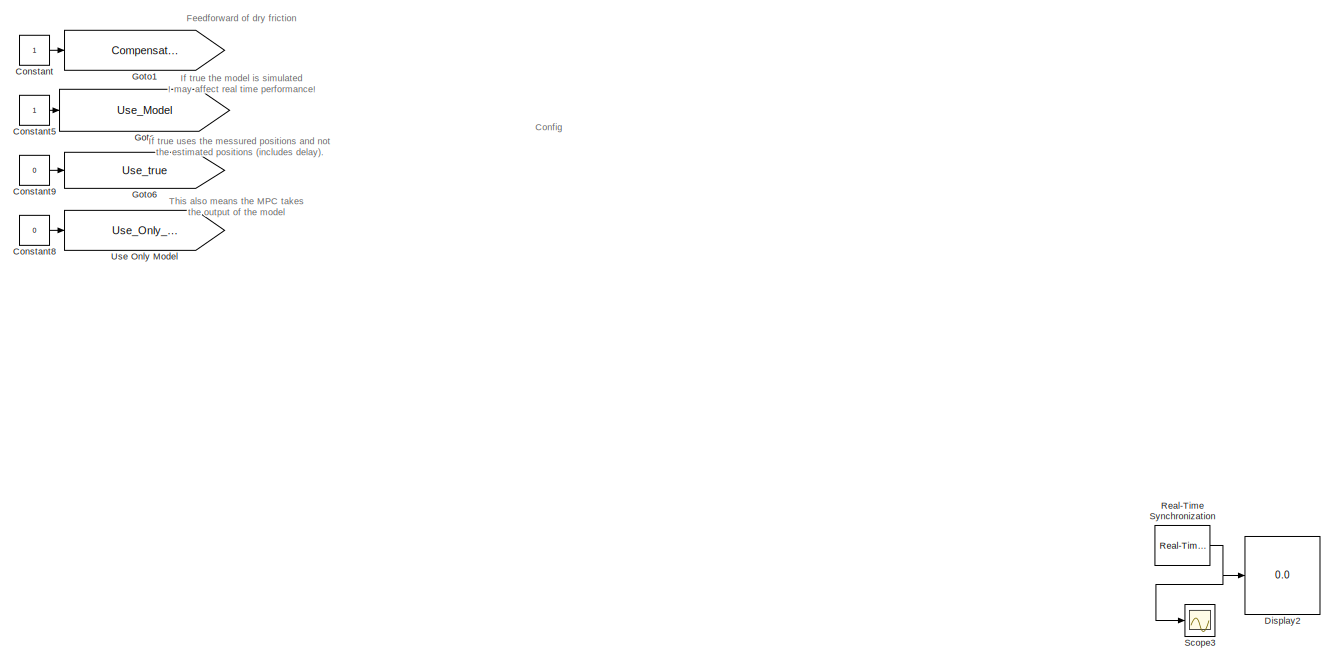
[diagram: root canvas - part 1/5, top center region]
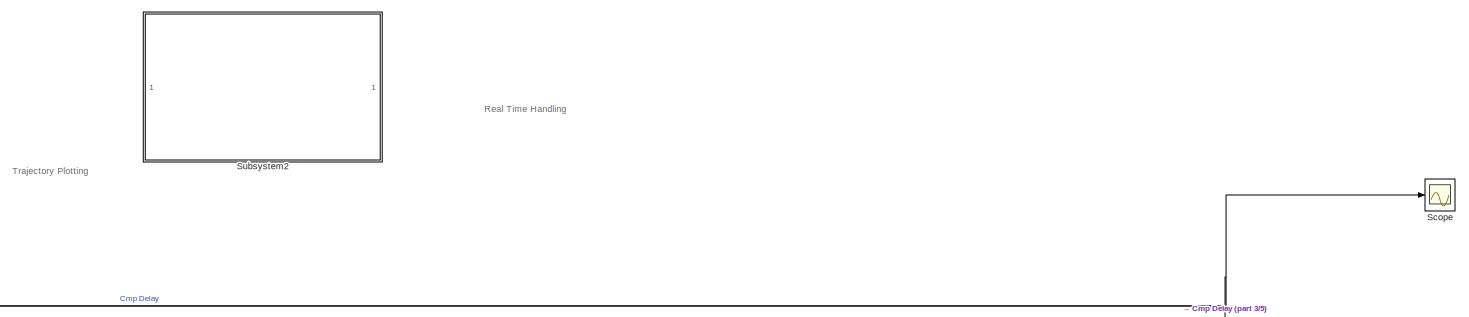
[diagram: root canvas - part 2/5, middle right region]
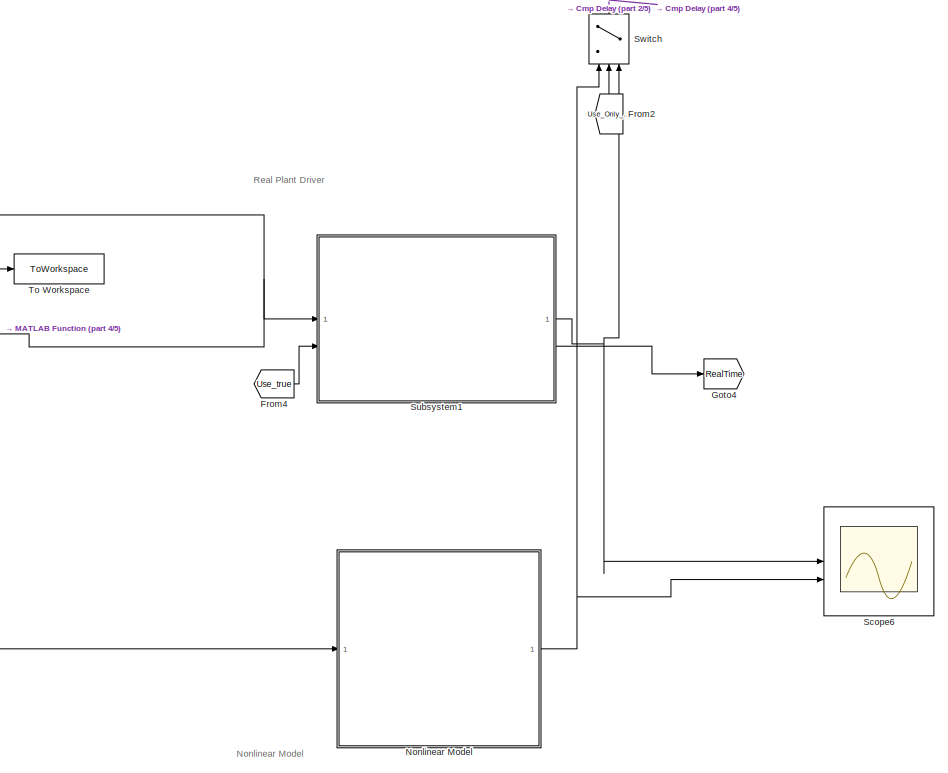
[diagram: root canvas - part 3/5, bottom right region]
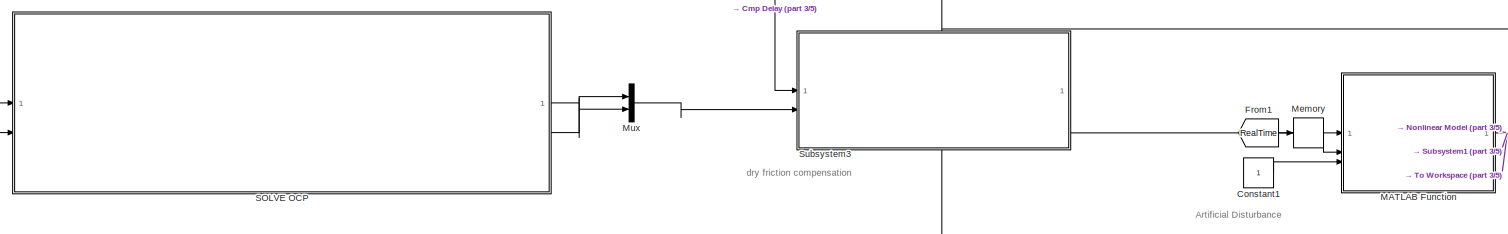
[diagram: root canvas - part 4/5, middle left region]
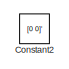
[diagram: root canvas - part 5/5, bottom center region]
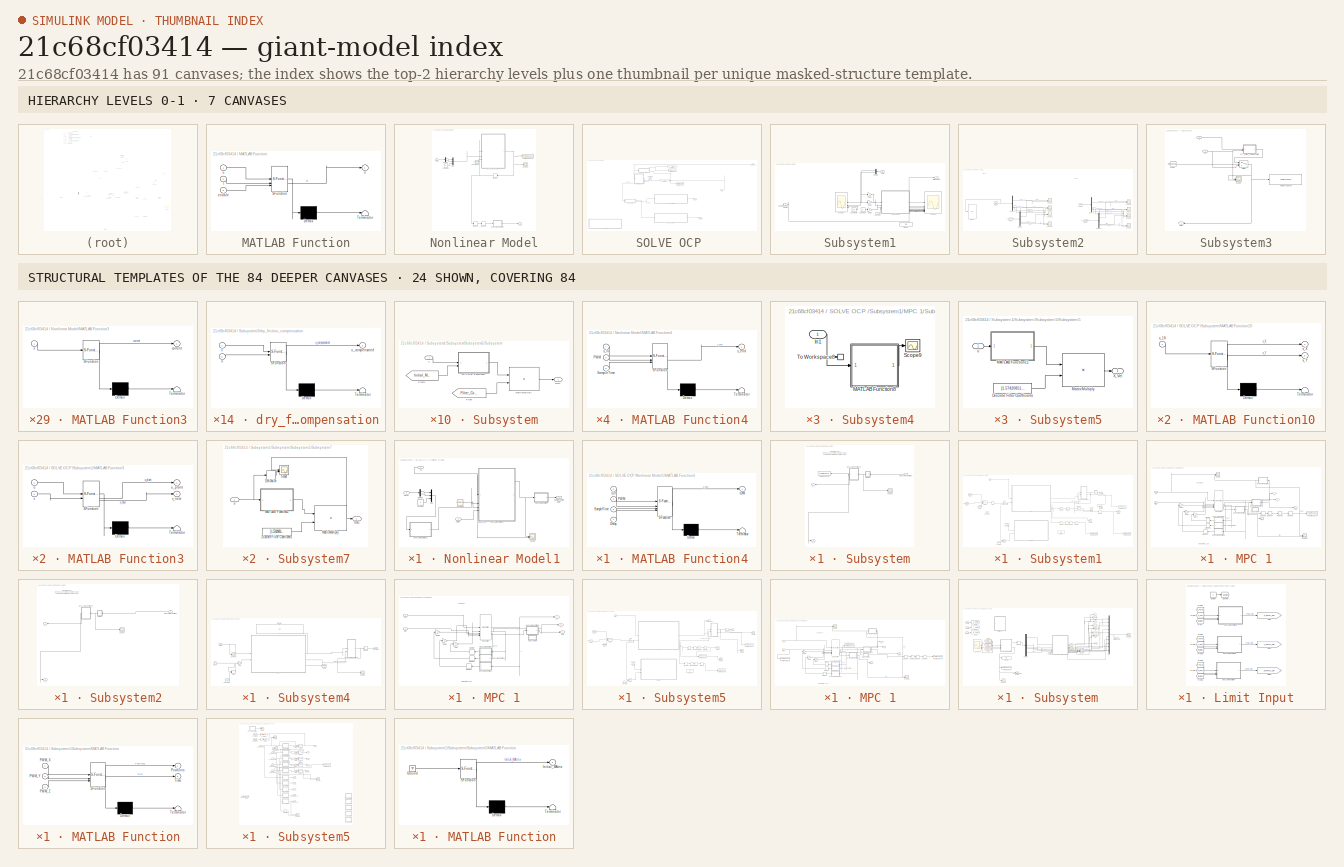
[diagram: thumbnail index - top-2 hierarchy levels (7 canvases) + 24 structural-template representatives of the remaining 84 canvases]
MODEL slx_21c68cf03414
KIND model
CONFIG AbsTol = auto
CONFIG EnableMultiTasking = on
CONFIG FixedStep = SampleTime
CONFIG MaxStep = 0.01
CONFIG MinStep = auto
CONFIG RelTol = 1e-3
CONFIG SampleTimeConstraint = Unconstrained
CONFIG SolverName = ode1
CONFIG StartTime = 0.0
CONFIG StopTime = 100
BLOCK [Constant] Constant
BLOCK [Constant] Constant1
BLOCK [Constant] Constant2
  Value = [0 0]'
BLOCK [Constant] Constant5
BLOCK [Constant] Constant8
  Value = 0
BLOCK [Constant] Constant9
  Value = 0
BLOCK [Display] Display2
  Decimation = 1
BLOCK [From] From1
  GotoTag = RealTime
  TagVisibility = global
BLOCK [From] From2
  GotoTag = Use_Only_Mode
  NameLocation = right
  TagVisibility = global
BLOCK [From] From4
  GotoTag = Use_true
BLOCK [Goto] Goto
  GotoTag = Use_Model
BLOCK [Goto] Goto1
  GotoTag = Compensate_dry_friction
  TagVisibility = global
BLOCK [Goto] Goto4
  GotoTag = RealTime
  TagVisibility = global
BLOCK [Goto] Goto6
  GotoTag = Use_true
BLOCK [SubSystem] MATLAB Function
  ErrorFcn = Stateflow.Translate.translate
  PermitHierarchicalResolution = ExplicitOnly
  SFBlockType = MATLAB Function
  TreatAsAtomicUnit = on
BLOCK [Demux] MATLAB Function/ Demux 
  Outputs = 1
BLOCK [S-Function] MATLAB Function/ SFunction 
  EnableBusSupport = on
  FunctionName = sf_sfun
  PortCounts = [3 2]
  SFcnIsStateOwnerBlock = off
  SFunctionDeploymentMode = off
  Tag = Stateflow S-Function 64
BLOCK [Terminator] MATLAB Function/ Terminator 
BLOCK [Inport] MATLAB Function/enable
  Port = 3
BLOCK [Inport] MATLAB Function/t
  Port = 2
BLOCK [Outport] MATLAB Function/u
BLOCK [Inport] MATLAB Function/u 
BLOCK [Memory] Memory
BLOCK [Mux] Mux
  DisplayOption = bar
  Inputs = 2
BLOCK [SubSystem] Nonlinear Model
  Commented = on
BLOCK [Constant] Nonlinear Model/Constant
  Value = 0
BLOCK [Constant] Nonlinear Model/Constant1
  Value = SampleTime
BLOCK [Demux] Nonlinear Model/Demux
  Outputs = 2
BLOCK [SubSystem] Nonlinear Model/MATLAB Function3
  ErrorFcn = Stateflow.Translate.translate
  PermitHierarchicalResolution = ExplicitOnly
  SFBlockType = MATLAB Function
  TreatAsAtomicUnit = on
BLOCK [Demux] Nonlinear Model/MATLAB Function3/ Demux 
  Outputs = 1
BLOCK [S-Function] Nonlinear Model/MATLAB Function3/ SFunction 
  EnableBusSupport = on
  FunctionName = sf_sfun
  PortCounts = [1 2]
  SFcnIsStateOwnerBlock = off
  SFunctionDeploymentMode = off
  Tag = Stateflow S-Function 28
BLOCK [Terminator] Nonlinear Model/MATLAB Function3/ Terminator 
BLOCK [Outport] Nonlinear Model/MATLAB Function3/current
BLOCK [Inport] Nonlinear Model/MATLAB Function3/x
BLOCK [SubSystem] Nonlinear Model/MATLAB Function4
  ErrorFcn = Stateflow.Translate.translate
  PermitHierarchicalResolution = ExplicitOnly
  SFBlockType = MATLAB Function
  TreatAsAtomicUnit = on
BLOCK [Demux] Nonlinear Model/MATLAB Function4/ Demux 
  Outputs = 1
BLOCK [S-Function] Nonlinear Model/MATLAB Function4/ SFunction 
  EnableBusSupport = on
  FunctionName = sf_sfun
  PortCounts = [3 2]
  SFcnIsStateOwnerBlock = off
  SFunctionDeploymentMode = off
  Tag = Stateflow S-Function 21
BLOCK [Terminator] Nonlinear Model/MATLAB Function4/ Terminator 
BLOCK [Inport] Nonlinear Model/MATLAB Function4/PWM
  Port = 2
BLOCK [Inport] Nonlinear Model/MATLAB Function4/SampleTime
  Port = 3
BLOCK [Outport] Nonlinear Model/MATLAB Function4/x_end
BLOCK [Inport] Nonlinear Model/MATLAB Function4/x_in
BLOCK [Memory] Nonlinear Model/Memory
  InheritSampleTime = on
  InitialCondition = [GetPosition;zeros(5,1)]'
  NameLocation = top
BLOCK [Memory] Nonlinear Model/Memory1
  InheritSampleTime = on
  InitialCondition = [GetPosition;zeros(5,1)]'
BLOCK [Memory] Nonlinear Model/Memory2
  InheritSampleTime = on
  InitialCondition = [GetPosition;zeros(5,1)]'
BLOCK [Mux] Nonlinear Model/Mux
  DisplayOption = bar
  Inputs = 3
BLOCK [Inport] Nonlinear Model/PWM
BLOCK [Scope] Nonlinear Model/Scope2
  Floating = off
  NumInputPorts = 1
  ScopeSpecificationString = Simulink.scopes.TimeScopeBlockCfg('CurrentConfiguration', extmgr.ConfigurationSet(extmgr.Configuration('Core','General UI',true),extmgr.Configuration('Core','Source UI',true),extmgr.Configuration('Sources','WiredSimulink',true,'DataLoggingVariableName','ScopeData2'),extmgr.Configuration('Visuals','Time Domain',true,'SerializedDisplays',{struct('MinYLimReal','-1.6011','MaxYLimReal','1.58476','YLabe...<+1874ch>
BLOCK [ToWorkspace] Nonlinear Model/To Workspace2
  FixptAsFi = on
  MaxDataPoints = inf
  SampleTime = -1
  SaveFormat = Timeseries
  VariableName = Rk4_results
BLOCK [Outport] Nonlinear Model/x0 z-1
BLOCK [Reference] Real-Time Synchronization  REF=sldrtlib/Real-Time
Synchronization
  SourceBlock = sldrtlib/Real-Time\nSynchronization
  SourceType = Simulink Desktop Real-Time Synchronization
BLOCK [SubSystem] SOLVE OCP 
BLOCK [Inport] SOLVE OCP /Cmp Delay
BLOCK [Constant] SOLVE OCP /Constant3
  NameLocation = top
  Value = Delay
BLOCK [Goto] SOLVE OCP /Goto2
  GotoTag = x_X_Measured
  TagVisibility = global
BLOCK [Goto] SOLVE OCP /Goto3
  GotoTag = x_Y_Measured
  NameLocation = top
  TagVisibility = global
BLOCK [SubSystem] SOLVE OCP /Nonlinear Model1
  PortSchema = {"entries":[{"content":{"sides":[{"content":{"connectorIds":["In1"]},"type":"ConnectorPlacement.EquallySpacedRectSide","uuid":"38cfd3d7-56a6-4f45-9bca-759458190eeb"},{"content":{"connectorIds":["In2","In3","Out1"],"side":"RIGHT"},"type":"ConnectorPlacement.EquallySpacedRectSide","uuid":"8f579a40-73f0-4433-ae4d-9a35b6fc4d2d"},{"content":{"side":"TOP"},"type":"ConnectorPlacement.EquallySpacedRectSid...<+234ch>
BLOCK [Outport] SOLVE OCP /Nonlinear Model1/Compensated Delay
BLOCK [Constant] SOLVE OCP /Nonlinear Model1/Constant
  Value = 0
BLOCK [Constant] SOLVE OCP /Nonlinear Model1/Constant1
  Value = SampleTime
BLOCK [Inport] SOLVE OCP /Nonlinear Model1/Delay
  Port = 3
BLOCK [Demux] SOLVE OCP /Nonlinear Model1/Demux
  Outputs = 2
BLOCK [SubSystem] SOLVE OCP /Nonlinear Model1/MATLAB Function
  ErrorFcn = Stateflow.Translate.translate
  PermitHierarchicalResolution = ExplicitOnly
  SFBlockType = MATLAB Function
  TreatAsAtomicUnit = on
BLOCK [Demux] SOLVE OCP /Nonlinear Model1/MATLAB Function/ Demux 
  Outputs = 1
BLOCK [S-Function] SOLVE OCP /Nonlinear Model1/MATLAB Function/ SFunction 
  EnableBusSupport = on
  FunctionName = sf_sfun
  PortCounts = [1 2]
  SFcnIsStateOwnerBlock = off
  SFunctionDeploymentMode = off
  Tag = Stateflow S-Function 29
BLOCK [Terminator] SOLVE OCP /Nonlinear Model1/MATLAB Function/ Terminator 
BLOCK [Inport] SOLVE OCP /Nonlinear Model1/MATLAB Function/x
BLOCK [Outport] SOLVE OCP /Nonlinear Model1/MATLAB Function/x_bound
BLOCK [SubSystem] SOLVE OCP /Nonlinear Model1/MATLAB Function11
  ErrorFcn = Stateflow.Translate.translate
  PermitHierarchicalResolution = ExplicitOnly
  SFBlockType = MATLAB Function
  TreatAsAtomicUnit = on
BLOCK [Demux] SOLVE OCP /Nonlinear Model1/MATLAB Function11/ Demux 
  Outputs = 1
BLOCK [S-Function] SOLVE OCP /Nonlinear Model1/MATLAB Function11/ SFunction 
  EnableBusSupport = on
  FunctionName = sf_sfun
  PortCounts = [1 2]
  SFcnIsStateOwnerBlock = off
  SFunctionDeploymentMode = off
  Tag = Stateflow S-Function 36
BLOCK [Terminator] SOLVE OCP /Nonlinear Model1/MATLAB Function11/ Terminator 
BLOCK [Inport] SOLVE OCP /Nonlinear Model1/MATLAB Function11/u
BLOCK [Outport] SOLVE OCP /Nonlinear Model1/MATLAB Function11/y
BLOCK [SubSystem] SOLVE OCP /Nonlinear Model1/MATLAB Function4
  ErrorFcn = Stateflow.Translate.translate
  PermitHierarchicalResolution = ExplicitOnly
  SFBlockType = MATLAB Function
  TreatAsAtomicUnit = on
BLOCK [Demux] SOLVE OCP /Nonlinear Model1/MATLAB Function4/ Demux 
  Outputs = 1
BLOCK [S-Function] SOLVE OCP /Nonlinear Model1/MATLAB Function4/ SFunction 
  EnableBusSupport = on
  FunctionName = sf_sfun
  PortCounts = [4 2]
  SFcnIsStateOwnerBlock = off
  SFunctionDeploymentMode = off
  Tag = Stateflow S-Function 35
BLOCK [Terminator] SOLVE OCP /Nonlinear Model1/MATLAB Function4/ Terminator 
BLOCK [Inport] SOLVE OCP /Nonlinear Model1/MATLAB Function4/Delay
  Port = 4
BLOCK [Inport] SOLVE OCP /Nonlinear Model1/MATLAB Function4/PWM
  Port = 2
BLOCK [Inport] SOLVE OCP /Nonlinear Model1/MATLAB Function4/SampleTime
  Port = 3
BLOCK [Outport] SOLVE OCP /Nonlinear Model1/MATLAB Function4/x_end
BLOCK [Inport] SOLVE OCP /Nonlinear Model1/MATLAB Function4/x_in
BLOCK [Mux] SOLVE OCP /Nonlinear Model1/Mux
  DisplayOption = bar
  Inputs = 3
BLOCK [Inport] SOLVE OCP /Nonlinear Model1/PWM
  Port = 2
BLOCK [Scope] SOLVE OCP /Nonlinear Model1/Scope
  Floating = off
  NumInputPorts = 2
  ScopeSpecificationString = Simulink.scopes.TimeScopeBlockCfg('CurrentConfiguration', extmgr.ConfigurationSet(extmgr.Configuration('Core','General UI',true),extmgr.Configuration('Core','Source UI',true),extmgr.Configuration('Sources','WiredSimulink',true,'DataLoggingVariableName','ScopeData1'),extmgr.Configuration('Visuals','Time Domain',true,'SerializedDisplays',{struct('MinYLimReal','-1','MaxYLimReal','1','YLabelReal','','...<+1873ch>
BLOCK [Inport] SOLVE OCP /Nonlinear Model1/x0
  NameLocation = top
BLOCK [Inport] SOLVE OCP /PWM
  Port = 2
BLOCK [SubSystem] SOLVE OCP /Subsystem
BLOCK [SubSystem] SOLVE OCP /Subsystem/Delete L
  ErrorFcn = Stateflow.Translate.translate
  NameLocation = top
  PermitHierarchicalResolution = ExplicitOnly
  SFBlockType = MATLAB Function
  TreatAsAtomicUnit = on
BLOCK [Demux] SOLVE OCP /Subsystem/Delete L/ Demux 
  Outputs = 1
BLOCK [S-Function] SOLVE OCP /Subsystem/Delete L/ SFunction 
  EnableBusSupport = on
  FunctionName = sf_sfun
  PortCounts = [1 2]
  SFcnIsStateOwnerBlock = off
  SFunctionDeploymentMode = off
  Tag = Stateflow S-Function 15
BLOCK [Terminator] SOLVE OCP /Subsystem/Delete L/ Terminator 
BLOCK [Inport] SOLVE OCP /Subsystem/Delete L/x10
BLOCK [Outport] SOLVE OCP /Subsystem/Delete L/x_8
BLOCK [SubSystem] SOLVE OCP /Subsystem/MATLAB Function10
  ErrorFcn = Stateflow.Translate.translate
  NameLocation = top
  PermitHierarchicalResolution = ExplicitOnly
  SFBlockType = MATLAB Function
  TreatAsAtomicUnit = on
BLOCK [Demux] SOLVE OCP /Subsystem/MATLAB Function10/ Demux 
  Outputs = 1
BLOCK [S-Function] SOLVE OCP /Subsystem/MATLAB Function10/ SFunction 
  EnableBusSupport = on
  FunctionName = sf_sfun
  PortCounts = [1 3]
  SFcnIsStateOwnerBlock = off
  SFunctionDeploymentMode = off
  Tag = Stateflow S-Function 33
BLOCK [Terminator] SOLVE OCP /Subsystem/MATLAB Function10/ Terminator 
BLOCK [Inport] SOLVE OCP /Subsystem/MATLAB Function10/x_18
BLOCK [Outport] SOLVE OCP /Subsystem/MATLAB Function10/x_X
BLOCK [Outport] SOLVE OCP /Subsystem/MATLAB Function10/x_Y
  Port = 2
BLOCK [Inport] SOLVE OCP /Subsystem/Messured Positions
BLOCK [Scope] SOLVE OCP /Subsystem/Scope
  Commented = on
  Floating = off
  NumInputPorts = 1
  ScopeSpecificationString = Simulink.scopes.TimeScopeBlockCfg('CurrentConfiguration', extmgr.ConfigurationSet(extmgr.Configuration('Core','General UI',true),extmgr.Configuration('Core','Source UI',true),extmgr.Configuration('Sources','WiredSimulink',true,'DataLoggingVariableName','ScopeData7'),extmgr.Configuration('Visuals','Time Domain',true,'SerializedDisplays',{struct('MinYLimReal','58.13832','MaxYLimReal','62.80155','YLa...<+1516ch>
BLOCK [ToWorkspace] SOLVE OCP /Subsystem/To Workspace5
  FixptAsFi = on
  MaxDataPoints = inf
  NameLocation = top
  SampleTime = -1
  SaveFormat = Structure With Time
  VariableName = x0_out
BLOCK [Outport] SOLVE OCP /Subsystem/x_X
BLOCK [Outport] SOLVE OCP /Subsystem/x_Y
  Port = 2
BLOCK [SubSystem] SOLVE OCP /Subsystem1
BLOCK [Clock] SOLVE OCP /Subsystem1/Clock
BLOCK [Constant] SOLVE OCP /Subsystem1/Constant
  Commented = on
  Value = poly_approx_trajectory
BLOCK [Constant] SOLVE OCP /Subsystem1/Constant1
  Commented = on
  Value = length_trajectory_s
BLOCK [Constant] SOLVE OCP /Subsystem1/Constant2
  Value = pi/2
BLOCK [Display] SOLVE OCP /Subsystem1/Display
  Commented = on
  Decimation = 1
BLOCK [From] SOLVE OCP /Subsystem1/From
  GotoTag = Use_Only_Mode
  TagVisibility = global
BLOCK [From] SOLVE OCP /Subsystem1/From1
  GotoTag = RealTime
  TagVisibility = global
BLOCK [Gain] SOLVE OCP /Subsystem1/Gain
BLOCK [Goto] SOLVE OCP /Subsystem1/Goto
  GotoTag = TrajY
  TagVisibility = global
BLOCK [SubSystem] SOLVE OCP /Subsystem1/MATLAB Function3
  ErrorFcn = Stateflow.Translate.translate
  PermitHierarchicalResolution = ExplicitOnly
  SFBlockType = MATLAB Function
  TreatAsAtomicUnit = on
BLOCK [Demux] SOLVE OCP /Subsystem1/MATLAB Function3/ Demux 
  Outputs = 1
BLOCK [S-Function] SOLVE OCP /Subsystem1/MATLAB Function3/ SFunction 
  EnableBusSupport = on
  FunctionName = sf_sfun
  PortCounts = [2 3]
  SFcnIsStateOwnerBlock = off
  SFunctionDeploymentMode = off
  Tag = Stateflow S-Function 55
BLOCK [Terminator] SOLVE OCP /Subsystem1/MATLAB Function3/ Terminator 
BLOCK [Inport] SOLVE OCP /Subsystem1/MATLAB Function3/u
BLOCK [Outport] SOLVE OCP /Subsystem1/MATLAB Function3/u_plant
BLOCK [Inport] SOLVE OCP /Subsystem1/MATLAB Function3/x
  Port = 2
BLOCK [Outport] SOLVE OCP /Subsystem1/MATLAB Function3/x_new
  Port = 2
BLOCK [SubSystem] SOLVE OCP /Subsystem1/MPC 1
BLOCK [Gain] SOLVE OCP /Subsystem1/MPC 1/Gain3
BLOCK [Gain] SOLVE OCP /Subsystem1/MPC 1/Gain4
BLOCK [Gain] SOLVE OCP /Subsystem1/MPC 1/Gain5
BLOCK [SubSystem] SOLVE OCP /Subsystem1/MPC 1/MATLAB Function
  ErrorFcn = Stateflow.Translate.translate
  NameLocation = top
  PermitHierarchicalResolution = ExplicitOnly
  SFBlockType = MATLAB Function
  TreatAsAtomicUnit = on
BLOCK [Demux] SOLVE OCP /Subsystem1/MPC 1/MATLAB Function/ Demux 
  Outputs = 1
BLOCK [S-Function] SOLVE OCP /Subsystem1/MPC 1/MATLAB Function/ SFunction 
  EnableBusSupport = on
  FunctionName = sf_sfun
  PortCounts = [1 2]
  SFcnIsStateOwnerBlock = off
  SFunctionDeploymentMode = off
  Tag = Stateflow S-Function 56
BLOCK [Terminator] SOLVE OCP /Subsystem1/MPC 1/MATLAB Function/ Terminator 
BLOCK [Inport] SOLVE OCP /Subsystem1/MPC 1/MATLAB Function/x
BLOCK [Outport] SOLVE OCP /Subsystem1/MPC 1/MATLAB Function/x_warm
BLOCK [SubSystem] SOLVE OCP /Subsystem1/MPC 1/MATLAB Function1
  ErrorFcn = Stateflow.Translate.translate
  NameLocation = top
  PermitHierarchicalResolution = ExplicitOnly
  SFBlockType = MATLAB Function
  TreatAsAtomicUnit = on
BLOCK [Demux] SOLVE OCP /Subsystem1/MPC 1/MATLAB Function1/ Demux 
  Outputs = 1
BLOCK [S-Function] SOLVE OCP /Subsystem1/MPC 1/MATLAB Function1/ SFunction 
  EnableBusSupport = on
  FunctionName = sf_sfun
  PortCounts = [1 2]
  SFcnIsStateOwnerBlock = off
  SFunctionDeploymentMode = off
  Tag = Stateflow S-Function 57
BLOCK [Terminator] SOLVE OCP /Subsystem1/MPC 1/MATLAB Function1/ Terminator 
BLOCK [Inport] SOLVE OCP /Subsystem1/MPC 1/MATLAB Function1/lam_g
BLOCK [Outport] SOLVE OCP /Subsystem1/MPC 1/MATLAB Function1/lam_g_warm
BLOCK [SubSystem] SOLVE OCP /Subsystem1/MPC 1/MATLAB Function2
  ErrorFcn = Stateflow.Translate.translate
  NameLocation = top
  PermitHierarchicalResolution = ExplicitOnly
  SFBlockType = MATLAB Function
  TreatAsAtomicUnit = on
BLOCK [Demux] SOLVE OCP /Subsystem1/MPC 1/MATLAB Function2/ Demux 
  Outputs = 1
BLOCK [S-Function] SOLVE OCP /Subsystem1/MPC 1/MATLAB Function2/ SFunction 
  EnableBusSupport = on
  FunctionName = sf_sfun
  PortCounts = [1 2]
  SFcnIsStateOwnerBlock = off
  SFunctionDeploymentMode = off
  Tag = Stateflow S-Function 58
BLOCK [Terminator] SOLVE OCP /Subsystem1/MPC 1/MATLAB Function2/ Terminator 
BLOCK [Inport] SOLVE OCP /Subsystem1/MPC 1/MATLAB Function2/u
BLOCK [Outport] SOLVE OCP /Subsystem1/MPC 1/MATLAB Function2/u_warm
BLOCK [SubSystem] SOLVE OCP /Subsystem1/MPC 1/MATLAB Function3
  ErrorFcn = Stateflow.Translate.translate
  PermitHierarchicalResolution = ExplicitOnly
  SFBlockType = MATLAB Function
  TreatAsAtomicUnit = on
BLOCK [Demux] SOLVE OCP /Subsystem1/MPC 1/MATLAB Function3/ Demux 
  Outputs = 1
BLOCK [S-Function] SOLVE OCP /Subsystem1/MPC 1/MATLAB Function3/ SFunction 
  EnableBusSupport = on
  FunctionName = sf_sfun
  PortCounts = [1 2]
  SFcnIsStateOwnerBlock = off
  SFunctionDeploymentMode = off
  Tag = Stateflow S-Function 59
BLOCK [Terminator] SOLVE OCP /Subsystem1/MPC 1/MATLAB Function3/ Terminator 
BLOCK [Outport] SOLVE OCP /Subsystem1/MPC 1/MATLAB Function3/current
BLOCK [Inport] SOLVE OCP /Subsystem1/MPC 1/MATLAB Function3/x
BLOCK [SubSystem] SOLVE OCP /Subsystem1/MPC 1/MATLAB Function4
  ErrorFcn = Stateflow.Translate.translate
  NameLocation = top
  PermitHierarchicalResolution = ExplicitOnly
  SFBlockType = MATLAB Function
  TreatAsAtomicUnit = on
BLOCK [Demux] SOLVE OCP /Subsystem1/MPC 1/MATLAB Function4/ Demux 
  Outputs = 1
BLOCK [S-Function] SOLVE OCP /Subsystem1/MPC 1/MATLAB Function4/ SFunction 
  EnableBusSupport = on
  FunctionName = sf_sfun
  PortCounts = [1 2]
  SFcnIsStateOwnerBlock = off
  SFunctionDeploymentMode = off
  Tag = Stateflow S-Function 60
BLOCK [Terminator] SOLVE OCP /Subsystem1/MPC 1/MATLAB Function4/ Terminator 
BLOCK [Inport] SOLVE OCP /Subsystem1/MPC 1/MATLAB Function4/u
BLOCK [Outport] SOLVE OCP /Subsystem1/MPC 1/MATLAB Function4/y
BLOCK [SubSystem] SOLVE OCP /Subsystem1/MPC 1/MATLAB Function5
  ErrorFcn = Stateflow.Translate.translate
  PermitHierarchicalResolution = ExplicitOnly
  SFBlockType = MATLAB Function
  TreatAsAtomicUnit = on
BLOCK [Demux] SOLVE OCP /Subsystem1/MPC 1/MATLAB Function5/ Demux 
  Outputs = 1
BLOCK [S-Function] SOLVE OCP /Subsystem1/MPC 1/MATLAB Function5/ SFunction 
  EnableBusSupport = on
  FunctionName = sf_sfun
  PortCounts = [1 2]
  SFcnIsStateOwnerBlock = off
  SFunctionDeploymentMode = off
  Tag = Stateflow S-Function 61
BLOCK [Terminator] SOLVE OCP /Subsystem1/MPC 1/MATLAB Function5/ Terminator 
BLOCK [Outport] SOLVE OCP /Subsystem1/MPC 1/MATLAB Function5/current
BLOCK [Inport] SOLVE OCP /Subsystem1/MPC 1/MATLAB Function5/x
BLOCK [Memory] SOLVE OCP /Subsystem1/MPC 1/Memory
  NameLocation = top
BLOCK [Memory] SOLVE OCP /Subsystem1/MPC 1/Memory1
  NameLocation = top
BLOCK [Memory] SOLVE OCP /Subsystem1/MPC 1/Memory2
  NameLocation = top
BLOCK [Memory] SOLVE OCP /Subsystem1/MPC 1/Memory3
  NameLocation = top
BLOCK [Memory] SOLVE OCP /Subsystem1/MPC 1/Memory4
  NameLocation = top
BLOCK [Memory] SOLVE OCP /Subsystem1/MPC 1/Memory5
  NameLocation = top
BLOCK [Memory] SOLVE OCP /Subsystem1/MPC 1/Memory6
  NameLocation = top
BLOCK [Outport] SOLVE OCP /Subsystem1/MPC 1/Out3
  Port = 3
BLOCK [S-Function] SOLVE OCP /Subsystem1/MPC 1/S-Function
  EnableBusSupport = off
  FunctionName = g_casadi_fun
  Parameters = 'g.casadi', 'g'
  SFcnIsStateOwnerBlock = off
  SFunctionDeploymentMode = off
BLOCK [Scope] SOLVE OCP /Subsystem1/MPC 1/Scope
  Floating = off
  NumInputPorts = 2
  ScopeSpecificationString = Simulink.scopes.TimeScopeBlockCfg('CurrentConfiguration', extmgr.ConfigurationSet(extmgr.Configuration('Core','General UI',true),extmgr.Configuration('Core','Source UI',true),extmgr.Configuration('Sources','WiredSimulink',true),extmgr.Configuration('Visuals','Time Domain',true,'SerializedDisplays',{struct('MinYLimReal','-1.67554','MaxYLimReal','1.13062','YLabelReal','','MinYLimMag','0.00000','MaxY...<+1513ch>
BLOCK [Scope] SOLVE OCP /Subsystem1/MPC 1/Scope1
  Floating = off
  NumInputPorts = 2
  ScopeSpecificationString = Simulink.scopes.TimeScopeBlockCfg('CurrentConfiguration', extmgr.ConfigurationSet(extmgr.Configuration('Core','General UI',true),extmgr.Configuration('Core','Source UI',true),extmgr.Configuration('Sources','WiredSimulink',true),extmgr.Configuration('Visuals','Time Domain',true,'SerializedDisplays',{struct('MinYLimReal','-1.0625','MaxYLimReal','1.0625','YLabelReal','','MinYLimMag','0.00000','MaxYLi...<+1370ch>
BLOCK [SubSystem] SOLVE OCP /Subsystem1/MPC 1/Subsystem4
  Commented = on
BLOCK [Inport] SOLVE OCP /Subsystem1/MPC 1/Subsystem4/In1
BLOCK [SubSystem] SOLVE OCP /Subsystem1/MPC 1/Subsystem4/MATLAB Function8
  ErrorFcn = Stateflow.Translate.translate
  PermitHierarchicalResolution = ExplicitOnly
  SFBlockType = MATLAB Function
  TreatAsAtomicUnit = on
BLOCK [Demux] SOLVE OCP /Subsystem1/MPC 1/Subsystem4/MATLAB Function8/ Demux 
  Outputs = 1
BLOCK [S-Function] SOLVE OCP /Subsystem1/MPC 1/Subsystem4/MATLAB Function8/ SFunction 
  EnableBusSupport = on
  FunctionName = sf_sfun
  PortCounts = [1 2]
  SFcnIsStateOwnerBlock = off
  SFunctionDeploymentMode = off
  Tag = Stateflow S-Function 62
BLOCK [Terminator] SOLVE OCP /Subsystem1/MPC 1/Subsystem4/MATLAB Function8/ Terminator 
BLOCK [Outport] SOLVE OCP /Subsystem1/MPC 1/Subsystem4/MATLAB Function8/first_elemt_traj
BLOCK [Inport] SOLVE OCP /Subsystem1/MPC 1/Subsystem4/MATLAB Function8/traj
BLOCK [Scope] SOLVE OCP /Subsystem1/MPC 1/Subsystem4/Scope9
  Floating = off
  NumInputPorts = 1
  ScopeSpecificationString = Simulink.scopes.TimeScopeBlockCfg('CurrentConfiguration', extmgr.ConfigurationSet(extmgr.Configuration('Core','General UI',true),extmgr.Configuration('Core','Source UI',true),extmgr.Configuration('Sources','WiredSimulink',true,'DataLoggingVariableName','ScopeData2'),extmgr.Configuration('Visuals','Time Domain',true,'SerializedDisplays',{struct('MinYLimReal','-0.0625','MaxYLimReal','0.5625','YLabel...<+1420ch>  <repeated x3 — deduplicated; at blocks: Scope9>
BLOCK [ToWorkspace] SOLVE OCP /Subsystem1/MPC 1/Subsystem4/To Workspace8
  FixptAsFi = on
  MaxDataPoints = inf
  SampleTime = -1
  SaveFormat = Structure With Time
  VariableName = PAyload_mpc
BLOCK [ToWorkspace] SOLVE OCP /Subsystem1/MPC 1/To Workspace
  FixptAsFi = on
  MaxDataPoints = inf
  SampleTime = -1
  SaveFormat = Timeseries
  VariableName = Trajectory_Mpc_Y
BLOCK [Outport] SOLVE OCP /Subsystem1/MPC 1/Traj_u
  Port = 4
BLOCK [Inport] SOLVE OCP /Subsystem1/MPC 1/time
  Port = 2
BLOCK [Outport] SOLVE OCP /Subsystem1/MPC 1/u
BLOCK [Outport] SOLVE OCP /Subsystem1/MPC 1/x
  Port = 2
BLOCK [Inport] SOLVE OCP /Subsystem1/MPC 1/x0
BLOCK [Memory] SOLVE OCP /Subsystem1/Memory
BLOCK [Memory] SOLVE OCP /Subsystem1/Memory1
  NameLocation = top
BLOCK [Memory] SOLVE OCP /Subsystem1/Memory2
  NameLocation = top
BLOCK [Memory] SOLVE OCP /Subsystem1/Memory3
  NameLocation = top
BLOCK [Memory] SOLVE OCP /Subsystem1/Memory4
  NameLocation = top
BLOCK [Memory] SOLVE OCP /Subsystem1/Memory5
  NameLocation = top
BLOCK [Memory] SOLVE OCP /Subsystem1/Memory6
  NameLocation = top
BLOCK [Memory] SOLVE OCP /Subsystem1/Memory7
  NameLocation = top
BLOCK [Memory] SOLVE OCP /Subsystem1/Memory8
  NameLocation = top
BLOCK [Math] SOLVE OCP /Subsystem1/Mod
  Commented = on
  Operator = mod
BLOCK [Sum] SOLVE OCP /Subsystem1/Plus
  IconShape = rectangular
BLOCK [Scope] SOLVE OCP /Subsystem1/Scope
  Commented = on
  Floating = off
  NumInputPorts = 1
  ScopeSpecificationString = Simulink.scopes.TimeScopeBlockCfg('CurrentConfiguration', extmgr.ConfigurationSet(extmgr.Configuration('Core','General UI',true),extmgr.Configuration('Core','Source UI',true),extmgr.Configuration('Sources','WiredSimulink',true,'DataLoggingVariableName','ScopeData1'),extmgr.Configuration('Visuals','Time Domain',true,'SerializedDisplays',{struct('MinYLimReal','-1.0625','MaxYLimReal','1.0625','YLabel...<+1423ch>
BLOCK [Scope] SOLVE OCP /Subsystem1/Scope1
  Floating = off
  NumInputPorts = 1
  ScopeSpecificationString = Simulink.scopes.TimeScopeBlockCfg('CurrentConfiguration', extmgr.ConfigurationSet(extmgr.Configuration('Core','General UI',true),extmgr.Configuration('Core','Source UI',true),extmgr.Configuration('Sources','WiredSimulink',true,'DataLoggingVariableName','ScopeData2'),extmgr.Configuration('Visuals','Time Domain',true,'SerializedDisplays',{struct('MinYLimReal','-1.97279','MaxYLimReal','1.81326','YLab...<+1576ch>
BLOCK [Scope] SOLVE OCP /Subsystem1/Scope2
  Floating = off
  NumInputPorts = 1
  ScopeSpecificationString = Simulink.scopes.TimeScopeBlockCfg('CurrentConfiguration', extmgr.ConfigurationSet(extmgr.Configuration('Core','General UI',true),extmgr.Configuration('Core','Source UI',true),extmgr.Configuration('Sources','WiredSimulink',true,'DataLoggingVariableName','ScopeData1'),extmgr.Configuration('Visuals','Time Domain',true,'SerializedDisplays',{struct('MinYLimReal','-0.31399','MaxYLimReal','0.53488','YLab...<+1542ch>
BLOCK [Inport] SOLVE OCP /Subsystem1/State
BLOCK [Switch] SOLVE OCP /Subsystem1/Switch
  Criteria = u2 > Threshold
  InputSameDT = off
  SaturateOnIntegerOverflow = off
BLOCK [ToWorkspace] SOLVE OCP /Subsystem1/To Workspace1
  FixptAsFi = on
  MaxDataPoints = inf
  SampleTime = -1
  SaveFormat = Timeseries
  VariableName = Trajectory_y
BLOCK [ToWorkspace] SOLVE OCP /Subsystem1/To Workspace2
  FixptAsFi = on
  MaxDataPoints = inf
  SampleTime = -1
  SaveFormat = Timeseries
  VariableName = u2
BLOCK [ToWorkspace] SOLVE OCP /Subsystem1/To Workspace3
  FixptAsFi = on
  MaxDataPoints = inf
  SampleTime = -1
  SaveFormat = Timeseries
  VariableName = u2_ref
BLOCK [SubSystem] SOLVE OCP /Subsystem1/Trajectroy
  Commented = on
  ErrorFcn = Stateflow.Translate.translate
  PermitHierarchicalResolution = ExplicitOnly
  SFBlockType = MATLAB Function
  TreatAsAtomicUnit = on
BLOCK [Demux] SOLVE OCP /Subsystem1/Trajectroy/ Demux 
  Outputs = 1
BLOCK [S-Function] SOLVE OCP /Subsystem1/Trajectroy/ SFunction 
  EnableBusSupport = on
  FunctionName = sf_sfun
  PortCounts = [2 2]
  SFcnIsStateOwnerBlock = off
  SFunctionDeploymentMode = off
  Tag = Stateflow S-Function 63
BLOCK [Terminator] SOLVE OCP /Subsystem1/Trajectroy/ Terminator 
BLOCK [Inport] SOLVE OCP /Subsystem1/Trajectroy/coeffs
BLOCK [Outport] SOLVE OCP /Subsystem1/Trajectroy/evaluated_polynomials_X
BLOCK [Inport] SOLVE OCP /Subsystem1/Trajectroy/t
  Port = 2
BLOCK [Outport] SOLVE OCP /Subsystem1/u_plant
BLOCK [SubSystem] SOLVE OCP /Subsystem2
BLOCK [SubSystem] SOLVE OCP /Subsystem2/Delete L
  ErrorFcn = Stateflow.Translate.translate
  NameLocation = top
  PermitHierarchicalResolution = ExplicitOnly
  SFBlockType = MATLAB Function
  TreatAsAtomicUnit = on
BLOCK [Demux] SOLVE OCP /Subsystem2/Delete L/ Demux 
  Outputs = 1
BLOCK [S-Function] SOLVE OCP /Subsystem2/Delete L/ SFunction 
  EnableBusSupport = on
  FunctionName = sf_sfun
  PortCounts = [1 2]
  SFcnIsStateOwnerBlock = off
  SFunctionDeploymentMode = off
  Tag = Stateflow S-Function 65
BLOCK [Terminator] SOLVE OCP /Subsystem2/Delete L/ Terminator 
BLOCK [Inport] SOLVE OCP /Subsystem2/Delete L/x10
BLOCK [Outport] SOLVE OCP /Subsystem2/Delete L/x_8
BLOCK [SubSystem] SOLVE OCP /Subsystem2/MATLAB Function10
  ErrorFcn = Stateflow.Translate.translate
  NameLocation = top
  PermitHierarchicalResolution = ExplicitOnly
  SFBlockType = MATLAB Function
  TreatAsAtomicUnit = on
BLOCK [Demux] SOLVE OCP /Subsystem2/MATLAB Function10/ Demux 
  Outputs = 1
BLOCK [S-Function] SOLVE OCP /Subsystem2/MATLAB Function10/ SFunction 
  EnableBusSupport = on
  FunctionName = sf_sfun
  PortCounts = [1 3]
  SFcnIsStateOwnerBlock = off
  SFunctionDeploymentMode = off
  Tag = Stateflow S-Function 66
BLOCK [Terminator] SOLVE OCP /Subsystem2/MATLAB Function10/ Terminator 
BLOCK [Inport] SOLVE OCP /Subsystem2/MATLAB Function10/x_18
BLOCK [Outport] SOLVE OCP /Subsystem2/MATLAB Function10/x_X
BLOCK [Outport] SOLVE OCP /Subsystem2/MATLAB Function10/x_Y
  Port = 2
BLOCK [Inport] SOLVE OCP /Subsystem2/Messured Positions
BLOCK [Scope] SOLVE OCP /Subsystem2/Scope
  Commented = on
  Floating = off
  NumInputPorts = 1
  ScopeSpecificationString = Simulink.scopes.TimeScopeBlockCfg('CurrentConfiguration', extmgr.ConfigurationSet(extmgr.Configuration('Core','General UI',true),extmgr.Configuration('Core','Source UI',true),extmgr.Configuration('Sources','WiredSimulink',true,'DataLoggingVariableName','ScopeData7'),extmgr.Configuration('Visuals','Time Domain',true,'SerializedDisplays',{struct('MinYLimReal','58.13832','MaxYLimReal','62.80155','YLa...<+1516ch>
BLOCK [Outport] SOLVE OCP /Subsystem2/x_X
BLOCK [Outport] SOLVE OCP /Subsystem2/x_Y
  Port = 2
BLOCK [SubSystem] SOLVE OCP /Subsystem4
  Commented = on
BLOCK [Clock] SOLVE OCP /Subsystem4/Clock
BLOCK [Constant] SOLVE OCP /Subsystem4/Constant
  Value = 3*pi/2
BLOCK [Display] SOLVE OCP /Subsystem4/Display
  Decimation = 1
  NameLocation = left
BLOCK [Gain] SOLVE OCP /Subsystem4/Gain
BLOCK [Goto] SOLVE OCP /Subsystem4/Goto
  GotoTag = TrajY
  TagVisibility = global
BLOCK [SubSystem] SOLVE OCP /Subsystem4/MATLAB Function3
  ErrorFcn = Stateflow.Translate.translate
  PermitHierarchicalResolution = ExplicitOnly
  SFBlockType = MATLAB Function
  TreatAsAtomicUnit = on
BLOCK [Demux] SOLVE OCP /Subsystem4/MATLAB Function3/ Demux 
  Outputs = 1
BLOCK [S-Function] SOLVE OCP /Subsystem4/MATLAB Function3/ SFunction 
  EnableBusSupport = on
  FunctionName = sf_sfun
  PortCounts = [2 2]
  SFcnIsStateOwnerBlock = off
  SFunctionDeploymentMode = off
  Tag = Stateflow S-Function 30
BLOCK [Terminator] SOLVE OCP /Subsystem4/MATLAB Function3/ Terminator 
BLOCK [Inport] SOLVE OCP /Subsystem4/MATLAB Function3/u
BLOCK [Outport] SOLVE OCP /Subsystem4/MATLAB Function3/u_plant
BLOCK [Inport] SOLVE OCP /Subsystem4/MATLAB Function3/x
  Port = 2
BLOCK [SubSystem] SOLVE OCP /Subsystem4/MPC 1
BLOCK [Gain] SOLVE OCP /Subsystem4/MPC 1/Gain3
BLOCK [Gain] SOLVE OCP /Subsystem4/MPC 1/Gain4
BLOCK [Gain] SOLVE OCP /Subsystem4/MPC 1/Gain5
BLOCK [SubSystem] SOLVE OCP /Subsystem4/MPC 1/MATLAB Function
  ErrorFcn = Stateflow.Translate.translate
  NameLocation = top
  PermitHierarchicalResolution = ExplicitOnly
  SFBlockType = MATLAB Function
  TreatAsAtomicUnit = on
BLOCK [Demux] SOLVE OCP /Subsystem4/MPC 1/MATLAB Function/ Demux 
  Outputs = 1
BLOCK [S-Function] SOLVE OCP /Subsystem4/MPC 1/MATLAB Function/ SFunction 
  EnableBusSupport = on
  FunctionName = sf_sfun
  PortCounts = [1 2]
  SFcnIsStateOwnerBlock = off
  SFunctionDeploymentMode = off
  Tag = Stateflow S-Function 32
BLOCK [Terminator] SOLVE OCP /Subsystem4/MPC 1/MATLAB Function/ Terminator 
BLOCK [Inport] SOLVE OCP /Subsystem4/MPC 1/MATLAB Function/x
BLOCK [Outport] SOLVE OCP /Subsystem4/MPC 1/MATLAB Function/x_warm
BLOCK [SubSystem] SOLVE OCP /Subsystem4/MPC 1/MATLAB Function1
  ErrorFcn = Stateflow.Translate.translate
  NameLocation = top
  PermitHierarchicalResolution = ExplicitOnly
  SFBlockType = MATLAB Function
  TreatAsAtomicUnit = on
BLOCK [Demux] SOLVE OCP /Subsystem4/MPC 1/MATLAB Function1/ Demux 
  Outputs = 1
BLOCK [S-Function] SOLVE OCP /Subsystem4/MPC 1/MATLAB Function1/ SFunction 
  EnableBusSupport = on
  FunctionName = sf_sfun
  PortCounts = [1 2]
  SFcnIsStateOwnerBlock = off
  SFunctionDeploymentMode = off
  Tag = Stateflow S-Function 34
BLOCK [Terminator] SOLVE OCP /Subsystem4/MPC 1/MATLAB Function1/ Terminator 
BLOCK [Inport] SOLVE OCP /Subsystem4/MPC 1/MATLAB Function1/lam_g
BLOCK [Outport] SOLVE OCP /Subsystem4/MPC 1/MATLAB Function1/lam_g_warm
BLOCK [SubSystem] SOLVE OCP /Subsystem4/MPC 1/MATLAB Function2
  ErrorFcn = Stateflow.Translate.translate
  NameLocation = top
  PermitHierarchicalResolution = ExplicitOnly
  SFBlockType = MATLAB Function
  TreatAsAtomicUnit = on
BLOCK [Demux] SOLVE OCP /Subsystem4/MPC 1/MATLAB Function2/ Demux 
  Outputs = 1
BLOCK [S-Function] SOLVE OCP /Subsystem4/MPC 1/MATLAB Function2/ SFunction 
  EnableBusSupport = on
  FunctionName = sf_sfun
  PortCounts = [1 2]
  SFcnIsStateOwnerBlock = off
  SFunctionDeploymentMode = off
  Tag = Stateflow S-Function 38
BLOCK [Terminator] SOLVE OCP /Subsystem4/MPC 1/MATLAB Function2/ Terminator 
BLOCK [Inport] SOLVE OCP /Subsystem4/MPC 1/MATLAB Function2/u
BLOCK [Outport] SOLVE OCP /Subsystem4/MPC 1/MATLAB Function2/u_warm
BLOCK [SubSystem] SOLVE OCP /Subsystem4/MPC 1/MATLAB Function3
  ErrorFcn = Stateflow.Translate.translate
  PermitHierarchicalResolution = ExplicitOnly
  SFBlockType = MATLAB Function
  TreatAsAtomicUnit = on
BLOCK [Demux] SOLVE OCP /Subsystem4/MPC 1/MATLAB Function3/ Demux 
  Outputs = 1
BLOCK [S-Function] SOLVE OCP /Subsystem4/MPC 1/MATLAB Function3/ SFunction 
  EnableBusSupport = on
  FunctionName = sf_sfun
  PortCounts = [1 2]
  SFcnIsStateOwnerBlock = off
  SFunctionDeploymentMode = off
  Tag = Stateflow S-Function 39
BLOCK [Terminator] SOLVE OCP /Subsystem4/MPC 1/MATLAB Function3/ Terminator 
BLOCK [Outport] SOLVE OCP /Subsystem4/MPC 1/MATLAB Function3/current
BLOCK [Inport] SOLVE OCP /Subsystem4/MPC 1/MATLAB Function3/x
BLOCK [Memory] SOLVE OCP /Subsystem4/MPC 1/Memory
  NameLocation = top
BLOCK [Memory] SOLVE OCP /Subsystem4/MPC 1/Memory1
  NameLocation = top
BLOCK [Memory] SOLVE OCP /Subsystem4/MPC 1/Memory2
  NameLocation = top
BLOCK [Outport] SOLVE OCP /Subsystem4/MPC 1/Out3
  Port = 3
BLOCK [S-Function] SOLVE OCP /Subsystem4/MPC 1/S-Function
  EnableBusSupport = off
  FunctionName = g_casadi_fun
  Parameters = 'g.casadi', 'g'
  SFcnIsStateOwnerBlock = off
  SFunctionDeploymentMode = off
BLOCK [SubSystem] SOLVE OCP /Subsystem4/MPC 1/Subsystem4
  Commented = on
BLOCK [Inport] SOLVE OCP /Subsystem4/MPC 1/Subsystem4/In1
BLOCK [SubSystem] SOLVE OCP /Subsystem4/MPC 1/Subsystem4/MATLAB Function8
  ErrorFcn = Stateflow.Translate.translate
  PermitHierarchicalResolution = ExplicitOnly
  SFBlockType = MATLAB Function
  TreatAsAtomicUnit = on
BLOCK [Demux] SOLVE OCP /Subsystem4/MPC 1/Subsystem4/MATLAB Function8/ Demux 
  Outputs = 1
BLOCK [S-Function] SOLVE OCP /Subsystem4/MPC 1/Subsystem4/MATLAB Function8/ SFunction 
  EnableBusSupport = on
  FunctionName = sf_sfun
  PortCounts = [1 2]
  SFcnIsStateOwnerBlock = off
  SFunctionDeploymentMode = off
  Tag = Stateflow S-Function 40
BLOCK [Terminator] SOLVE OCP /Subsystem4/MPC 1/Subsystem4/MATLAB Function8/ Terminator 
BLOCK [Outport] SOLVE OCP /Subsystem4/MPC 1/Subsystem4/MATLAB Function8/first_elemt_traj
BLOCK [Inport] SOLVE OCP /Subsystem4/MPC 1/Subsystem4/MATLAB Function8/traj
BLOCK [Scope] SOLVE OCP /Subsystem4/MPC 1/Subsystem4/Scope9
  Floating = off
  NumInputPorts = 1
BLOCK [ToWorkspace] SOLVE OCP /Subsystem4/MPC 1/Subsystem4/To Workspace8
  FixptAsFi = on
  MaxDataPoints = inf
  SampleTime = -1
  SaveFormat = Structure With Time
  VariableName = PAyload_mpc
BLOCK [Inport] SOLVE OCP /Subsystem4/MPC 1/time
  Port = 2
BLOCK [Outport] SOLVE OCP /Subsystem4/MPC 1/u
BLOCK [Outport] SOLVE OCP /Subsystem4/MPC 1/x
  Port = 2
BLOCK [Inport] SOLVE OCP /Subsystem4/MPC 1/x0
BLOCK [Memory] SOLVE OCP /Subsystem4/Memory
BLOCK [Sum] SOLVE OCP /Subsystem4/Plus
  IconShape = rectangular
BLOCK [Scope] SOLVE OCP /Subsystem4/Scope
  Floating = off
  NumInputPorts = 1
  ScopeSpecificationString = Simulink.scopes.TimeScopeBlockCfg('CurrentConfiguration', extmgr.ConfigurationSet(extmgr.Configuration('Core','General UI',true),extmgr.Configuration('Core','Source UI',true),extmgr.Configuration('Sources','WiredSimulink',true,'DataLoggingVariableName','ScopeData1'),extmgr.Configuration('Visuals','Time Domain',true,'SerializedDisplays',{struct('MinYLimReal','-0.57081','MaxYLimReal','0.61202','YLab...<+1429ch>
BLOCK [Scope] SOLVE OCP /Subsystem4/Scope1
  Floating = off
  NumInputPorts = 1
  ScopeSpecificationString = Simulink.scopes.TimeScopeBlockCfg('CurrentConfiguration', extmgr.ConfigurationSet(extmgr.Configuration('Core','General UI',true),extmgr.Configuration('Core','Source UI',true),extmgr.Configuration('Sources','WiredSimulink',true,'DataLoggingVariableName','ScopeData6'),extmgr.Configuration('Visuals','Time Domain',true,'SerializedDisplays',{struct('MinYLimReal','-0.01522','MaxYLimReal','0.45612','YLab...<+1562ch>
BLOCK [Inport] SOLVE OCP /Subsystem4/State
BLOCK [Outport] SOLVE OCP /Subsystem4/u_plant
BLOCK [SubSystem] SOLVE OCP /Subsystem5
BLOCK [Clock] SOLVE OCP /Subsystem5/Clock
BLOCK [Constant] SOLVE OCP /Subsystem5/Constant
  Commented = on
  Value = poly_approx_trajectory
BLOCK [Constant] SOLVE OCP /Subsystem5/Constant1
  Commented = on
  Value = length_trajectory_s
BLOCK [Display] SOLVE OCP /Subsystem5/Display
  Commented = on
  Decimation = 1
BLOCK [From] SOLVE OCP /Subsystem5/From
  GotoTag = Use_Only_Mode
  TagVisibility = global
BLOCK [From] SOLVE OCP /Subsystem5/From1
  GotoTag = RealTime
  TagVisibility = global
BLOCK [Gain] SOLVE OCP /Subsystem5/Gain
BLOCK [Goto] SOLVE OCP /Subsystem5/Goto
  GotoTag = TrajX
  TagVisibility = global
BLOCK [SubSystem] SOLVE OCP /Subsystem5/MATLAB Function3
  ErrorFcn = Stateflow.Translate.translate
  PermitHierarchicalResolution = ExplicitOnly
  SFBlockType = MATLAB Function
  TreatAsAtomicUnit = on
BLOCK [Demux] SOLVE OCP /Subsystem5/MATLAB Function3/ Demux 
  Outputs = 1
BLOCK [S-Function] SOLVE OCP /Subsystem5/MATLAB Function3/ SFunction 
  EnableBusSupport = on
  FunctionName = sf_sfun
  PortCounts = [2 3]
  SFcnIsStateOwnerBlock = off
  SFunctionDeploymentMode = off
  Tag = Stateflow S-Function 20
BLOCK [Terminator] SOLVE OCP /Subsystem5/MATLAB Function3/ Terminator 
BLOCK [Inport] SOLVE OCP /Subsystem5/MATLAB Function3/u
BLOCK [Outport] SOLVE OCP /Subsystem5/MATLAB Function3/u_plant
BLOCK [Inport] SOLVE OCP /Subsystem5/MATLAB Function3/x
  Port = 2
BLOCK [Outport] SOLVE OCP /Subsystem5/MATLAB Function3/x_new
  Port = 2
BLOCK [SubSystem] SOLVE OCP /Subsystem5/MPC 1
BLOCK [Gain] SOLVE OCP /Subsystem5/MPC 1/Gain3
BLOCK [Gain] SOLVE OCP /Subsystem5/MPC 1/Gain4
BLOCK [Gain] SOLVE OCP /Subsystem5/MPC 1/Gain5
BLOCK [SubSystem] SOLVE OCP /Subsystem5/MPC 1/MATLAB Function
  ErrorFcn = Stateflow.Translate.translate
  NameLocation = top
  PermitHierarchicalResolution = ExplicitOnly
  SFBlockType = MATLAB Function
  TreatAsAtomicUnit = on
BLOCK [Demux] SOLVE OCP /Subsystem5/MPC 1/MATLAB Function/ Demux 
  Outputs = 1
BLOCK [S-Function] SOLVE OCP /Subsystem5/MPC 1/MATLAB Function/ SFunction 
  EnableBusSupport = on
  FunctionName = sf_sfun
  PortCounts = [1 2]
  SFcnIsStateOwnerBlock = off
  SFunctionDeploymentMode = off
  Tag = Stateflow S-Function 16
BLOCK [Terminator] SOLVE OCP /Subsystem5/MPC 1/MATLAB Function/ Terminator 
BLOCK [Inport] SOLVE OCP /Subsystem5/MPC 1/MATLAB Function/x
BLOCK [Outport] SOLVE OCP /Subsystem5/MPC 1/MATLAB Function/x_warm
BLOCK [SubSystem] SOLVE OCP /Subsystem5/MPC 1/MATLAB Function1
  ErrorFcn = Stateflow.Translate.translate
  NameLocation = top
  PermitHierarchicalResolution = ExplicitOnly
  SFBlockType = MATLAB Function
  TreatAsAtomicUnit = on
BLOCK [Demux] SOLVE OCP /Subsystem5/MPC 1/MATLAB Function1/ Demux 
  Outputs = 1
BLOCK [S-Function] SOLVE OCP /Subsystem5/MPC 1/MATLAB Function1/ SFunction 
  EnableBusSupport = on
  FunctionName = sf_sfun
  PortCounts = [1 2]
  SFcnIsStateOwnerBlock = off
  SFunctionDeploymentMode = off
  Tag = Stateflow S-Function 18
BLOCK [Terminator] SOLVE OCP /Subsystem5/MPC 1/MATLAB Function1/ Terminator 
BLOCK [Inport] SOLVE OCP /Subsystem5/MPC 1/MATLAB Function1/lam_g
BLOCK [Outport] SOLVE OCP /Subsystem5/MPC 1/MATLAB Function1/lam_g_warm
BLOCK [SubSystem] SOLVE OCP /Subsystem5/MPC 1/MATLAB Function2
  ErrorFcn = Stateflow.Translate.translate
  NameLocation = top
  PermitHierarchicalResolution = ExplicitOnly
  SFBlockType = MATLAB Function
  TreatAsAtomicUnit = on
BLOCK [Demux] SOLVE OCP /Subsystem5/MPC 1/MATLAB Function2/ Demux 
  Outputs = 1
BLOCK [S-Function] SOLVE OCP /Subsystem5/MPC 1/MATLAB Function2/ SFunction 
  EnableBusSupport = on
  FunctionName = sf_sfun
  PortCounts = [1 2]
  SFcnIsStateOwnerBlock = off
  SFunctionDeploymentMode = off
  Tag = Stateflow S-Function 19
BLOCK [Terminator] SOLVE OCP /Subsystem5/MPC 1/MATLAB Function2/ Terminator 
BLOCK [Inport] SOLVE OCP /Subsystem5/MPC 1/MATLAB Function2/u
BLOCK [Outport] SOLVE OCP /Subsystem5/MPC 1/MATLAB Function2/u_warm
BLOCK [SubSystem] SOLVE OCP /Subsystem5/MPC 1/MATLAB Function3
  ErrorFcn = Stateflow.Translate.translate
  PermitHierarchicalResolution = ExplicitOnly
  SFBlockType = MATLAB Function
  TreatAsAtomicUnit = on
BLOCK [Demux] SOLVE OCP /Subsystem5/MPC 1/MATLAB Function3/ Demux 
  Outputs = 1
BLOCK [S-Function] SOLVE OCP /Subsystem5/MPC 1/MATLAB Function3/ SFunction 
  EnableBusSupport = on
  FunctionName = sf_sfun
  PortCounts = [1 2]
  SFcnIsStateOwnerBlock = off
  SFunctionDeploymentMode = off
  Tag = Stateflow S-Function 37
BLOCK [Terminator] SOLVE OCP /Subsystem5/MPC 1/MATLAB Function3/ Terminator 
BLOCK [Outport] SOLVE OCP /Subsystem5/MPC 1/MATLAB Function3/current
BLOCK [Inport] SOLVE OCP /Subsystem5/MPC 1/MATLAB Function3/x
BLOCK [SubSystem] SOLVE OCP /Subsystem5/MPC 1/MATLAB Function4
  ErrorFcn = Stateflow.Translate.translate
  NameLocation = top
  PermitHierarchicalResolution = ExplicitOnly
  SFBlockType = MATLAB Function
  TreatAsAtomicUnit = on
BLOCK [Demux] SOLVE OCP /Subsystem5/MPC 1/MATLAB Function4/ Demux 
  Outputs = 1
BLOCK [S-Function] SOLVE OCP /Subsystem5/MPC 1/MATLAB Function4/ SFunction 
  EnableBusSupport = on
  FunctionName = sf_sfun
  PortCounts = [1 2]
  SFcnIsStateOwnerBlock = off
  SFunctionDeploymentMode = off
  Tag = Stateflow S-Function 52
BLOCK [Terminator] SOLVE OCP /Subsystem5/MPC 1/MATLAB Function4/ Terminator 
BLOCK [Inport] SOLVE OCP /Subsystem5/MPC 1/MATLAB Function4/u
BLOCK [Outport] SOLVE OCP /Subsystem5/MPC 1/MATLAB Function4/y
BLOCK [SubSystem] SOLVE OCP /Subsystem5/MPC 1/MATLAB Function5
  ErrorFcn = Stateflow.Translate.translate
  PermitHierarchicalResolution = ExplicitOnly
  SFBlockType = MATLAB Function
  TreatAsAtomicUnit = on
BLOCK [Demux] SOLVE OCP /Subsystem5/MPC 1/MATLAB Function5/ Demux 
  Outputs = 1
BLOCK [S-Function] SOLVE OCP /Subsystem5/MPC 1/MATLAB Function5/ SFunction 
  EnableBusSupport = on
  FunctionName = sf_sfun
  PortCounts = [1 2]
  SFcnIsStateOwnerBlock = off
  SFunctionDeploymentMode = off
  Tag = Stateflow S-Function 53
BLOCK [Terminator] SOLVE OCP /Subsystem5/MPC 1/MATLAB Function5/ Terminator 
BLOCK [Outport] SOLVE OCP /Subsystem5/MPC 1/MATLAB Function5/current
BLOCK [Inport] SOLVE OCP /Subsystem5/MPC 1/MATLAB Function5/x
BLOCK [Memory] SOLVE OCP /Subsystem5/MPC 1/Memory
  NameLocation = top
BLOCK [Memory] SOLVE OCP /Subsystem5/MPC 1/Memory1
  NameLocation = top
BLOCK [Memory] SOLVE OCP /Subsystem5/MPC 1/Memory2
  NameLocation = top
BLOCK [Memory] SOLVE OCP /Subsystem5/MPC 1/Memory3
  NameLocation = top
BLOCK [Memory] SOLVE OCP /Subsystem5/MPC 1/Memory4
  NameLocation = top
BLOCK [Memory] SOLVE OCP /Subsystem5/MPC 1/Memory5
  NameLocation = top
BLOCK [Memory] SOLVE OCP /Subsystem5/MPC 1/Memory6
  NameLocation = top
BLOCK [Outport] SOLVE OCP /Subsystem5/MPC 1/Out3
  Port = 3
BLOCK [S-Function] SOLVE OCP /Subsystem5/MPC 1/S-Function
  EnableBusSupport = off
  FunctionName = casadi_fun
  Parameters = 'f.casadi', 'f'
  SFcnIsStateOwnerBlock = off
  SFunctionDeploymentMode = off
BLOCK [Scope] SOLVE OCP /Subsystem5/MPC 1/Scope
  Floating = off
  NumInputPorts = 2
  ScopeSpecificationString = Simulink.scopes.TimeScopeBlockCfg('CurrentConfiguration', extmgr.ConfigurationSet(extmgr.Configuration('Core','General UI',true),extmgr.Configuration('Core','Source UI',true),extmgr.Configuration('Sources','WiredSimulink',true),extmgr.Configuration('Visuals','Time Domain',true,'SerializedDisplays',{struct('MinYLimReal','-1.67554','MaxYLimReal','1.13062','YLabelReal','','MinYLimMag','0.00000','MaxY...<+1512ch>
BLOCK [Scope] SOLVE OCP /Subsystem5/MPC 1/Scope1
  Floating = off
  NumInputPorts = 2
  ScopeSpecificationString = Simulink.scopes.TimeScopeBlockCfg('CurrentConfiguration', extmgr.ConfigurationSet(extmgr.Configuration('Core','General UI',true),extmgr.Configuration('Core','Source UI',true),extmgr.Configuration('Sources','WiredSimulink',true),extmgr.Configuration('Visuals','Time Domain',true,'SerializedDisplays',{struct('MinYLimReal','-0.94267','MaxYLimReal','1.02628','YLabelReal','','MinYLimMag','0.00000','MaxY...<+1376ch>
BLOCK [SubSystem] SOLVE OCP /Subsystem5/MPC 1/Subsystem4
  Commented = on
BLOCK [Inport] SOLVE OCP /Subsystem5/MPC 1/Subsystem4/In1
BLOCK [SubSystem] SOLVE OCP /Subsystem5/MPC 1/Subsystem4/MATLAB Function8
  ErrorFcn = Stateflow.Translate.translate
  PermitHierarchicalResolution = ExplicitOnly
  SFBlockType = MATLAB Function
  TreatAsAtomicUnit = on
BLOCK [Demux] SOLVE OCP /Subsystem5/MPC 1/Subsystem4/MATLAB Function8/ Demux 
  Outputs = 1
BLOCK [S-Function] SOLVE OCP /Subsystem5/MPC 1/Subsystem4/MATLAB Function8/ SFunction 
  EnableBusSupport = on
  FunctionName = sf_sfun
  PortCounts = [1 2]
  SFcnIsStateOwnerBlock = off
  SFunctionDeploymentMode = off
  Tag = Stateflow S-Function 31
BLOCK [Terminator] SOLVE OCP /Subsystem5/MPC 1/Subsystem4/MATLAB Function8/ Terminator 
BLOCK [Outport] SOLVE OCP /Subsystem5/MPC 1/Subsystem4/MATLAB Function8/first_elemt_traj
BLOCK [Inport] SOLVE OCP /Subsystem5/MPC 1/Subsystem4/MATLAB Function8/traj
BLOCK [Scope] SOLVE OCP /Subsystem5/MPC 1/Subsystem4/Scope9
  Floating = off
  NumInputPorts = 1
BLOCK [ToWorkspace] SOLVE OCP /Subsystem5/MPC 1/Subsystem4/To Workspace8
  FixptAsFi = on
  MaxDataPoints = inf
  SampleTime = -1
  SaveFormat = Structure With Time
  VariableName = PAyload_mpc
BLOCK [ToWorkspace] SOLVE OCP /Subsystem5/MPC 1/To Workspace
  FixptAsFi = on
  MaxDataPoints = inf
  SampleTime = -1
  SaveFormat = Timeseries
  VariableName = Trajectory_Mpc_X
BLOCK [ToWorkspace] SOLVE OCP /Subsystem5/MPC 1/To Workspace1
  FixptAsFi = on
  MaxDataPoints = inf
  SampleTime = -1
  SaveFormat = Timeseries
  VariableName = x_mpc
BLOCK [ToWorkspace] SOLVE OCP /Subsystem5/MPC 1/To Workspace2
  FixptAsFi = on
  MaxDataPoints = inf
  SampleTime = -1
  SaveFormat = Timeseries
  VariableName = TIME_DEBUG
BLOCK [Outport] SOLVE OCP /Subsystem5/MPC 1/Traj_u
  Port = 4
BLOCK [Inport] SOLVE OCP /Subsystem5/MPC 1/time
  Port = 2
BLOCK [Outport] SOLVE OCP /Subsystem5/MPC 1/u
BLOCK [Outport] SOLVE OCP /Subsystem5/MPC 1/x
  Port = 2
BLOCK [Inport] SOLVE OCP /Subsystem5/MPC 1/x0
BLOCK [Memory] SOLVE OCP /Subsystem5/Memory
BLOCK [Memory] SOLVE OCP /Subsystem5/Memory1
  NameLocation = top
BLOCK [Memory] SOLVE OCP /Subsystem5/Memory2
  NameLocation = top
BLOCK [Memory] SOLVE OCP /Subsystem5/Memory3
  NameLocation = top
BLOCK [Memory] SOLVE OCP /Subsystem5/Memory4
  NameLocation = top
BLOCK [Memory] SOLVE OCP /Subsystem5/Memory5
  NameLocation = top
BLOCK [Memory] SOLVE OCP /Subsystem5/Memory6
  NameLocation = top
BLOCK [Memory] SOLVE OCP /Subsystem5/Memory7
  NameLocation = top
BLOCK [Memory] SOLVE OCP /Subsystem5/Memory8
  NameLocation = top
BLOCK [Math] SOLVE OCP /Subsystem5/Mod
  Commented = on
  Operator = mod
BLOCK [Scope] SOLVE OCP /Subsystem5/Scope
  Commented = on
  Floating = off
  NumInputPorts = 1
  ScopeSpecificationString = Simulink.scopes.TimeScopeBlockCfg('CurrentConfiguration', extmgr.ConfigurationSet(extmgr.Configuration('Core','General UI',true),extmgr.Configuration('Core','Source UI',true),extmgr.Configuration('Sources','WiredSimulink',true,'DataLoggingVariableName','ScopeData1'),extmgr.Configuration('Visuals','Time Domain',true,'SerializedDisplays',{struct('MinYLimReal','-1.0625','MaxYLimReal','1.0625','YLabel...<+1423ch>
BLOCK [Scope] SOLVE OCP /Subsystem5/Scope1
  Floating = off
  NumInputPorts = 1
  ScopeSpecificationString = Simulink.scopes.TimeScopeBlockCfg('CurrentConfiguration', extmgr.ConfigurationSet(extmgr.Configuration('Core','General UI',true),extmgr.Configuration('Core','Source UI',true),extmgr.Configuration('Sources','WiredSimulink',true,'DataLoggingVariableName','ScopeData2'),extmgr.Configuration('Visuals','Time Domain',true,'SerializedDisplays',{struct('MinYLimReal','-1.97279','MaxYLimReal','1.81326','YLab...<+1576ch>
BLOCK [Scope] SOLVE OCP /Subsystem5/Scope2
  Floating = off
  NumInputPorts = 1
  ScopeSpecificationString = Simulink.scopes.TimeScopeBlockCfg('CurrentConfiguration', extmgr.ConfigurationSet(extmgr.Configuration('Core','General UI',true),extmgr.Configuration('Core','Source UI',true),extmgr.Configuration('Sources','WiredSimulink',true,'DataLoggingVariableName','ScopeData1'),extmgr.Configuration('Visuals','Time Domain',true,'SerializedDisplays',{struct('MinYLimReal','-1.00000','MaxYLimReal','1.00000','YLab...<+1545ch>
BLOCK [Inport] SOLVE OCP /Subsystem5/State
BLOCK [Switch] SOLVE OCP /Subsystem5/Switch
  Criteria = u2 > Threshold
  InputSameDT = off
  SaturateOnIntegerOverflow = off
BLOCK [ToWorkspace] SOLVE OCP /Subsystem5/To Workspace
  FixptAsFi = on
  MaxDataPoints = inf
  SampleTime = -1
  SaveFormat = Timeseries
  VariableName = u_mpc
BLOCK [ToWorkspace] SOLVE OCP /Subsystem5/To Workspace1
  FixptAsFi = on
  MaxDataPoints = inf
  SampleTime = -1
  SaveFormat = Timeseries
  VariableName = Trajectory_x
BLOCK [ToWorkspace] SOLVE OCP /Subsystem5/To Workspace2
  FixptAsFi = on
  MaxDataPoints = inf
  SampleTime = -1
  SaveFormat = Timeseries
  VariableName = u1
BLOCK [ToWorkspace] SOLVE OCP /Subsystem5/To Workspace3
  FixptAsFi = on
  MaxDataPoints = inf
  SampleTime = -1
  SaveFormat = Timeseries
  VariableName = u1_ref
BLOCK [SubSystem] SOLVE OCP /Subsystem5/Trajectroy
  Commented = on
  ErrorFcn = Stateflow.Translate.translate
  PermitHierarchicalResolution = ExplicitOnly
  SFBlockType = MATLAB Function
  TreatAsAtomicUnit = on
BLOCK [Demux] SOLVE OCP /Subsystem5/Trajectroy/ Demux 
  Outputs = 1
BLOCK [S-Function] SOLVE OCP /Subsystem5/Trajectroy/ SFunction 
  EnableBusSupport = on
  FunctionName = sf_sfun
  PortCounts = [2 2]
  SFcnIsStateOwnerBlock = off
  SFunctionDeploymentMode = off
  Tag = Stateflow S-Function 54
BLOCK [Terminator] SOLVE OCP /Subsystem5/Trajectroy/ Terminator 
BLOCK [Inport] SOLVE OCP /Subsystem5/Trajectroy/coeffs
BLOCK [Outport] SOLVE OCP /Subsystem5/Trajectroy/evaluated_polynomials_X
BLOCK [Inport] SOLVE OCP /Subsystem5/Trajectroy/t
  Port = 2
BLOCK [Outport] SOLVE OCP /Subsystem5/u_plant
BLOCK [ToWorkspace] SOLVE OCP /To Workspace
  FixptAsFi = on
  MaxDataPoints = inf
  SampleTime = -1
  SaveFormat = Timeseries
  VariableName = State_X
BLOCK [ToWorkspace] SOLVE OCP /To Workspace1
  FixptAsFi = on
  MaxDataPoints = inf
  SampleTime = -1
  SaveFormat = Timeseries
  VariableName = State_Y
BLOCK [Outport] SOLVE OCP /u_plant
BLOCK [Outport] SOLVE OCP /u_plant1
  Port = 2
BLOCK [Scope] Scope
  Floating = off
  NumInputPorts = 1
  ScopeSpecificationString = Simulink.scopes.TimeScopeBlockCfg('CurrentConfiguration', extmgr.ConfigurationSet(extmgr.Configuration('Core','General UI',true),extmgr.Configuration('Core','Source UI',true),extmgr.Configuration('Sources','WiredSimulink',true,'DataLoggingVariableName','ScopeData1'),extmgr.Configuration('Visuals','Time Domain',true,'SerializedDisplays',{struct('MinYLimReal','-1.83736','MaxYLimReal','0.61276','YLab...<+1808ch>
BLOCK [Scope] Scope3
  Floating = off
  NumInputPorts = 1
  ScopeSpecificationString = Simulink.scopes.TimeScopeBlockCfg('CurrentConfiguration', extmgr.ConfigurationSet(extmgr.Configuration('Core','General UI',true),extmgr.Configuration('Core','Source UI',true),extmgr.Configuration('Sources','WiredSimulink',true,'DataLoggingVariableName','ScopeData1'),extmgr.Configuration('Visuals','Time Domain',true,'SerializedDisplays',{struct('MinYLimReal','-0.625','MaxYLimReal','5.625','YLabelRe...<+1402ch>
BLOCK [Scope] Scope6
  Floating = off
  NumInputPorts = 2
  ScopeSpecificationString = Simulink.scopes.TimeScopeBlockCfg('CurrentConfiguration', extmgr.ConfigurationSet(extmgr.Configuration('Core','General UI',true),extmgr.Configuration('Core','Source UI',true),extmgr.Configuration('Sources','WiredSimulink',true,'DataLoggingVariableName','ScopeData4'),extmgr.Configuration('Visuals','Time Domain',true,'SerializedDisplays',{struct('MinYLimReal','-1.00000','MaxYLimReal','1.00000','YLab...<+2096ch>
BLOCK [SubSystem] Subsystem1
BLOCK [Constant] Subsystem1/Constant
  Value = 0
BLOCK [Constant] Subsystem1/Constant5
  Value = 0.5
BLOCK [Demux] Subsystem1/Demux
  NameLocation = top
  Outputs = 2
BLOCK [Display] Subsystem1/Display
  Decimation = 1
BLOCK [Gain] Subsystem1/Gain
BLOCK [Gain] Subsystem1/Gain1
BLOCK [Gain] Subsystem1/Gain2
  Gain = 0
BLOCK [Inport] Subsystem1/PWM
BLOCK [Outport] Subsystem1/Real Time From Board
  Port = 2
BLOCK [Scope] Subsystem1/Scope1
  Floating = off
  NameLocation = top
  NumInputPorts = 3
  ScopeSpecificationString = Simulink.scopes.TimeScopeBlockCfg('CurrentConfiguration', extmgr.ConfigurationSet(extmgr.Configuration('Core','General UI',true),extmgr.Configuration('Core','Source UI',true),extmgr.Configuration('Sources','WiredSimulink',true,'DataLoggingVariableName','PWM','DataLoggingSaveFormat','StructureWithTime'),extmgr.Configuration('Visuals','Time Domain',true,'SerializedDisplays',{struct('MinYLimReal','-1...<+1602ch>
BLOCK [Scope] Subsystem1/Scope4
  Commented = on
  Floating = off
  NumInputPorts = 10
  ScopeSpecificationString = Simulink.scopes.TimeScopeBlockCfg('CurrentConfiguration', extmgr.ConfigurationSet(extmgr.Configuration('Core','General UI',true),extmgr.Configuration('Core','Source UI',true),extmgr.Configuration('Sources','WiredSimulink',true,'DataLoggingVariableName','States','DataLoggingSaveFormat','StructureWithTime'),extmgr.Configuration('Visuals','Time Domain',true,'SerializedDisplays',{struct('MinYLimReal',...<+1845ch>
BLOCK [Outport] Subsystem1/State Vector
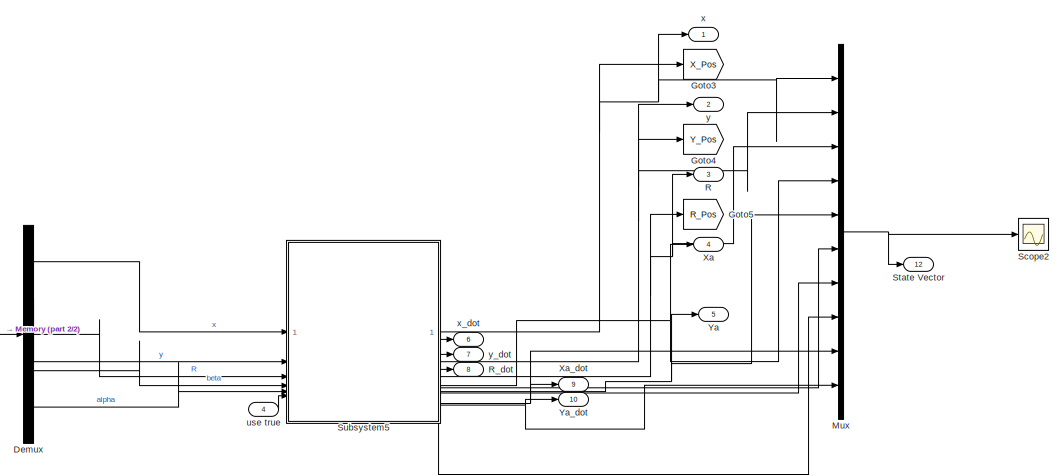
[diagram: Subsystem1/Subsystem - part 1/2, middle right region]
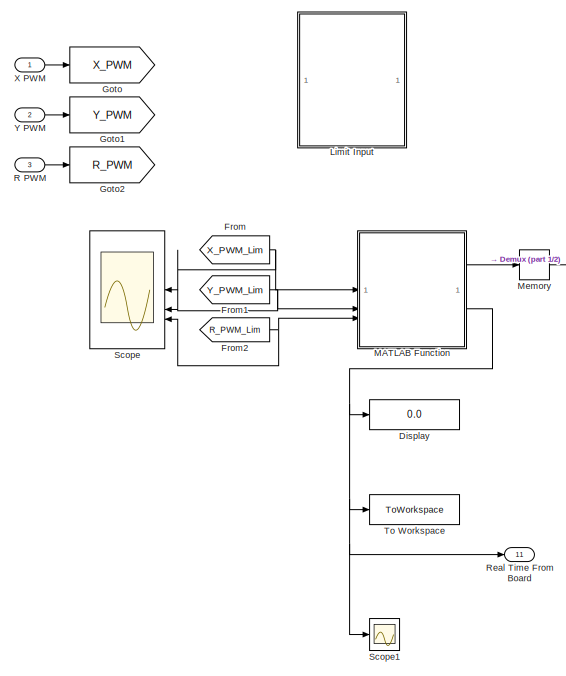
[diagram: Subsystem1/Subsystem - part 2/2, left side, full height]
BLOCK [SubSystem] Subsystem1/Subsystem
  PortSchema = {"entries":[{"content":{"sides":[{"content":{"connectorIds":["In1","In2","In3","In4"]},"type":"ConnectorPlacement.EquallySpacedRectSide","uuid":"9c191be3-a45d-4bde-908f-a93b32fc7100"},{"content":{"connectorIds":["Out1","Out2","Out3","Out4","Out5","Out6","Out7","Out8","Out9","Out10"],"side":"RIGHT"},"type":"ConnectorPlacement.EquallySpacedRectSide","uuid":"786ae7fd-3fdd-4e4f-b32e-e8a30c9c90df"},{"c...<+480ch>
  StopFcn = UpdateBoard([0 0 0])
BLOCK [Demux] Subsystem1/Subsystem/Demux
  Outputs = 5
BLOCK [Display] Subsystem1/Subsystem/Display
  Decimation = 1
BLOCK [From] Subsystem1/Subsystem/From
  GotoTag = X_PWM_Lim
  TagVisibility = global
BLOCK [From] Subsystem1/Subsystem/From1
  GotoTag = Y_PWM_Lim
  TagVisibility = global
BLOCK [From] Subsystem1/Subsystem/From2
  GotoTag = R_PWM_Lim
  TagVisibility = global
BLOCK [Goto] Subsystem1/Subsystem/Goto
  GotoTag = X_PWM
  TagVisibility = global
BLOCK [Goto] Subsystem1/Subsystem/Goto1
  GotoTag = Y_PWM
  TagVisibility = global
BLOCK [Goto] Subsystem1/Subsystem/Goto2
  GotoTag = R_PWM
  TagVisibility = global
BLOCK [Goto] Subsystem1/Subsystem/Goto3
  GotoTag = X_Pos
  TagVisibility = global
BLOCK [Goto] Subsystem1/Subsystem/Goto4
  GotoTag = Y_Pos
  TagVisibility = global
BLOCK [Goto] Subsystem1/Subsystem/Goto5
  GotoTag = R_Pos
  TagVisibility = global
BLOCK [SubSystem] Subsystem1/Subsystem/Limit Input
BLOCK [Constant] Subsystem1/Subsystem/Limit Input/Epsilon
  Value = 0
BLOCK [Goto] Subsystem1/Subsystem/Limit Input/Epsolon
  GotoTag = Epsilon
BLOCK [From] Subsystem1/Subsystem/Limit Input/From
  GotoTag = Epsilon
BLOCK [From] Subsystem1/Subsystem/Limit Input/From1
  GotoTag = X_Pos
  TagVisibility = global
BLOCK [From] Subsystem1/Subsystem/Limit Input/From2
  GotoTag = X_PWM
  TagVisibility = global
BLOCK [From] Subsystem1/Subsystem/Limit Input/From3
  GotoTag = Epsilon
BLOCK [From] Subsystem1/Subsystem/Limit Input/From4
  GotoTag = Y_Pos
  TagVisibility = global
BLOCK [From] Subsystem1/Subsystem/Limit Input/From5
  GotoTag = Y_PWM
  TagVisibility = global
BLOCK [From] Subsystem1/Subsystem/Limit Input/From6
  GotoTag = Epsilon
BLOCK [From] Subsystem1/Subsystem/Limit Input/From7
  GotoTag = R_Pos
  TagVisibility = global
BLOCK [From] Subsystem1/Subsystem/Limit Input/From8
  GotoTag = R_PWM
  TagVisibility = global
BLOCK [Goto] Subsystem1/Subsystem/Limit Input/Goto
  GotoTag = X_PWM_Lim
  TagVisibility = global
BLOCK [Goto] Subsystem1/Subsystem/Limit Input/Goto1
  GotoTag = Y_PWM_Lim
  TagVisibility = global
BLOCK [Goto] Subsystem1/Subsystem/Limit Input/Goto2
  GotoTag = R_PWM_Lim
  TagVisibility = global
BLOCK [SubSystem] Subsystem1/Subsystem/Limit Input/MATLAB Function4
  ErrorFcn = Stateflow.Translate.translate
  PermitHierarchicalResolution = ExplicitOnly
  SFBlockType = MATLAB Function
  TreatAsAtomicUnit = on
BLOCK [Demux] Subsystem1/Subsystem/Limit Input/MATLAB Function4/ Demux 
  Outputs = 1
BLOCK [S-Function] Subsystem1/Subsystem/Limit Input/MATLAB Function4/ SFunction 
  EnableBusSupport = on
  FunctionName = sf_sfun
  PortCounts = [3 2]
  SFcnIsStateOwnerBlock = off
  SFunctionDeploymentMode = off
  Tag = Stateflow S-Function 1
BLOCK [Terminator] Subsystem1/Subsystem/Limit Input/MATLAB Function4/ Terminator 
BLOCK [Inport] Subsystem1/Subsystem/Limit Input/MATLAB Function4/PWL
BLOCK [Outport] Subsystem1/Subsystem/Limit Input/MATLAB Function4/PWL_Limit
BLOCK [Inport] Subsystem1/Subsystem/Limit Input/MATLAB Function4/Position
  Port = 2
BLOCK [Inport] Subsystem1/Subsystem/Limit Input/MATLAB Function4/epsilon
  Port = 3
BLOCK [SubSystem] Subsystem1/Subsystem/Limit Input/MATLAB Function5
  ErrorFcn = Stateflow.Translate.translate
  PermitHierarchicalResolution = ExplicitOnly
  SFBlockType = MATLAB Function
  TreatAsAtomicUnit = on
BLOCK [Demux] Subsystem1/Subsystem/Limit Input/MATLAB Function5/ Demux 
  Outputs = 1
BLOCK [S-Function] Subsystem1/Subsystem/Limit Input/MATLAB Function5/ SFunction 
  EnableBusSupport = on
  FunctionName = sf_sfun
  PortCounts = [3 2]
  SFcnIsStateOwnerBlock = off
  SFunctionDeploymentMode = off
  Tag = Stateflow S-Function 13
BLOCK [Terminator] Subsystem1/Subsystem/Limit Input/MATLAB Function5/ Terminator 
BLOCK [Inport] Subsystem1/Subsystem/Limit Input/MATLAB Function5/PWL
BLOCK [Outport] Subsystem1/Subsystem/Limit Input/MATLAB Function5/PWL_Limit
BLOCK [Inport] Subsystem1/Subsystem/Limit Input/MATLAB Function5/Position
  Port = 2
BLOCK [Inport] Subsystem1/Subsystem/Limit Input/MATLAB Function5/epsilon
  Port = 3
BLOCK [SubSystem] Subsystem1/Subsystem/Limit Input/MATLAB Function6
  ErrorFcn = Stateflow.Translate.translate
  PermitHierarchicalResolution = ExplicitOnly
  SFBlockType = MATLAB Function
  TreatAsAtomicUnit = on
BLOCK [Demux] Subsystem1/Subsystem/Limit Input/MATLAB Function6/ Demux 
  Outputs = 1
BLOCK [S-Function] Subsystem1/Subsystem/Limit Input/MATLAB Function6/ SFunction 
  EnableBusSupport = on
  FunctionName = sf_sfun
  PortCounts = [3 2]
  SFcnIsStateOwnerBlock = off
  SFunctionDeploymentMode = off
  Tag = Stateflow S-Function 14
BLOCK [Terminator] Subsystem1/Subsystem/Limit Input/MATLAB Function6/ Terminator 
BLOCK [Inport] Subsystem1/Subsystem/Limit Input/MATLAB Function6/PWL
BLOCK [Outport] Subsystem1/Subsystem/Limit Input/MATLAB Function6/PWL_Limit
BLOCK [Inport] Subsystem1/Subsystem/Limit Input/MATLAB Function6/Position
  Port = 2
BLOCK [Inport] Subsystem1/Subsystem/Limit Input/MATLAB Function6/epsilon
  Port = 3
BLOCK [SubSystem] Subsystem1/Subsystem/MATLAB Function
  ErrorFcn = Stateflow.Translate.translate
  PermitHierarchicalResolution = ExplicitOnly
  SFBlockType = MATLAB Function
  TreatAsAtomicUnit = on
BLOCK [Demux] Subsystem1/Subsystem/MATLAB Function/ Demux 
  Outputs = 1
BLOCK [S-Function] Subsystem1/Subsystem/MATLAB Function/ SFunction 
  EnableBusSupport = on
  FunctionName = sf_sfun
  PortCounts = [3 3]
  SFcnIsStateOwnerBlock = off
  SFunctionDeploymentMode = off
  Tag = Stateflow S-Function 2
BLOCK [Terminator] Subsystem1/Subsystem/MATLAB Function/ Terminator 
BLOCK [Inport] Subsystem1/Subsystem/MATLAB Function/PWM_X
BLOCK [Inport] Subsystem1/Subsystem/MATLAB Function/PWM_Y
  Port = 2
BLOCK [Inport] Subsystem1/Subsystem/MATLAB Function/PWM_Z
  Port = 3
BLOCK [Outport] Subsystem1/Subsystem/MATLAB Function/Positions
BLOCK [Outport] Subsystem1/Subsystem/MATLAB Function/Time
  Port = 2
BLOCK [Memory] Subsystem1/Subsystem/Memory
  InheritSampleTime = on
  InitialCondition = GetPosition'
BLOCK [Mux] Subsystem1/Subsystem/Mux
  DisplayOption = bar
  Inputs = 10
BLOCK [Outport] Subsystem1/Subsystem/R
  Port = 3
BLOCK [Inport] Subsystem1/Subsystem/R PWM
  NameLocation = left
  Port = 3
BLOCK [Outport] Subsystem1/Subsystem/R_dot
  Port = 8
BLOCK [Outport] Subsystem1/Subsystem/Real Time From Board
  Port = 11
BLOCK [Scope] Subsystem1/Subsystem/Scope
  Floating = off
  NameLocation = top
  NumInputPorts = 3
  ScopeSpecificationString = Simulink.scopes.TimeScopeBlockCfg('CurrentConfiguration', extmgr.ConfigurationSet(extmgr.Configuration('Core','General UI',true),extmgr.Configuration('Core','Source UI',true),extmgr.Configuration('Sources','WiredSimulink',true,'DataLoggingVariableName','PWM','DataLoggingSaveFormat','StructureWithTime','DataLogging',true),extmgr.Configuration('Visuals','Time Domain',true,'SerializedDisplays',{struc...<+1510ch>
BLOCK [Scope] Subsystem1/Subsystem/Scope1
  Floating = off
  NumInputPorts = 1
  ScopeSpecificationString = Simulink.scopes.TimeScopeBlockCfg('CurrentConfiguration', extmgr.ConfigurationSet(extmgr.Configuration('Core','General UI',true),extmgr.Configuration('Core','Source UI',true),extmgr.Configuration('Sources','WiredSimulink',true,'DataLoggingVariableName','TrueTime','DataLogging',true,'DataLoggingSaveFormat','StructureWithTime'),extmgr.Configuration('Visuals','Time Domain',true,'SerializedDisplays',{...<+1481ch>
BLOCK [Scope] Subsystem1/Subsystem/Scope2
  Floating = off
  NumInputPorts = 1
  ScopeSpecificationString = Simulink.scopes.TimeScopeBlockCfg('CurrentConfiguration', extmgr.ConfigurationSet(extmgr.Configuration('Core','General UI',true),extmgr.Configuration('Core','Source UI',true),extmgr.Configuration('Sources','WiredSimulink',true,'DataLoggingVariableName','States','DataLogging',true,'DataLoggingSaveFormat','StructureWithTime'),extmgr.Configuration('Visuals','Time Domain',true,'SerializedDisplays',{st...<+1853ch>
BLOCK [Outport] Subsystem1/Subsystem/State Vector
  Port = 12
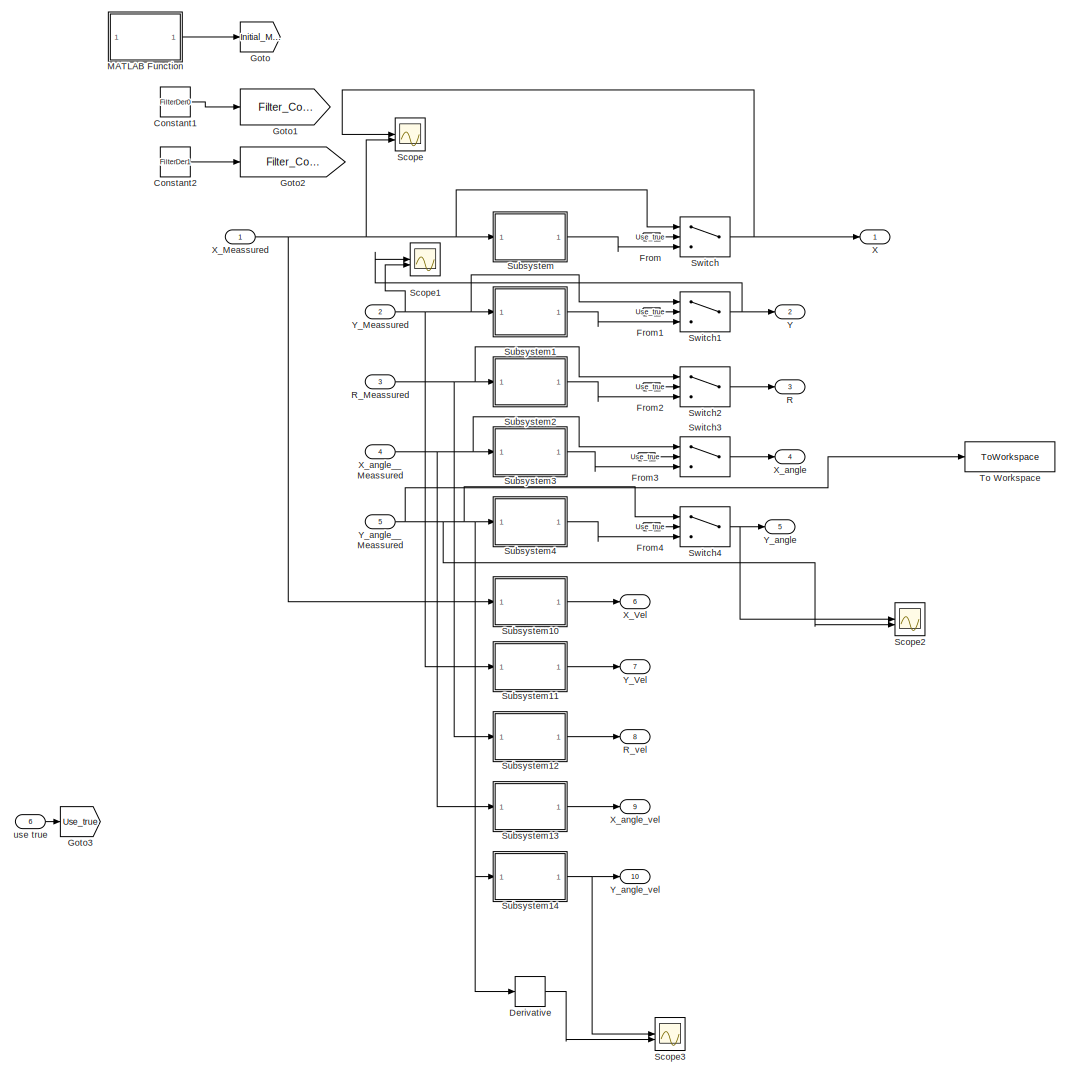
[diagram: Subsystem1/Subsystem/Subsystem5 - part 1/2, most of the canvas]
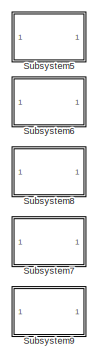
[diagram: Subsystem1/Subsystem/Subsystem5 - part 2/2, bottom right region]
BLOCK [SubSystem] Subsystem1/Subsystem/Subsystem5
BLOCK [Constant] Subsystem1/Subsystem/Subsystem5/Constant1
  Value = FilterDer0
BLOCK [Constant] Subsystem1/Subsystem/Subsystem5/Constant2
  Value = FilterDer1
BLOCK [Derivative] Subsystem1/Subsystem/Subsystem5/Derivative
  Commented = on
BLOCK [From] Subsystem1/Subsystem/Subsystem5/From
  GotoTag = Use_true
BLOCK [From] Subsystem1/Subsystem/Subsystem5/From1
  GotoTag = Use_true
BLOCK [From] Subsystem1/Subsystem/Subsystem5/From2
  GotoTag = Use_true
BLOCK [From] Subsystem1/Subsystem/Subsystem5/From3
  GotoTag = Use_true
BLOCK [From] Subsystem1/Subsystem/Subsystem5/From4
  GotoTag = Use_true
BLOCK [Goto] Subsystem1/Subsystem/Subsystem5/Goto
  GotoTag = Initial_MAtrix_Buffer
  TagVisibility = global
BLOCK [Goto] Subsystem1/Subsystem/Subsystem5/Goto1
  GotoTag = Filter_Coeff_0
  TagVisibility = global
BLOCK [Goto] Subsystem1/Subsystem/Subsystem5/Goto2
  GotoTag = Filter_Coeff_1
  TagVisibility = global
BLOCK [Goto] Subsystem1/Subsystem/Subsystem5/Goto3
  GotoTag = Use_true
BLOCK [SubSystem] Subsystem1/Subsystem/Subsystem5/MATLAB Function
  ErrorFcn = Stateflow.Translate.translate
  PermitHierarchicalResolution = ExplicitOnly
  SFBlockType = MATLAB Function
  TreatAsAtomicUnit = on
BLOCK [Demux] Subsystem1/Subsystem/Subsystem5/MATLAB Function/ Demux 
  Outputs = 1
BLOCK [Ground] Subsystem1/Subsystem/Subsystem5/MATLAB Function/ Ground 
BLOCK [S-Function] Subsystem1/Subsystem/Subsystem5/MATLAB Function/ SFunction 
  EnableBusSupport = on
  FunctionName = sf_sfun
  PortCounts = [1 2]
  SFcnIsStateOwnerBlock = off
  SFunctionDeploymentMode = off
  Tag = Stateflow S-Function 12
BLOCK [Terminator] Subsystem1/Subsystem/Subsystem5/MATLAB Function/ Terminator 
BLOCK [Outport] Subsystem1/Subsystem/Subsystem5/MATLAB Function/Initial_MAtrix
BLOCK [Outport] Subsystem1/Subsystem/Subsystem5/R
  Port = 3
BLOCK [Inport] Subsystem1/Subsystem/Subsystem5/R_Meassured
  Port = 3
BLOCK [Outport] Subsystem1/Subsystem/Subsystem5/R_vel
  Port = 8
BLOCK [Scope] Subsystem1/Subsystem/Subsystem5/Scope
  Floating = off
  NumInputPorts = 2
  ScopeSpecificationString = Simulink.scopes.TimeScopeBlockCfg('CurrentConfiguration', extmgr.ConfigurationSet(extmgr.Configuration('Core','General UI',true),extmgr.Configuration('Core','Source UI',true),extmgr.Configuration('Sources','WiredSimulink',true,'DataLoggingVariableName','ScopeData1'),extmgr.Configuration('Visuals','Time Domain',true,'SerializedDisplays',{struct('MinYLimReal','0.1372','MaxYLimReal','0.54772','YLabel...<+1415ch>
BLOCK [Scope] Subsystem1/Subsystem/Subsystem5/Scope1
  Floating = off
  NumInputPorts = 2
  ScopeSpecificationString = Simulink.scopes.TimeScopeBlockCfg('CurrentConfiguration', extmgr.ConfigurationSet(extmgr.Configuration('Core','General UI',true),extmgr.Configuration('Core','Source UI',true),extmgr.Configuration('Sources','WiredSimulink',true,'DataLoggingVariableName','ScopeData2'),extmgr.Configuration('Visuals','Time Domain',true,'SerializedDisplays',{struct('MinYLimReal','-0.09284','MaxYLimReal','0.83558','YLab...<+1380ch>
BLOCK [Scope] Subsystem1/Subsystem/Subsystem5/Scope2
  Floating = off
  NumInputPorts = 2
  ScopeSpecificationString = Simulink.scopes.TimeScopeBlockCfg('CurrentConfiguration', extmgr.ConfigurationSet(extmgr.Configuration('Core','General UI',true),extmgr.Configuration('Core','Source UI',true),extmgr.Configuration('Sources','WiredSimulink',true,'DataLoggingVariableName','ScopeData3'),extmgr.Configuration('Visuals','Time Domain',true,'SerializedDisplays',{struct('MinYLimReal','-0.43853','MaxYLimReal','0.41859','YLab...<+1459ch>
BLOCK [Scope] Subsystem1/Subsystem/Subsystem5/Scope3
  Floating = off
  NumInputPorts = 2
  ScopeSpecificationString = Simulink.scopes.TimeScopeBlockCfg('CurrentConfiguration', extmgr.ConfigurationSet(extmgr.Configuration('Core','General UI',true),extmgr.Configuration('Core','Source UI',true),extmgr.Configuration('Sources','WiredSimulink',true,'DataLoggingVariableName','ScopeData4'),extmgr.Configuration('Visuals','Time Domain',true,'SerializedDisplays',{struct('MinYLimReal','-0.90819','MaxYLimReal','1.0879','YLabe...<+1398ch>
BLOCK [SubSystem] Subsystem1/Subsystem/Subsystem5/Subsystem
BLOCK [From] Subsystem1/Subsystem/Subsystem5/Subsystem/From
  GotoTag = Filter_Coeff_0
  TagVisibility = global
BLOCK [From] Subsystem1/Subsystem/Subsystem5/Subsystem/From1
  GotoTag = Initial_MAtrix_Buffer
  TagVisibility = global
BLOCK [SubSystem] Subsystem1/Subsystem/Subsystem5/Subsystem/MATLAB Function11
  ErrorFcn = Stateflow.Translate.translate
  PermitHierarchicalResolution = ExplicitOnly
  SFBlockType = MATLAB Function
  TreatAsAtomicUnit = on
BLOCK [Demux] Subsystem1/Subsystem/Subsystem5/Subsystem/MATLAB Function11/ Demux 
  Outputs = 1
BLOCK [S-Function] Subsystem1/Subsystem/Subsystem5/Subsystem/MATLAB Function11/ SFunction 
  EnableBusSupport = on
  FunctionName = sf_sfun
  PortCounts = [2 2]
  SFcnIsStateOwnerBlock = off
  SFunctionDeploymentMode = off
  Tag = Stateflow S-Function 17
BLOCK [Terminator] Subsystem1/Subsystem/Subsystem5/Subsystem/MATLAB Function11/ Terminator 
BLOCK [Inport] Subsystem1/Subsystem/Subsystem5/Subsystem/MATLAB Function11/Initial_Buffer
  Port = 2
BLOCK [Inport] Subsystem1/Subsystem/Subsystem5/Subsystem/MATLAB Function11/u
BLOCK [Outport] Subsystem1/Subsystem/Subsystem5/Subsystem/MATLAB Function11/y
BLOCK [Product] Subsystem1/Subsystem/Subsystem5/Subsystem/MatrixMultiply
  Multiplication = Matrix(*)
BLOCK [Outport] Subsystem1/Subsystem/Subsystem5/Subsystem/Out1
BLOCK [Inport] Subsystem1/Subsystem/Subsystem5/Subsystem/u
BLOCK [SubSystem] Subsystem1/Subsystem/Subsystem5/Subsystem1
BLOCK [From] Subsystem1/Subsystem/Subsystem5/Subsystem1/From
  GotoTag = Filter_Coeff_0
  TagVisibility = global
BLOCK [From] Subsystem1/Subsystem/Subsystem5/Subsystem1/From1
  GotoTag = Initial_MAtrix_Buffer
  TagVisibility = global
BLOCK [SubSystem] Subsystem1/Subsystem/Subsystem5/Subsystem1/MATLAB Function11
  ErrorFcn = Stateflow.Translate.translate
  PermitHierarchicalResolution = ExplicitOnly
  SFBlockType = MATLAB Function
  TreatAsAtomicUnit = on
BLOCK [Demux] Subsystem1/Subsystem/Subsystem5/Subsystem1/MATLAB Function11/ Demux 
  Outputs = 1
BLOCK [S-Function] Subsystem1/Subsystem/Subsystem5/Subsystem1/MATLAB Function11/ SFunction 
  EnableBusSupport = on
  FunctionName = sf_sfun
  PortCounts = [2 2]
  SFcnIsStateOwnerBlock = off
  SFunctionDeploymentMode = off
  Tag = Stateflow S-Function 3
BLOCK [Terminator] Subsystem1/Subsystem/Subsystem5/Subsystem1/MATLAB Function11/ Terminator 
BLOCK [Inport] Subsystem1/Subsystem/Subsystem5/Subsystem1/MATLAB Function11/Initial_Buffer
  Port = 2
BLOCK [Inport] Subsystem1/Subsystem/Subsystem5/Subsystem1/MATLAB Function11/u
BLOCK [Outport] Subsystem1/Subsystem/Subsystem5/Subsystem1/MATLAB Function11/y
BLOCK [Product] Subsystem1/Subsystem/Subsystem5/Subsystem1/MatrixMultiply
  Multiplication = Matrix(*)
BLOCK [Outport] Subsystem1/Subsystem/Subsystem5/Subsystem1/Out1
BLOCK [Inport] Subsystem1/Subsystem/Subsystem5/Subsystem1/u
BLOCK [SubSystem] Subsystem1/Subsystem/Subsystem5/Subsystem10
BLOCK [From] Subsystem1/Subsystem/Subsystem5/Subsystem10/From
  GotoTag = Filter_Coeff_1
  TagVisibility = global
BLOCK [From] Subsystem1/Subsystem/Subsystem5/Subsystem10/From1
  GotoTag = Initial_MAtrix_Buffer
  TagVisibility = global
BLOCK [SubSystem] Subsystem1/Subsystem/Subsystem5/Subsystem10/MATLAB Function11
  ErrorFcn = Stateflow.Translate.translate
  PermitHierarchicalResolution = ExplicitOnly
  SFBlockType = MATLAB Function
  TreatAsAtomicUnit = on
BLOCK [Demux] Subsystem1/Subsystem/Subsystem5/Subsystem10/MATLAB Function11/ Demux 
  Outputs = 1
BLOCK [S-Function] Subsystem1/Subsystem/Subsystem5/Subsystem10/MATLAB Function11/ SFunction 
  EnableBusSupport = on
  FunctionName = sf_sfun
  PortCounts = [2 2]
  SFcnIsStateOwnerBlock = off
  SFunctionDeploymentMode = off
  Tag = Stateflow S-Function 7
BLOCK [Terminator] Subsystem1/Subsystem/Subsystem5/Subsystem10/MATLAB Function11/ Terminator 
BLOCK [Inport] Subsystem1/Subsystem/Subsystem5/Subsystem10/MATLAB Function11/Initial_Buffer
  Port = 2
BLOCK [Inport] Subsystem1/Subsystem/Subsystem5/Subsystem10/MATLAB Function11/u
BLOCK [Outport] Subsystem1/Subsystem/Subsystem5/Subsystem10/MATLAB Function11/y
BLOCK [Product] Subsystem1/Subsystem/Subsystem5/Subsystem10/MatrixMultiply
  Multiplication = Matrix(*)
BLOCK [Outport] Subsystem1/Subsystem/Subsystem5/Subsystem10/Out1
BLOCK [Inport] Subsystem1/Subsystem/Subsystem5/Subsystem10/u
BLOCK [SubSystem] Subsystem1/Subsystem/Subsystem5/Subsystem11
BLOCK [From] Subsystem1/Subsystem/Subsystem5/Subsystem11/From
  GotoTag = Filter_Coeff_1
  TagVisibility = global
BLOCK [From] Subsystem1/Subsystem/Subsystem5/Subsystem11/From1
  GotoTag = Initial_MAtrix_Buffer
  TagVisibility = global
BLOCK [SubSystem] Subsystem1/Subsystem/Subsystem5/Subsystem11/MATLAB Function11
  ErrorFcn = Stateflow.Translate.translate
  PermitHierarchicalResolution = ExplicitOnly
  SFBlockType = MATLAB Function
  TreatAsAtomicUnit = on
BLOCK [Demux] Subsystem1/Subsystem/Subsystem5/Subsystem11/MATLAB Function11/ Demux 
  Outputs = 1
BLOCK [S-Function] Subsystem1/Subsystem/Subsystem5/Subsystem11/MATLAB Function11/ SFunction 
  EnableBusSupport = on
  FunctionName = sf_sfun
  PortCounts = [2 2]
  SFcnIsStateOwnerBlock = off
  SFunctionDeploymentMode = off
  Tag = Stateflow S-Function 8
BLOCK [Terminator] Subsystem1/Subsystem/Subsystem5/Subsystem11/MATLAB Function11/ Terminator 
BLOCK [Inport] Subsystem1/Subsystem/Subsystem5/Subsystem11/MATLAB Function11/Initial_Buffer
  Port = 2
BLOCK [Inport] Subsystem1/Subsystem/Subsystem5/Subsystem11/MATLAB Function11/u
BLOCK [Outport] Subsystem1/Subsystem/Subsystem5/Subsystem11/MATLAB Function11/y
BLOCK [Product] Subsystem1/Subsystem/Subsystem5/Subsystem11/MatrixMultiply
  Multiplication = Matrix(*)
BLOCK [Outport] Subsystem1/Subsystem/Subsystem5/Subsystem11/Out1
BLOCK [Inport] Subsystem1/Subsystem/Subsystem5/Subsystem11/u
BLOCK [SubSystem] Subsystem1/Subsystem/Subsystem5/Subsystem12
BLOCK [From] Subsystem1/Subsystem/Subsystem5/Subsystem12/From
  GotoTag = Filter_Coeff_1
  TagVisibility = global
BLOCK [From] Subsystem1/Subsystem/Subsystem5/Subsystem12/From1
  GotoTag = Initial_MAtrix_Buffer
  TagVisibility = global
BLOCK [SubSystem] Subsystem1/Subsystem/Subsystem5/Subsystem12/MATLAB Function11
  ErrorFcn = Stateflow.Translate.translate
  PermitHierarchicalResolution = ExplicitOnly
  SFBlockType = MATLAB Function
  TreatAsAtomicUnit = on
BLOCK [Demux] Subsystem1/Subsystem/Subsystem5/Subsystem12/MATLAB Function11/ Demux 
  Outputs = 1
BLOCK [S-Function] Subsystem1/Subsystem/Subsystem5/Subsystem12/MATLAB Function11/ SFunction 
  EnableBusSupport = on
  FunctionName = sf_sfun
  PortCounts = [2 2]
  SFcnIsStateOwnerBlock = off
  SFunctionDeploymentMode = off
  Tag = Stateflow S-Function 9
BLOCK [Terminator] Subsystem1/Subsystem/Subsystem5/Subsystem12/MATLAB Function11/ Terminator 
BLOCK [Inport] Subsystem1/Subsystem/Subsystem5/Subsystem12/MATLAB Function11/Initial_Buffer
  Port = 2
BLOCK [Inport] Subsystem1/Subsystem/Subsystem5/Subsystem12/MATLAB Function11/u
BLOCK [Outport] Subsystem1/Subsystem/Subsystem5/Subsystem12/MATLAB Function11/y
BLOCK [Product] Subsystem1/Subsystem/Subsystem5/Subsystem12/MatrixMultiply
  Multiplication = Matrix(*)
BLOCK [Outport] Subsystem1/Subsystem/Subsystem5/Subsystem12/Out1
BLOCK [Inport] Subsystem1/Subsystem/Subsystem5/Subsystem12/u
BLOCK [SubSystem] Subsystem1/Subsystem/Subsystem5/Subsystem13
BLOCK [From] Subsystem1/Subsystem/Subsystem5/Subsystem13/From
  GotoTag = Filter_Coeff_1
  TagVisibility = global
BLOCK [From] Subsystem1/Subsystem/Subsystem5/Subsystem13/From1
  GotoTag = Initial_MAtrix_Buffer
  TagVisibility = global
BLOCK [SubSystem] Subsystem1/Subsystem/Subsystem5/Subsystem13/MATLAB Function11
  ErrorFcn = Stateflow.Translate.translate
  PermitHierarchicalResolution = ExplicitOnly
  SFBlockType = MATLAB Function
  TreatAsAtomicUnit = on
BLOCK [Demux] Subsystem1/Subsystem/Subsystem5/Subsystem13/MATLAB Function11/ Demux 
  Outputs = 1
BLOCK [S-Function] Subsystem1/Subsystem/Subsystem5/Subsystem13/MATLAB Function11/ SFunction 
  EnableBusSupport = on
  FunctionName = sf_sfun
  PortCounts = [2 2]
  SFcnIsStateOwnerBlock = off
  SFunctionDeploymentMode = off
  Tag = Stateflow S-Function 10
BLOCK [Terminator] Subsystem1/Subsystem/Subsystem5/Subsystem13/MATLAB Function11/ Terminator 
BLOCK [Inport] Subsystem1/Subsystem/Subsystem5/Subsystem13/MATLAB Function11/Initial_Buffer
  Port = 2
BLOCK [Inport] Subsystem1/Subsystem/Subsystem5/Subsystem13/MATLAB Function11/u
BLOCK [Outport] Subsystem1/Subsystem/Subsystem5/Subsystem13/MATLAB Function11/y
BLOCK [Product] Subsystem1/Subsystem/Subsystem5/Subsystem13/MatrixMultiply
  Multiplication = Matrix(*)
BLOCK [Outport] Subsystem1/Subsystem/Subsystem5/Subsystem13/Out1
BLOCK [Inport] Subsystem1/Subsystem/Subsystem5/Subsystem13/u
BLOCK [SubSystem] Subsystem1/Subsystem/Subsystem5/Subsystem14
BLOCK [From] Subsystem1/Subsystem/Subsystem5/Subsystem14/From
  GotoTag = Filter_Coeff_1
  TagVisibility = global
BLOCK [From] Subsystem1/Subsystem/Subsystem5/Subsystem14/From1
  GotoTag = Initial_MAtrix_Buffer
  TagVisibility = global
BLOCK [SubSystem] Subsystem1/Subsystem/Subsystem5/Subsystem14/MATLAB Function11
  ErrorFcn = Stateflow.Translate.translate
  PermitHierarchicalResolution = ExplicitOnly
  SFBlockType = MATLAB Function
  TreatAsAtomicUnit = on
BLOCK [Demux] Subsystem1/Subsystem/Subsystem5/Subsystem14/MATLAB Function11/ Demux 
  Outputs = 1
BLOCK [S-Function] Subsystem1/Subsystem/Subsystem5/Subsystem14/MATLAB Function11/ SFunction 
  EnableBusSupport = on
  FunctionName = sf_sfun
  PortCounts = [2 2]
  SFcnIsStateOwnerBlock = off
  SFunctionDeploymentMode = off
  Tag = Stateflow S-Function 11
BLOCK [Terminator] Subsystem1/Subsystem/Subsystem5/Subsystem14/MATLAB Function11/ Terminator 
BLOCK [Inport] Subsystem1/Subsystem/Subsystem5/Subsystem14/MATLAB Function11/Initial_Buffer
  Port = 2
BLOCK [Inport] Subsystem1/Subsystem/Subsystem5/Subsystem14/MATLAB Function11/u
BLOCK [Outport] Subsystem1/Subsystem/Subsystem5/Subsystem14/MATLAB Function11/y
BLOCK [Product] Subsystem1/Subsystem/Subsystem5/Subsystem14/MatrixMultiply
  Multiplication = Matrix(*)
BLOCK [Outport] Subsystem1/Subsystem/Subsystem5/Subsystem14/Out1
BLOCK [Inport] Subsystem1/Subsystem/Subsystem5/Subsystem14/u
BLOCK [SubSystem] Subsystem1/Subsystem/Subsystem5/Subsystem2
BLOCK [From] Subsystem1/Subsystem/Subsystem5/Subsystem2/From
  GotoTag = Filter_Coeff_0
  TagVisibility = global
BLOCK [From] Subsystem1/Subsystem/Subsystem5/Subsystem2/From1
  GotoTag = Initial_MAtrix_Buffer
  TagVisibility = global
BLOCK [SubSystem] Subsystem1/Subsystem/Subsystem5/Subsystem2/MATLAB Function11
  ErrorFcn = Stateflow.Translate.translate
  PermitHierarchicalResolution = ExplicitOnly
  SFBlockType = MATLAB Function
  TreatAsAtomicUnit = on
BLOCK [Demux] Subsystem1/Subsystem/Subsystem5/Subsystem2/MATLAB Function11/ Demux 
  Outputs = 1
BLOCK [S-Function] Subsystem1/Subsystem/Subsystem5/Subsystem2/MATLAB Function11/ SFunction 
  EnableBusSupport = on
  FunctionName = sf_sfun
  PortCounts = [2 2]
  SFcnIsStateOwnerBlock = off
  SFunctionDeploymentMode = off
  Tag = Stateflow S-Function 4
BLOCK [Terminator] Subsystem1/Subsystem/Subsystem5/Subsystem2/MATLAB Function11/ Terminator 
BLOCK [Inport] Subsystem1/Subsystem/Subsystem5/Subsystem2/MATLAB Function11/Initial_Buffer
  Port = 2
BLOCK [Inport] Subsystem1/Subsystem/Subsystem5/Subsystem2/MATLAB Function11/u
BLOCK [Outport] Subsystem1/Subsystem/Subsystem5/Subsystem2/MATLAB Function11/y
BLOCK [Product] Subsystem1/Subsystem/Subsystem5/Subsystem2/MatrixMultiply
  Multiplication = Matrix(*)
BLOCK [Outport] Subsystem1/Subsystem/Subsystem5/Subsystem2/Out1
BLOCK [Inport] Subsystem1/Subsystem/Subsystem5/Subsystem2/u
BLOCK [SubSystem] Subsystem1/Subsystem/Subsystem5/Subsystem3
BLOCK [From] Subsystem1/Subsystem/Subsystem5/Subsystem3/From
  GotoTag = Filter_Coeff_0
  TagVisibility = global
BLOCK [From] Subsystem1/Subsystem/Subsystem5/Subsystem3/From1
  GotoTag = Initial_MAtrix_Buffer
  TagVisibility = global
BLOCK [SubSystem] Subsystem1/Subsystem/Subsystem5/Subsystem3/MATLAB Function11
  ErrorFcn = Stateflow.Translate.translate
  PermitHierarchicalResolution = ExplicitOnly
  SFBlockType = MATLAB Function
  TreatAsAtomicUnit = on
BLOCK [Demux] Subsystem1/Subsystem/Subsystem5/Subsystem3/MATLAB Function11/ Demux 
  Outputs = 1
BLOCK [S-Function] Subsystem1/Subsystem/Subsystem5/Subsystem3/MATLAB Function11/ SFunction 
  EnableBusSupport = on
  FunctionName = sf_sfun
  PortCounts = [2 2]
  SFcnIsStateOwnerBlock = off
  SFunctionDeploymentMode = off
  Tag = Stateflow S-Function 5
BLOCK [Terminator] Subsystem1/Subsystem/Subsystem5/Subsystem3/MATLAB Function11/ Terminator 
BLOCK [Inport] Subsystem1/Subsystem/Subsystem5/Subsystem3/MATLAB Function11/Initial_Buffer
  Port = 2
BLOCK [Inport] Subsystem1/Subsystem/Subsystem5/Subsystem3/MATLAB Function11/u
BLOCK [Outport] Subsystem1/Subsystem/Subsystem5/Subsystem3/MATLAB Function11/y
BLOCK [Product] Subsystem1/Subsystem/Subsystem5/Subsystem3/MatrixMultiply
  Multiplication = Matrix(*)
BLOCK [Outport] Subsystem1/Subsystem/Subsystem5/Subsystem3/Out1
BLOCK [Inport] Subsystem1/Subsystem/Subsystem5/Subsystem3/u
BLOCK [SubSystem] Subsystem1/Subsystem/Subsystem5/Subsystem4
BLOCK [From] Subsystem1/Subsystem/Subsystem5/Subsystem4/From
  GotoTag = Filter_Coeff_0
  TagVisibility = global
BLOCK [From] Subsystem1/Subsystem/Subsystem5/Subsystem4/From1
  GotoTag = Initial_MAtrix_Buffer
  TagVisibility = global
BLOCK [SubSystem] Subsystem1/Subsystem/Subsystem5/Subsystem4/MATLAB Function11
  ErrorFcn = Stateflow.Translate.translate
  PermitHierarchicalResolution = ExplicitOnly
  SFBlockType = MATLAB Function
  TreatAsAtomicUnit = on
BLOCK [Demux] Subsystem1/Subsystem/Subsystem5/Subsystem4/MATLAB Function11/ Demux 
  Outputs = 1
BLOCK [S-Function] Subsystem1/Subsystem/Subsystem5/Subsystem4/MATLAB Function11/ SFunction 
  EnableBusSupport = on
  FunctionName = sf_sfun
  PortCounts = [2 2]
  SFcnIsStateOwnerBlock = off
  SFunctionDeploymentMode = off
  Tag = Stateflow S-Function 6
BLOCK [Terminator] Subsystem1/Subsystem/Subsystem5/Subsystem4/MATLAB Function11/ Terminator 
BLOCK [Inport] Subsystem1/Subsystem/Subsystem5/Subsystem4/MATLAB Function11/Initial_Buffer
  Port = 2
BLOCK [Inport] Subsystem1/Subsystem/Subsystem5/Subsystem4/MATLAB Function11/u
BLOCK [Outport] Subsystem1/Subsystem/Subsystem5/Subsystem4/MATLAB Function11/y
BLOCK [Product] Subsystem1/Subsystem/Subsystem5/Subsystem4/MatrixMultiply
  Multiplication = Matrix(*)
BLOCK [Outport] Subsystem1/Subsystem/Subsystem5/Subsystem4/Out1
BLOCK [Inport] Subsystem1/Subsystem/Subsystem5/Subsystem4/u
BLOCK [SubSystem] Subsystem1/Subsystem/Subsystem5/Subsystem5
  Commented = on
BLOCK [Constant] Subsystem1/Subsystem/Subsystem5/Subsystem5/Discrete Filter Coefficents
  Value = [1.574208515729901059e+01\n1.586094721714563072e+01\n-5.994995630757394833e-01\n-9.191365250349250005e+00\n-1.170290325508502960e+01\n-9.922366987693955309e+00\n-5.638009858585491862e+00\n-6.380852781707303523e-01\n3.289153343139662233e+00\n4.355452594936194188e+00\n7.725590668082207291e-01\n-2.327967186368518515e+00]'  <repeated x5 — deduplicated; at blocks: Discrete Filter Coefficents>
BLOCK [SubSystem] Subsystem1/Subsystem/Subsystem5/Subsystem5/MATLAB Function11
  ErrorFcn = Stateflow.Translate.translate
  PermitHierarchicalResolution = ExplicitOnly
  SFBlockType = MATLAB Function
  TreatAsAtomicUnit = on
BLOCK [Demux] Subsystem1/Subsystem/Subsystem5/Subsystem5/MATLAB Function11/ Demux 
  Outputs = 1
BLOCK [S-Function] Subsystem1/Subsystem/Subsystem5/Subsystem5/MATLAB Function11/ SFunction 
  EnableBusSupport = off
  FunctionName = sf_sfun
  PortCounts = [1 2]
  SFcnIsStateOwnerBlock = off
  SFunctionDeploymentMode = off
  Tag = Stateflow S-Function 22
BLOCK [Terminator] Subsystem1/Subsystem/Subsystem5/Subsystem5/MATLAB Function11/ Terminator 
BLOCK [Inport] Subsystem1/Subsystem/Subsystem5/Subsystem5/MATLAB Function11/u
BLOCK [Outport] Subsystem1/Subsystem/Subsystem5/Subsystem5/MATLAB Function11/y
BLOCK [Product] Subsystem1/Subsystem/Subsystem5/Subsystem5/MatrixMultiply
  Multiplication = Matrix(*)
BLOCK [Outport] Subsystem1/Subsystem/Subsystem5/Subsystem5/X_Vel
BLOCK [Inport] Subsystem1/Subsystem/Subsystem5/Subsystem5/u
BLOCK [SubSystem] Subsystem1/Subsystem/Subsystem5/Subsystem6
  Commented = on
BLOCK [Constant] Subsystem1/Subsystem/Subsystem5/Subsystem6/Discrete Filter Coefficents
BLOCK [SubSystem] Subsystem1/Subsystem/Subsystem5/Subsystem6/MATLAB Function11
  ErrorFcn = Stateflow.Translate.translate
  PermitHierarchicalResolution = ExplicitOnly
  SFBlockType = MATLAB Function
  TreatAsAtomicUnit = on
BLOCK [Demux] Subsystem1/Subsystem/Subsystem5/Subsystem6/MATLAB Function11/ Demux 
  Outputs = 1
BLOCK [S-Function] Subsystem1/Subsystem/Subsystem5/Subsystem6/MATLAB Function11/ SFunction 
  EnableBusSupport = off
  FunctionName = sf_sfun
  PortCounts = [1 2]
  SFcnIsStateOwnerBlock = off
  SFunctionDeploymentMode = off
  Tag = Stateflow S-Function 23
BLOCK [Terminator] Subsystem1/Subsystem/Subsystem5/Subsystem6/MATLAB Function11/ Terminator 
BLOCK [Inport] Subsystem1/Subsystem/Subsystem5/Subsystem6/MATLAB Function11/u
BLOCK [Outport] Subsystem1/Subsystem/Subsystem5/Subsystem6/MATLAB Function11/y
BLOCK [Product] Subsystem1/Subsystem/Subsystem5/Subsystem6/MatrixMultiply
  Multiplication = Matrix(*)
BLOCK [Outport] Subsystem1/Subsystem/Subsystem5/Subsystem6/X_Vel1
BLOCK [Inport] Subsystem1/Subsystem/Subsystem5/Subsystem6/u
BLOCK [SubSystem] Subsystem1/Subsystem/Subsystem5/Subsystem7
  Commented = on
BLOCK [Derivative] Subsystem1/Subsystem/Subsystem5/Subsystem7/Derivative
BLOCK [Constant] Subsystem1/Subsystem/Subsystem5/Subsystem7/Discrete Filter Coefficents
BLOCK [SubSystem] Subsystem1/Subsystem/Subsystem5/Subsystem7/MATLAB Function11
  ErrorFcn = Stateflow.Translate.translate
  PermitHierarchicalResolution = ExplicitOnly
  SFBlockType = MATLAB Function
  TreatAsAtomicUnit = on
BLOCK [Demux] Subsystem1/Subsystem/Subsystem5/Subsystem7/MATLAB Function11/ Demux 
  Outputs = 1
BLOCK [S-Function] Subsystem1/Subsystem/Subsystem5/Subsystem7/MATLAB Function11/ SFunction 
  EnableBusSupport = off
  FunctionName = sf_sfun
  PortCounts = [1 2]
  SFcnIsStateOwnerBlock = off
  SFunctionDeploymentMode = off
  Tag = Stateflow S-Function 24
BLOCK [Terminator] Subsystem1/Subsystem/Subsystem5/Subsystem7/MATLAB Function11/ Terminator 
BLOCK [Inport] Subsystem1/Subsystem/Subsystem5/Subsystem7/MATLAB Function11/u
BLOCK [Outport] Subsystem1/Subsystem/Subsystem5/Subsystem7/MATLAB Function11/y
BLOCK [Product] Subsystem1/Subsystem/Subsystem5/Subsystem7/MatrixMultiply
  Multiplication = Matrix(*)
BLOCK [Outport] Subsystem1/Subsystem/Subsystem5/Subsystem7/Out1
BLOCK [Scope] Subsystem1/Subsystem/Subsystem5/Subsystem7/Scope
  Floating = off
  NumInputPorts = 2
  ScopeSpecificationString = Simulink.scopes.TimeScopeBlockCfg('CurrentConfiguration', extmgr.ConfigurationSet(extmgr.Configuration('Core','General UI',true),extmgr.Configuration('Core','Source UI',true),extmgr.Configuration('Sources','WiredSimulink',true,'DataLoggingVariableName','ScopeData8'),extmgr.Configuration('Visuals','Time Domain',true,'SerializedDisplays',{struct('MinYLimReal','-1.60116','MaxYLimReal','1.91748','YLab...<+1428ch>
BLOCK [Inport] Subsystem1/Subsystem/Subsystem5/Subsystem7/u
BLOCK [SubSystem] Subsystem1/Subsystem/Subsystem5/Subsystem8
  Commented = on
BLOCK [Constant] Subsystem1/Subsystem/Subsystem5/Subsystem8/Discrete Filter Coefficents
BLOCK [SubSystem] Subsystem1/Subsystem/Subsystem5/Subsystem8/MATLAB Function11
  ErrorFcn = Stateflow.Translate.translate
  PermitHierarchicalResolution = ExplicitOnly
  SFBlockType = MATLAB Function
  TreatAsAtomicUnit = on
BLOCK [Demux] Subsystem1/Subsystem/Subsystem5/Subsystem8/MATLAB Function11/ Demux 
  Outputs = 1
BLOCK [S-Function] Subsystem1/Subsystem/Subsystem5/Subsystem8/MATLAB Function11/ SFunction 
  EnableBusSupport = off
  FunctionName = sf_sfun
  PortCounts = [1 2]
  SFcnIsStateOwnerBlock = off
  SFunctionDeploymentMode = off
  Tag = Stateflow S-Function 25
BLOCK [Terminator] Subsystem1/Subsystem/Subsystem5/Subsystem8/MATLAB Function11/ Terminator 
BLOCK [Inport] Subsystem1/Subsystem/Subsystem5/Subsystem8/MATLAB Function11/u
BLOCK [Outport] Subsystem1/Subsystem/Subsystem5/Subsystem8/MATLAB Function11/y
BLOCK [Product] Subsystem1/Subsystem/Subsystem5/Subsystem8/MatrixMultiply
  Multiplication = Matrix(*)
BLOCK [Outport] Subsystem1/Subsystem/Subsystem5/Subsystem8/Out1
BLOCK [Inport] Subsystem1/Subsystem/Subsystem5/Subsystem8/u
BLOCK [SubSystem] Subsystem1/Subsystem/Subsystem5/Subsystem9
  Commented = on
BLOCK [Derivative] Subsystem1/Subsystem/Subsystem5/Subsystem9/Derivative
BLOCK [Constant] Subsystem1/Subsystem/Subsystem5/Subsystem9/Discrete Filter Coefficents
BLOCK [SubSystem] Subsystem1/Subsystem/Subsystem5/Subsystem9/MATLAB Function11
  ErrorFcn = Stateflow.Translate.translate
  PermitHierarchicalResolution = ExplicitOnly
  SFBlockType = MATLAB Function
  TreatAsAtomicUnit = on
BLOCK [Demux] Subsystem1/Subsystem/Subsystem5/Subsystem9/MATLAB Function11/ Demux 
  Outputs = 1
BLOCK [S-Function] Subsystem1/Subsystem/Subsystem5/Subsystem9/MATLAB Function11/ SFunction 
  EnableBusSupport = off
  FunctionName = sf_sfun
  PortCounts = [1 2]
  SFcnIsStateOwnerBlock = off
  SFunctionDeploymentMode = off
  Tag = Stateflow S-Function 26
BLOCK [Terminator] Subsystem1/Subsystem/Subsystem5/Subsystem9/MATLAB Function11/ Terminator 
BLOCK [Inport] Subsystem1/Subsystem/Subsystem5/Subsystem9/MATLAB Function11/u
BLOCK [Outport] Subsystem1/Subsystem/Subsystem5/Subsystem9/MATLAB Function11/y
BLOCK [Product] Subsystem1/Subsystem/Subsystem5/Subsystem9/MatrixMultiply
  Multiplication = Matrix(*)
BLOCK [Outport] Subsystem1/Subsystem/Subsystem5/Subsystem9/Out1
BLOCK [Scope] Subsystem1/Subsystem/Subsystem5/Subsystem9/Scope
  Floating = off
  NumInputPorts = 2
  ScopeSpecificationString = Simulink.scopes.TimeScopeBlockCfg('CurrentConfiguration', extmgr.ConfigurationSet(extmgr.Configuration('Core','General UI',true),extmgr.Configuration('Core','Source UI',true),extmgr.Configuration('Sources','WiredSimulink',true,'DataLoggingVariableName','ScopeData9'),extmgr.Configuration('Visuals','Time Domain',true,'SerializedDisplays',{struct('MinYLimReal','-0.19175','MaxYLimReal','0.19175','YLab...<+1405ch>
BLOCK [Inport] Subsystem1/Subsystem/Subsystem5/Subsystem9/u
BLOCK [Switch] Subsystem1/Subsystem/Subsystem5/Switch
  Criteria = u2 > Threshold
  InputSameDT = off
  SaturateOnIntegerOverflow = off
BLOCK [Switch] Subsystem1/Subsystem/Subsystem5/Switch1
  Criteria = u2 > Threshold
  InputSameDT = off
  SaturateOnIntegerOverflow = off
BLOCK [Switch] Subsystem1/Subsystem/Subsystem5/Switch2
  Criteria = u2 > Threshold
  InputSameDT = off
  SaturateOnIntegerOverflow = off
BLOCK [Switch] Subsystem1/Subsystem/Subsystem5/Switch3
  Criteria = u2 > Threshold
  InputSameDT = off
  SaturateOnIntegerOverflow = off
BLOCK [Switch] Subsystem1/Subsystem/Subsystem5/Switch4
  Criteria = u2 > Threshold
  InputSameDT = off
  SaturateOnIntegerOverflow = off
BLOCK [ToWorkspace] Subsystem1/Subsystem/Subsystem5/To Workspace
  FixptAsFi = on
  MaxDataPoints = inf
  SampleTime = -1
  SaveFormat = Timeseries
  VariableName = realY
BLOCK [Outport] Subsystem1/Subsystem/Subsystem5/X
BLOCK [Inport] Subsystem1/Subsystem/Subsystem5/X_Meassured
BLOCK [Outport] Subsystem1/Subsystem/Subsystem5/X_Vel
  Port = 6
BLOCK [Outport] Subsystem1/Subsystem/Subsystem5/X_angle
  Port = 4
BLOCK [Inport] Subsystem1/Subsystem/Subsystem5/X_angle__Meassured
  Port = 4
BLOCK [Outport] Subsystem1/Subsystem/Subsystem5/X_angle_vel
  Port = 9
BLOCK [Outport] Subsystem1/Subsystem/Subsystem5/Y
  Port = 2
BLOCK [Inport] Subsystem1/Subsystem/Subsystem5/Y_Meassured
  Port = 2
BLOCK [Outport] Subsystem1/Subsystem/Subsystem5/Y_Vel
  Port = 7
BLOCK [Outport] Subsystem1/Subsystem/Subsystem5/Y_angle
  Port = 5
BLOCK [Inport] Subsystem1/Subsystem/Subsystem5/Y_angle__Meassured
  Port = 5
BLOCK [Outport] Subsystem1/Subsystem/Subsystem5/Y_angle_vel
  Port = 10
BLOCK [Inport] Subsystem1/Subsystem/Subsystem5/use true
  Port = 6
BLOCK [ToWorkspace] Subsystem1/Subsystem/To Workspace
  FixptAsFi = on
  MaxDataPoints = inf
  SampleTime = -1
  SaveFormat = Structure With Time
  VariableName = real_time_from_board
BLOCK [Inport] Subsystem1/Subsystem/X PWM
  NameLocation = left
BLOCK [Outport] Subsystem1/Subsystem/Xa
  Port = 4
BLOCK [Outport] Subsystem1/Subsystem/Xa_dot
  Port = 9
BLOCK [Inport] Subsystem1/Subsystem/Y PWM
  NameLocation = left
  Port = 2
BLOCK [Outport] Subsystem1/Subsystem/Ya
  Port = 5
BLOCK [Outport] Subsystem1/Subsystem/Ya_dot
  Port = 10
BLOCK [Inport] Subsystem1/Subsystem/use true
  Port = 4
BLOCK [Outport] Subsystem1/Subsystem/x
BLOCK [Outport] Subsystem1/Subsystem/x_dot
  Port = 6
BLOCK [Outport] Subsystem1/Subsystem/y
  Port = 2
BLOCK [Outport] Subsystem1/Subsystem/y_dot
  Port = 7
BLOCK [Inport] Subsystem1/Use True
  Port = 2
BLOCK [SubSystem] Subsystem2
BLOCK [Demux] Subsystem2/Demux
BLOCK [Demux] Subsystem2/Demux1
BLOCK [Demux] Subsystem2/Demux2
BLOCK [Demux] Subsystem2/Demux3
BLOCK [Display] Subsystem2/Display
  Decimation = 1
BLOCK [From] Subsystem2/From
  GotoTag = TrajX
  TagVisibility = global
BLOCK [From] Subsystem2/From1
  GotoTag = x_X_Measured
  TagVisibility = global
BLOCK [From] Subsystem2/From2
  GotoTag = TrajY
  TagVisibility = global
BLOCK [From] Subsystem2/From3
  GotoTag = x_Y_Measured
  TagVisibility = global
BLOCK [Scope] Subsystem2/Scope1
  Floating = off
  NumInputPorts = 2
  ScopeSpecificationString = Simulink.scopes.TimeScopeBlockCfg('CurrentConfiguration', extmgr.ConfigurationSet(extmgr.Configuration('Core','General UI',true),extmgr.Configuration('Core','Source UI',true),extmgr.Configuration('Sources','WiredSimulink',true,'DataLoggingVariableName','ScopeData2'),extmgr.Configuration('Visuals','Time Domain',true,'SerializedDisplays',{struct('MinYLimReal','-0.23282','MaxYLimReal','0.21627','YLab...<+1694ch>
BLOCK [Scope] Subsystem2/Scope10
  Floating = off
  NumInputPorts = 2
  ScopeSpecificationString = Simulink.scopes.TimeScopeBlockCfg('CurrentConfiguration', extmgr.ConfigurationSet(extmgr.Configuration('Core','General UI',true),extmgr.Configuration('Core','Source UI',true),extmgr.Configuration('Sources','WiredSimulink',true,'DataLoggingVariableName','ScopeData2'),extmgr.Configuration('Visuals','Time Domain',true,'SerializedDisplays',{struct('MinYLimReal','-0.23848','MaxYLimReal','0.23244','YLab...<+1695ch>
BLOCK [Scope] Subsystem2/Scope11
  Floating = off
  NumInputPorts = 2
  ScopeSpecificationString = Simulink.scopes.TimeScopeBlockCfg('CurrentConfiguration', extmgr.ConfigurationSet(extmgr.Configuration('Core','General UI',true),extmgr.Configuration('Core','Source UI',true),extmgr.Configuration('Sources','WiredSimulink',true,'DataLoggingVariableName','ScopeData1'),extmgr.Configuration('Visuals','Time Domain',true,'SerializedDisplays',{struct('MinYLimReal','-0.42687','MaxYLimReal','0.31428','YLab...<+1695ch>
BLOCK [Scope] Subsystem2/Scope12
  Floating = off
  NumInputPorts = 2
  ScopeSpecificationString = Simulink.scopes.TimeScopeBlockCfg('CurrentConfiguration', extmgr.ConfigurationSet(extmgr.Configuration('Core','General UI',true),extmgr.Configuration('Core','Source UI',true),extmgr.Configuration('Sources','WiredSimulink',true,'DataLoggingVariableName','ScopeData2'),extmgr.Configuration('Visuals','Time Domain',true,'SerializedDisplays',{struct('MinYLimReal','-2.63068','MaxYLimReal','2.10764','YLab...<+1722ch>
BLOCK [Scope] Subsystem2/Scope2
  Floating = off
  NumInputPorts = 2
  ScopeSpecificationString = Simulink.scopes.TimeScopeBlockCfg('CurrentConfiguration', extmgr.ConfigurationSet(extmgr.Configuration('Core','General UI',true),extmgr.Configuration('Core','Source UI',true),extmgr.Configuration('Sources','WiredSimulink',true,'DataLoggingVariableName','ScopeData3'),extmgr.Configuration('Visuals','Time Domain',true,'SerializedDisplays',{struct('MinYLimReal','-1.73326','MaxYLimReal','1.28048','YLab...<+1669ch>
BLOCK [Scope] Subsystem2/Scope3
  Floating = off
  NumInputPorts = 2
  ScopeSpecificationString = Simulink.scopes.TimeScopeBlockCfg('CurrentConfiguration', extmgr.ConfigurationSet(extmgr.Configuration('Core','General UI',true),extmgr.Configuration('Core','Source UI',true),extmgr.Configuration('Sources','WiredSimulink',true,'DataLoggingVariableName','ScopeData4'),extmgr.Configuration('Visuals','Time Domain',true,'SerializedDisplays',{struct('MinYLimReal','-0.26389','MaxYLimReal','0.16331','YLab...<+1696ch>
BLOCK [Scope] Subsystem2/Scope4
  Floating = off
  NumInputPorts = 2
  ScopeSpecificationString = Simulink.scopes.TimeScopeBlockCfg('CurrentConfiguration', extmgr.ConfigurationSet(extmgr.Configuration('Core','General UI',true),extmgr.Configuration('Core','Source UI',true),extmgr.Configuration('Sources','WiredSimulink',true,'DataLoggingVariableName','ScopeData5'),extmgr.Configuration('Visuals','Time Domain',true,'SerializedDisplays',{struct('MinYLimReal','-1.00000','MaxYLimReal','1.00000','YLab...<+1806ch>
BLOCK [Scope] Subsystem2/Scope8
  Floating = off
  NumInputPorts = 2
  ScopeSpecificationString = Simulink.scopes.TimeScopeBlockCfg('CurrentConfiguration', extmgr.ConfigurationSet(extmgr.Configuration('Core','General UI',true),extmgr.Configuration('Core','Source UI',true),extmgr.Configuration('Sources','WiredSimulink',true,'DataLoggingVariableName','ScopeData1'),extmgr.Configuration('Visuals','Time Domain',true,'SerializedDisplays',{struct('MinYLimReal','0.19885','MaxYLimReal','0.39999','YLabe...<+1804ch>
BLOCK [SubSystem] Subsystem3
BLOCK [From] Subsystem3/From
  GotoTag = Compensate_dry_friction
  TagVisibility = global
BLOCK [Outport] Subsystem3/PWM
BLOCK [Scope] Subsystem3/Scope
  Floating = off
  NumInputPorts = 2
  ScopeSpecificationString = Simulink.scopes.TimeScopeBlockCfg('CurrentConfiguration', extmgr.ConfigurationSet(extmgr.Configuration('Core','General UI',true),extmgr.Configuration('Core','Source UI',true),extmgr.Configuration('Sources','WiredSimulink',true,'DataLoggingVariableName','ScopeData1'),extmgr.Configuration('Visuals','Time Domain',true,'SerializedDisplays',{struct('MinYLimReal','-1.2595','MaxYLimReal','1.2595','YLabel...<+1546ch>
BLOCK [Switch] Subsystem3/Switch
  Criteria = u2 > Threshold
  InputSameDT = off
  SaturateOnIntegerOverflow = off
BLOCK [ToWorkspace] Subsystem3/To Workspace3
  FixptAsFi = on
  MaxDataPoints = inf
  SampleTime = -1
  SaveFormat = Timeseries
  VariableName = PWM_toPlant
BLOCK [SubSystem] Subsystem3/dry_friction_compensation
  ErrorFcn = Stateflow.Translate.translate
  PermitHierarchicalResolution = ExplicitOnly
  SFBlockType = MATLAB Function
  TreatAsAtomicUnit = on
BLOCK [Demux] Subsystem3/dry_friction_compensation/ Demux 
  Outputs = 1
BLOCK [S-Function] Subsystem3/dry_friction_compensation/ SFunction 
  EnableBusSupport = on
  FunctionName = sf_sfun
  PortCounts = [2 2]
  SFcnIsStateOwnerBlock = off
  SFunctionDeploymentMode = off
  Tag = Stateflow S-Function 27
BLOCK [Terminator] Subsystem3/dry_friction_compensation/ Terminator 
BLOCK [Inport] Subsystem3/dry_friction_compensation/u
  Port = 2
BLOCK [Outport] Subsystem3/dry_friction_compensation/u_compensated
BLOCK [Inport] Subsystem3/dry_friction_compensation/x
BLOCK [Inport] Subsystem3/u
  Port = 2
BLOCK [Inport] Subsystem3/x
  NameLocation = top
BLOCK [Switch] Switch
  Criteria = u2 > Threshold
  InputSameDT = off
  NameLocation = right
  SaturateOnIntegerOverflow = off
BLOCK [ToWorkspace] To Workspace
  FixptAsFi = on
  MaxDataPoints = inf
  SampleTime = -1
  SaveFormat = Timeseries
  VariableName = manipulated_u
BLOCK [Goto] Use Only Model
  GotoTag = Use_Only_Mode
  TagVisibility = global
ANNOTATION (root): Artificial Disturbance
ANNOTATION (root): Config
ANNOTATION (root): Nonlinear Model
ANNOTATION (root): Real Plant Driver
ANNOTATION (root): Real Time Handling
ANNOTATION (root): Trajectory Plotting
ANNOTATION (root): dry friction compensation
ANNOTATION (root): Feedforward of dry friction
ANNOTATION (root): If true the model is simulated ! may affect real time performance!
ANNOTATION (root): If true uses the messured positions and not the estimated positions (includes delay).
ANNOTATION (root): This also means the MPC takes the output of the model
ANNOTATION SOLVE OCP : Actual MPC
ANNOTATION SOLVE OCP /Subsystem: Integrator Logic Gemessene Position kommt von Plant und Integral anteil fehler kommt con MPC
ANNOTATION SOLVE OCP /Subsystem1: extract usable values
ANNOTATION SOLVE OCP /Subsystem1/MPC 1: Warmstarting Logic
ANNOTATION SOLVE OCP /Subsystem1/MPC 1: actual MPC
ANNOTATION SOLVE OCP /Subsystem2: Integrator Logic Gemessene Position kommt von Plant und Integral anteil fehler kommt con MPC
ANNOTATION SOLVE OCP /Subsystem4: extract usable values
ANNOTATION SOLVE OCP /Subsystem4/MPC 1: Warmstarting Logic
ANNOTATION SOLVE OCP /Subsystem4/MPC 1: actual MPC
ANNOTATION SOLVE OCP /Subsystem5: extract usable values
ANNOTATION SOLVE OCP /Subsystem5/MPC 1: Warmstarting Logic
ANNOTATION SOLVE OCP /Subsystem5/MPC 1: actual MPC
ANNOTATION Subsystem2: MPC 1
ANNOTATION Subsystem2: MPC 2
LINE Constant1:1 -> MATLAB Function:3
LINE Constant5:1 -> Goto:1
LINE Constant8:1 -> Use Only Model:1
LINE Constant9:1 -> Goto6:1
LINE Constant:1 -> Goto1:1
LINE From1:1 -> Memory:1
LINE From2:1 -> Switch:2
LINE From4:1 -> Subsystem1:2
NET MATLAB Function:1 -> Nonlinear Model:1, SOLVE OCP :2, Subsystem1:1, To Workspace:1
LINE Memory:1 -> MATLAB Function:2
LINE Mux:1 -> Subsystem3:2
LINE Nonlinear Model/Constant1:1 -> Nonlinear Model/MATLAB Function4:3
LINE Nonlinear Model/Constant:1 -> Nonlinear Model/Mux:3
LINE Nonlinear Model/Demux:1 -> Nonlinear Model/Mux:1
LINE Nonlinear Model/Demux:2 -> Nonlinear Model/Mux:2
LINE Nonlinear Model/MATLAB Function3:1 -> Nonlinear Model/x0 z-1:1
NET Nonlinear Model/MATLAB Function4:1 -> Nonlinear Model/Memory:1, Nonlinear Model/Scope2:1, Nonlinear Model/To Workspace2:1
LINE Nonlinear Model/Memory1:1 -> Nonlinear Model/Memory2:1
LINE Nonlinear Model/Memory2:1 -> Nonlinear Model/MATLAB Function3:1
NET Nonlinear Model/Memory:1 -> Nonlinear Model/MATLAB Function4:1, Nonlinear Model/Memory1:1
LINE Nonlinear Model/Mux:1 -> Nonlinear Model/MATLAB Function4:2
LINE Nonlinear Model/PWM:1 -> Nonlinear Model/Demux:1
NET Nonlinear Model:1 -> Scope6:2, Switch:1
NET Real-Time Synchronization:1 -> Display2:1, Scope3:1
NET SOLVE OCP /Cmp Delay:1 -> SOLVE OCP /Nonlinear Model1:1, SOLVE OCP /Subsystem2:1
LINE SOLVE OCP /Constant3:1 -> SOLVE OCP /Nonlinear Model1:3
LINE SOLVE OCP /Nonlinear Model1/Constant1:1 -> SOLVE OCP /Nonlinear Model1/MATLAB Function4:3
LINE SOLVE OCP /Nonlinear Model1/Constant:1 -> SOLVE OCP /Nonlinear Model1/Mux:3
LINE SOLVE OCP /Nonlinear Model1/Delay:1 -> SOLVE OCP /Nonlinear Model1/MATLAB Function4:4
LINE SOLVE OCP /Nonlinear Model1/Demux:1 -> SOLVE OCP /Nonlinear Model1/Mux:1
LINE SOLVE OCP /Nonlinear Model1/Demux:2 -> SOLVE OCP /Nonlinear Model1/Mux:2
LINE SOLVE OCP /Nonlinear Model1/MATLAB Function11:1 -> SOLVE OCP /Nonlinear Model1/MATLAB Function4:2
NET SOLVE OCP /Nonlinear Model1/MATLAB Function4:1 -> SOLVE OCP /Nonlinear Model1/MATLAB Function:1, SOLVE OCP /Nonlinear Model1/Scope:1
LINE SOLVE OCP /Nonlinear Model1/MATLAB Function:1 -> SOLVE OCP /Nonlinear Model1/Compensated Delay:1
LINE SOLVE OCP /Nonlinear Model1/Mux:1 -> SOLVE OCP /Nonlinear Model1/MATLAB Function11:1
LINE SOLVE OCP /Nonlinear Model1/PWM:1 -> SOLVE OCP /Nonlinear Model1/Demux:1
NET SOLVE OCP /Nonlinear Model1/x0:1 -> SOLVE OCP /Nonlinear Model1/MATLAB Function4:1, SOLVE OCP /Nonlinear Model1/Scope:2
LINE SOLVE OCP /Nonlinear Model1:1 -> SOLVE OCP /Subsystem:1
LINE SOLVE OCP /PWM:1 -> SOLVE OCP /Nonlinear Model1:2
NET SOLVE OCP /Subsystem/Delete L:1 -> SOLVE OCP /Subsystem/MATLAB Function10:1, SOLVE OCP /Subsystem/Scope:1
NET SOLVE OCP /Subsystem/MATLAB Function10:1 -> SOLVE OCP /Subsystem/To Workspace5:1, SOLVE OCP /Subsystem/x_X:1
LINE SOLVE OCP /Subsystem/MATLAB Function10:2 -> SOLVE OCP /Subsystem/x_Y:1
LINE SOLVE OCP /Subsystem/Messured Positions:1 -> SOLVE OCP /Subsystem/Delete L:1
LINE SOLVE OCP /Subsystem1/Clock:1 -> SOLVE OCP /Subsystem1/Switch:1
LINE SOLVE OCP /Subsystem1/Constant1:1 -> SOLVE OCP /Subsystem1/Mod:2
LINE SOLVE OCP /Subsystem1/Constant:1 -> SOLVE OCP /Subsystem1/Trajectroy:1
LINE SOLVE OCP /Subsystem1/From1:1 -> SOLVE OCP /Subsystem1/Switch:3
LINE SOLVE OCP /Subsystem1/From:1 -> SOLVE OCP /Subsystem1/Switch:2
NET SOLVE OCP /Subsystem1/Gain:1 -> SOLVE OCP /Subsystem1/MPC 1:2, SOLVE OCP /Subsystem1/Mod:1
NET SOLVE OCP /Subsystem1/MATLAB Function3:1 -> SOLVE OCP /Subsystem1/Memory:1, SOLVE OCP /Subsystem1/Scope:1
LINE SOLVE OCP /Subsystem1/MATLAB Function3:2 -> SOLVE OCP /Subsystem1/Scope1:1
LINE SOLVE OCP /Subsystem1/MPC 1/Gain3:1 -> SOLVE OCP /Subsystem1/MPC 1/S-Function:2
LINE SOLVE OCP /Subsystem1/MPC 1/Gain4:1 -> SOLVE OCP /Subsystem1/MPC 1/S-Function:3
LINE SOLVE OCP /Subsystem1/MPC 1/Gain5:1 -> SOLVE OCP /Subsystem1/MPC 1/S-Function:5
LINE SOLVE OCP /Subsystem1/MPC 1/MATLAB Function1:1 -> SOLVE OCP /Subsystem1/MPC 1/Memory1:1
LINE SOLVE OCP /Subsystem1/MPC 1/MATLAB Function2:1 -> SOLVE OCP /Subsystem1/MPC 1/Memory2:1
LINE SOLVE OCP /Subsystem1/MPC 1/MATLAB Function3:1 -> SOLVE OCP /Subsystem1/MPC 1/Out3:1
NET SOLVE OCP /Subsystem1/MPC 1/MATLAB Function4:1 -> SOLVE OCP /Subsystem1/MPC 1/Scope1:1, SOLVE OCP /Subsystem1/MPC 1/Scope:2
NET SOLVE OCP /Subsystem1/MPC 1/MATLAB Function5:1 -> SOLVE OCP /Subsystem1/MPC 1/Scope1:2, SOLVE OCP /Subsystem1/MPC 1/Traj_u:1
LINE SOLVE OCP /Subsystem1/MPC 1/MATLAB Function:1 -> SOLVE OCP /Subsystem1/MPC 1/Memory:1
LINE SOLVE OCP /Subsystem1/MPC 1/Memory1:1 -> SOLVE OCP /Subsystem1/MPC 1/Gain5:1
LINE SOLVE OCP /Subsystem1/MPC 1/Memory2:1 -> SOLVE OCP /Subsystem1/MPC 1/Gain4:1
LINE SOLVE OCP /Subsystem1/MPC 1/Memory3:1 -> SOLVE OCP /Subsystem1/MPC 1/Memory4:1
LINE SOLVE OCP /Subsystem1/MPC 1/Memory4:1 -> SOLVE OCP /Subsystem1/MPC 1/Memory5:1
LINE SOLVE OCP /Subsystem1/MPC 1/Memory5:1 -> SOLVE OCP /Subsystem1/MPC 1/Memory6:1
LINE SOLVE OCP /Subsystem1/MPC 1/Memory6:1 -> SOLVE OCP /Subsystem1/MPC 1/To Workspace:1
LINE SOLVE OCP /Subsystem1/MPC 1/Memory:1 -> SOLVE OCP /Subsystem1/MPC 1/Gain3:1
NET SOLVE OCP /Subsystem1/MPC 1/S-Function:1 -> SOLVE OCP /Subsystem1/MPC 1/MATLAB Function2:1, SOLVE OCP /Subsystem1/MPC 1/MATLAB Function4:1, SOLVE OCP /Subsystem1/MPC 1/u:1
NET SOLVE OCP /Subsystem1/MPC 1/S-Function:2 -> SOLVE OCP /Subsystem1/MPC 1/MATLAB Function:1, SOLVE OCP /Subsystem1/MPC 1/x:1
LINE SOLVE OCP /Subsystem1/MPC 1/S-Function:3 -> SOLVE OCP /Subsystem1/MPC 1/MATLAB Function1:1
NET SOLVE OCP /Subsystem1/MPC 1/S-Function:4 -> SOLVE OCP /Subsystem1/MPC 1/MATLAB Function3:1, SOLVE OCP /Subsystem1/MPC 1/Memory3:1
LINE SOLVE OCP /Subsystem1/MPC 1/S-Function:5 -> SOLVE OCP /Subsystem1/MPC 1/MATLAB Function5:1
NET SOLVE OCP /Subsystem1/MPC 1/Subsystem4/In1:1 -> SOLVE OCP /Subsystem1/MPC 1/Subsystem4/MATLAB Function8:1, SOLVE OCP /Subsystem1/MPC 1/Subsystem4/To Workspace8:1
LINE SOLVE OCP /Subsystem1/MPC 1/Subsystem4/MATLAB Function8:1 -> SOLVE OCP /Subsystem1/MPC 1/Subsystem4/Scope9:1
LINE SOLVE OCP /Subsystem1/MPC 1/time:1 -> SOLVE OCP /Subsystem1/MPC 1/S-Function:4
NET SOLVE OCP /Subsystem1/MPC 1/x0:1 -> SOLVE OCP /Subsystem1/MPC 1/S-Function:1, SOLVE OCP /Subsystem1/MPC 1/Scope:1
LINE SOLVE OCP /Subsystem1/MPC 1:1 -> SOLVE OCP /Subsystem1/MATLAB Function3:1
LINE SOLVE OCP /Subsystem1/MPC 1:2 -> SOLVE OCP /Subsystem1/MATLAB Function3:2
NET SOLVE OCP /Subsystem1/MPC 1:3 -> SOLVE OCP /Subsystem1/Memory1:1, SOLVE OCP /Subsystem1/Scope2:1
LINE SOLVE OCP /Subsystem1/MPC 1:4 -> SOLVE OCP /Subsystem1/Memory8:1
LINE SOLVE OCP /Subsystem1/Memory1:1 -> SOLVE OCP /Subsystem1/Memory2:1
LINE SOLVE OCP /Subsystem1/Memory2:1 -> SOLVE OCP /Subsystem1/Memory3:1
LINE SOLVE OCP /Subsystem1/Memory3:1 -> SOLVE OCP /Subsystem1/Memory4:1
NET SOLVE OCP /Subsystem1/Memory4:1 -> SOLVE OCP /Subsystem1/Goto:1, SOLVE OCP /Subsystem1/To Workspace1:1
LINE SOLVE OCP /Subsystem1/Memory5:1 -> SOLVE OCP /Subsystem1/To Workspace3:1
LINE SOLVE OCP /Subsystem1/Memory6:1 -> SOLVE OCP /Subsystem1/Memory5:1
LINE SOLVE OCP /Subsystem1/Memory7:1 -> SOLVE OCP /Subsystem1/Memory6:1
LINE SOLVE OCP /Subsystem1/Memory8:1 -> SOLVE OCP /Subsystem1/Memory7:1
NET SOLVE OCP /Subsystem1/Memory:1 -> SOLVE OCP /Subsystem1/To Workspace2:1, SOLVE OCP /Subsystem1/u_plant:1
LINE SOLVE OCP /Subsystem1/Mod:1 -> SOLVE OCP /Subsystem1/Trajectroy:2
LINE SOLVE OCP /Subsystem1/Plus:1 -> SOLVE OCP /Subsystem1/Gain:1
LINE SOLVE OCP /Subsystem1/State:1 -> SOLVE OCP /Subsystem1/MPC 1:1
LINE SOLVE OCP /Subsystem1/Switch:1 -> SOLVE OCP /Subsystem1/Plus:1
LINE SOLVE OCP /Subsystem1:1 -> SOLVE OCP /u_plant1:1
NET SOLVE OCP /Subsystem2/Delete L:1 -> SOLVE OCP /Subsystem2/MATLAB Function10:1, SOLVE OCP /Subsystem2/Scope:1
LINE SOLVE OCP /Subsystem2/MATLAB Function10:1 -> SOLVE OCP /Subsystem2/x_X:1
LINE SOLVE OCP /Subsystem2/MATLAB Function10:2 -> SOLVE OCP /Subsystem2/x_Y:1
LINE SOLVE OCP /Subsystem2/Messured Positions:1 -> SOLVE OCP /Subsystem2/Delete L:1
NET SOLVE OCP /Subsystem2:1 -> SOLVE OCP /Goto2:1, SOLVE OCP /To Workspace:1
NET SOLVE OCP /Subsystem2:2 -> SOLVE OCP /Goto3:1, SOLVE OCP /To Workspace1:1
LINE SOLVE OCP /Subsystem4/Clock:1 -> SOLVE OCP /Subsystem4/Plus:1
LINE SOLVE OCP /Subsystem4/Constant:1 -> SOLVE OCP /Subsystem4/Plus:2
LINE SOLVE OCP /Subsystem4/Gain:1 -> SOLVE OCP /Subsystem4/MPC 1:2
NET SOLVE OCP /Subsystem4/MATLAB Function3:1 -> SOLVE OCP /Subsystem4/Memory:1, SOLVE OCP /Subsystem4/Scope:1
LINE SOLVE OCP /Subsystem4/MPC 1/Gain3:1 -> SOLVE OCP /Subsystem4/MPC 1/S-Function:2
LINE SOLVE OCP /Subsystem4/MPC 1/Gain4:1 -> SOLVE OCP /Subsystem4/MPC 1/S-Function:3
LINE SOLVE OCP /Subsystem4/MPC 1/Gain5:1 -> SOLVE OCP /Subsystem4/MPC 1/S-Function:5
LINE SOLVE OCP /Subsystem4/MPC 1/MATLAB Function1:1 -> SOLVE OCP /Subsystem4/MPC 1/Memory1:1
LINE SOLVE OCP /Subsystem4/MPC 1/MATLAB Function2:1 -> SOLVE OCP /Subsystem4/MPC 1/Memory2:1
LINE SOLVE OCP /Subsystem4/MPC 1/MATLAB Function3:1 -> SOLVE OCP /Subsystem4/MPC 1/Out3:1
LINE SOLVE OCP /Subsystem4/MPC 1/MATLAB Function:1 -> SOLVE OCP /Subsystem4/MPC 1/Memory:1
LINE SOLVE OCP /Subsystem4/MPC 1/Memory1:1 -> SOLVE OCP /Subsystem4/MPC 1/Gain5:1
LINE SOLVE OCP /Subsystem4/MPC 1/Memory2:1 -> SOLVE OCP /Subsystem4/MPC 1/Gain4:1
LINE SOLVE OCP /Subsystem4/MPC 1/Memory:1 -> SOLVE OCP /Subsystem4/MPC 1/Gain3:1
NET SOLVE OCP /Subsystem4/MPC 1/S-Function:1 -> SOLVE OCP /Subsystem4/MPC 1/MATLAB Function2:1, SOLVE OCP /Subsystem4/MPC 1/u:1
NET SOLVE OCP /Subsystem4/MPC 1/S-Function:2 -> SOLVE OCP /Subsystem4/MPC 1/MATLAB Function:1, SOLVE OCP /Subsystem4/MPC 1/x:1
LINE SOLVE OCP /Subsystem4/MPC 1/S-Function:3 -> SOLVE OCP /Subsystem4/MPC 1/MATLAB Function1:1
LINE SOLVE OCP /Subsystem4/MPC 1/S-Function:4 -> SOLVE OCP /Subsystem4/MPC 1/MATLAB Function3:1
NET SOLVE OCP /Subsystem4/MPC 1/Subsystem4/In1:1 -> SOLVE OCP /Subsystem4/MPC 1/Subsystem4/MATLAB Function8:1, SOLVE OCP /Subsystem4/MPC 1/Subsystem4/To Workspace8:1
LINE SOLVE OCP /Subsystem4/MPC 1/Subsystem4/MATLAB Function8:1 -> SOLVE OCP /Subsystem4/MPC 1/Subsystem4/Scope9:1
LINE SOLVE OCP /Subsystem4/MPC 1/time:1 -> SOLVE OCP /Subsystem4/MPC 1/S-Function:4
LINE SOLVE OCP /Subsystem4/MPC 1/x0:1 -> SOLVE OCP /Subsystem4/MPC 1/S-Function:1
NET SOLVE OCP /Subsystem4/MPC 1:1 -> SOLVE OCP /Subsystem4/Display:1, SOLVE OCP /Subsystem4/MATLAB Function3:1
LINE SOLVE OCP /Subsystem4/MPC 1:2 -> SOLVE OCP /Subsystem4/MATLAB Function3:2
LINE SOLVE OCP /Subsystem4/MPC 1:3 -> SOLVE OCP /Subsystem4/Goto:1
LINE SOLVE OCP /Subsystem4/Memory:1 -> SOLVE OCP /Subsystem4/u_plant:1
LINE SOLVE OCP /Subsystem4/Plus:1 -> SOLVE OCP /Subsystem4/Gain:1
NET SOLVE OCP /Subsystem4/State:1 -> SOLVE OCP /Subsystem4/MPC 1:1, SOLVE OCP /Subsystem4/Scope1:1
LINE SOLVE OCP /Subsystem5/Clock:1 -> SOLVE OCP /Subsystem5/Switch:1
LINE SOLVE OCP /Subsystem5/Constant1:1 -> SOLVE OCP /Subsystem5/Mod:2
LINE SOLVE OCP /Subsystem5/Constant:1 -> SOLVE OCP /Subsystem5/Trajectroy:1
LINE SOLVE OCP /Subsystem5/From1:1 -> SOLVE OCP /Subsystem5/Switch:3
LINE SOLVE OCP /Subsystem5/From:1 -> SOLVE OCP /Subsystem5/Switch:2
NET SOLVE OCP /Subsystem5/Gain:1 -> SOLVE OCP /Subsystem5/MPC 1:2, SOLVE OCP /Subsystem5/Mod:1
NET SOLVE OCP /Subsystem5/MATLAB Function3:1 -> SOLVE OCP /Subsystem5/Memory:1, SOLVE OCP /Subsystem5/Scope:1
LINE SOLVE OCP /Subsystem5/MATLAB Function3:2 -> SOLVE OCP /Subsystem5/Scope1:1
LINE SOLVE OCP /Subsystem5/MPC 1/Gain3:1 -> SOLVE OCP /Subsystem5/MPC 1/S-Function:2
LINE SOLVE OCP /Subsystem5/MPC 1/Gain4:1 -> SOLVE OCP /Subsystem5/MPC 1/S-Function:3
LINE SOLVE OCP /Subsystem5/MPC 1/Gain5:1 -> SOLVE OCP /Subsystem5/MPC 1/S-Function:5
LINE SOLVE OCP /Subsystem5/MPC 1/MATLAB Function1:1 -> SOLVE OCP /Subsystem5/MPC 1/Memory1:1
LINE SOLVE OCP /Subsystem5/MPC 1/MATLAB Function2:1 -> SOLVE OCP /Subsystem5/MPC 1/Memory2:1
LINE SOLVE OCP /Subsystem5/MPC 1/MATLAB Function3:1 -> SOLVE OCP /Subsystem5/MPC 1/Out3:1
NET SOLVE OCP /Subsystem5/MPC 1/MATLAB Function4:1 -> SOLVE OCP /Subsystem5/MPC 1/Scope1:1, SOLVE OCP /Subsystem5/MPC 1/Scope:2
NET SOLVE OCP /Subsystem5/MPC 1/MATLAB Function5:1 -> SOLVE OCP /Subsystem5/MPC 1/Scope1:2, SOLVE OCP /Subsystem5/MPC 1/Traj_u:1
LINE SOLVE OCP /Subsystem5/MPC 1/MATLAB Function:1 -> SOLVE OCP /Subsystem5/MPC 1/Memory:1
LINE SOLVE OCP /Subsystem5/MPC 1/Memory1:1 -> SOLVE OCP /Subsystem5/MPC 1/Gain5:1
LINE SOLVE OCP /Subsystem5/MPC 1/Memory2:1 -> SOLVE OCP /Subsystem5/MPC 1/Gain4:1
LINE SOLVE OCP /Subsystem5/MPC 1/Memory3:1 -> SOLVE OCP /Subsystem5/MPC 1/To Workspace:1
LINE SOLVE OCP /Subsystem5/MPC 1/Memory4:1 -> SOLVE OCP /Subsystem5/MPC 1/Memory3:1
LINE SOLVE OCP /Subsystem5/MPC 1/Memory5:1 -> SOLVE OCP /Subsystem5/MPC 1/Memory4:1
LINE SOLVE OCP /Subsystem5/MPC 1/Memory6:1 -> SOLVE OCP /Subsystem5/MPC 1/Memory5:1
LINE SOLVE OCP /Subsystem5/MPC 1/Memory:1 -> SOLVE OCP /Subsystem5/MPC 1/Gain3:1
NET SOLVE OCP /Subsystem5/MPC 1/S-Function:1 -> SOLVE OCP /Subsystem5/MPC 1/MATLAB Function2:1, SOLVE OCP /Subsystem5/MPC 1/MATLAB Function4:1, SOLVE OCP /Subsystem5/MPC 1/u:1
NET SOLVE OCP /Subsystem5/MPC 1/S-Function:2 -> SOLVE OCP /Subsystem5/MPC 1/MATLAB Function:1, SOLVE OCP /Subsystem5/MPC 1/To Workspace1:1, SOLVE OCP /Subsystem5/MPC 1/x:1
LINE SOLVE OCP /Subsystem5/MPC 1/S-Function:3 -> SOLVE OCP /Subsystem5/MPC 1/MATLAB Function1:1
NET SOLVE OCP /Subsystem5/MPC 1/S-Function:4 -> SOLVE OCP /Subsystem5/MPC 1/MATLAB Function3:1, SOLVE OCP /Subsystem5/MPC 1/Memory6:1
LINE SOLVE OCP /Subsystem5/MPC 1/S-Function:5 -> SOLVE OCP /Subsystem5/MPC 1/MATLAB Function5:1
NET SOLVE OCP /Subsystem5/MPC 1/Subsystem4/In1:1 -> SOLVE OCP /Subsystem5/MPC 1/Subsystem4/MATLAB Function8:1, SOLVE OCP /Subsystem5/MPC 1/Subsystem4/To Workspace8:1
LINE SOLVE OCP /Subsystem5/MPC 1/Subsystem4/MATLAB Function8:1 -> SOLVE OCP /Subsystem5/MPC 1/Subsystem4/Scope9:1
NET SOLVE OCP /Subsystem5/MPC 1/time:1 -> SOLVE OCP /Subsystem5/MPC 1/S-Function:4, SOLVE OCP /Subsystem5/MPC 1/To Workspace2:1
NET SOLVE OCP /Subsystem5/MPC 1/x0:1 -> SOLVE OCP /Subsystem5/MPC 1/S-Function:1, SOLVE OCP /Subsystem5/MPC 1/Scope:1
NET SOLVE OCP /Subsystem5/MPC 1:1 -> SOLVE OCP /Subsystem5/MATLAB Function3:1, SOLVE OCP /Subsystem5/To Workspace:1
LINE SOLVE OCP /Subsystem5/MPC 1:2 -> SOLVE OCP /Subsystem5/MATLAB Function3:2
NET SOLVE OCP /Subsystem5/MPC 1:3 -> SOLVE OCP /Subsystem5/Memory4:1, SOLVE OCP /Subsystem5/Scope2:1
LINE SOLVE OCP /Subsystem5/MPC 1:4 -> SOLVE OCP /Subsystem5/Memory8:1
NET SOLVE OCP /Subsystem5/Memory1:1 -> SOLVE OCP /Subsystem5/Goto:1, SOLVE OCP /Subsystem5/To Workspace1:1
LINE SOLVE OCP /Subsystem5/Memory2:1 -> SOLVE OCP /Subsystem5/Memory1:1
LINE SOLVE OCP /Subsystem5/Memory3:1 -> SOLVE OCP /Subsystem5/Memory2:1
LINE SOLVE OCP /Subsystem5/Memory4:1 -> SOLVE OCP /Subsystem5/Memory3:1
LINE SOLVE OCP /Subsystem5/Memory5:1 -> SOLVE OCP /Subsystem5/To Workspace3:1
LINE SOLVE OCP /Subsystem5/Memory6:1 -> SOLVE OCP /Subsystem5/Memory5:1
LINE SOLVE OCP /Subsystem5/Memory7:1 -> SOLVE OCP /Subsystem5/Memory6:1
LINE SOLVE OCP /Subsystem5/Memory8:1 -> SOLVE OCP /Subsystem5/Memory7:1
NET SOLVE OCP /Subsystem5/Memory:1 -> SOLVE OCP /Subsystem5/To Workspace2:1, SOLVE OCP /Subsystem5/u_plant:1
LINE SOLVE OCP /Subsystem5/Mod:1 -> SOLVE OCP /Subsystem5/Trajectroy:2
LINE SOLVE OCP /Subsystem5/State:1 -> SOLVE OCP /Subsystem5/MPC 1:1
LINE SOLVE OCP /Subsystem5/Switch:1 -> SOLVE OCP /Subsystem5/Gain:1
LINE SOLVE OCP /Subsystem5:1 -> SOLVE OCP /u_plant:1
LINE SOLVE OCP /Subsystem:1 -> SOLVE OCP /Subsystem5:1
LINE SOLVE OCP /Subsystem:2 -> SOLVE OCP /Subsystem1:1
LINE SOLVE OCP :1 -> Mux:1
LINE SOLVE OCP :2 -> Mux:2
LINE Subsystem1/Constant5:1 -> Subsystem1/Scope1:3
LINE Subsystem1/Constant:1 -> Subsystem1/Gain2:1
NET Subsystem1/Demux:1 -> Subsystem1/Gain:1, Subsystem1/Scope1:1
NET Subsystem1/Demux:2 -> Subsystem1/Gain1:1, Subsystem1/Scope1:2
LINE Subsystem1/Gain1:1 -> Subsystem1/Subsystem:2
LINE Subsystem1/Gain2:1 -> Subsystem1/Subsystem:3
LINE Subsystem1/Gain:1 -> Subsystem1/Subsystem:1
LINE Subsystem1/PWM:1 -> Subsystem1/Demux:1
LINE Subsystem1/Subsystem/Demux:1 -> Subsystem1/Subsystem/Subsystem5:1
LINE Subsystem1/Subsystem/Demux:2 -> Subsystem1/Subsystem/Subsystem5:2
LINE Subsystem1/Subsystem/Demux:3 -> Subsystem1/Subsystem/Subsystem5:3
LINE Subsystem1/Subsystem/Demux:4 -> Subsystem1/Subsystem/Subsystem5:4
LINE Subsystem1/Subsystem/Demux:5 -> Subsystem1/Subsystem/Subsystem5:5
NET Subsystem1/Subsystem/From1:1 -> Subsystem1/Subsystem/MATLAB Function:2, Subsystem1/Subsystem/Scope:2
NET Subsystem1/Subsystem/From2:1 -> Subsystem1/Subsystem/MATLAB Function:3, Subsystem1/Subsystem/Scope:3
NET Subsystem1/Subsystem/From:1 -> Subsystem1/Subsystem/MATLAB Function:1, Subsystem1/Subsystem/Scope:1
LINE Subsystem1/Subsystem/Limit Input/Epsilon:1 -> Subsystem1/Subsystem/Limit Input/Epsolon:1
LINE Subsystem1/Subsystem/Limit Input/From1:1 -> Subsystem1/Subsystem/Limit Input/MATLAB Function5:2
LINE Subsystem1/Subsystem/Limit Input/From2:1 -> Subsystem1/Subsystem/Limit Input/MATLAB Function5:1
LINE Subsystem1/Subsystem/Limit Input/From3:1 -> Subsystem1/Subsystem/Limit Input/MATLAB Function6:3
LINE Subsystem1/Subsystem/Limit Input/From4:1 -> Subsystem1/Subsystem/Limit Input/MATLAB Function6:2
LINE Subsystem1/Subsystem/Limit Input/From5:1 -> Subsystem1/Subsystem/Limit Input/MATLAB Function6:1
LINE Subsystem1/Subsystem/Limit Input/From6:1 -> Subsystem1/Subsystem/Limit Input/MATLAB Function4:3
LINE Subsystem1/Subsystem/Limit Input/From7:1 -> Subsystem1/Subsystem/Limit Input/MATLAB Function4:2
LINE Subsystem1/Subsystem/Limit Input/From8:1 -> Subsystem1/Subsystem/Limit Input/MATLAB Function4:1
LINE Subsystem1/Subsystem/Limit Input/From:1 -> Subsystem1/Subsystem/Limit Input/MATLAB Function5:3
LINE Subsystem1/Subsystem/Limit Input/MATLAB Function4:1 -> Subsystem1/Subsystem/Limit Input/Goto2:1
LINE Subsystem1/Subsystem/Limit Input/MATLAB Function5:1 -> Subsystem1/Subsystem/Limit Input/Goto:1
LINE Subsystem1/Subsystem/Limit Input/MATLAB Function6:1 -> Subsystem1/Subsystem/Limit Input/Goto1:1
LINE Subsystem1/Subsystem/MATLAB Function:1 -> Subsystem1/Subsystem/Memory:1
NET Subsystem1/Subsystem/MATLAB Function:2 -> Subsystem1/Subsystem/Display:1, Subsystem1/Subsystem/Real Time From Board:1, Subsystem1/Subsystem/Scope1:1, Subsystem1/Subsystem/To Workspace:1
LINE Subsystem1/Subsystem/Memory:1 -> Subsystem1/Subsystem/Demux:1
NET Subsystem1/Subsystem/Mux:1 -> Subsystem1/Subsystem/Scope2:1, Subsystem1/Subsystem/State Vector:1
LINE Subsystem1/Subsystem/R PWM:1 -> Subsystem1/Subsystem/Goto2:1
LINE Subsystem1/Subsystem/Subsystem5/Constant1:1 -> Subsystem1/Subsystem/Subsystem5/Goto1:1
LINE Subsystem1/Subsystem/Subsystem5/Constant2:1 -> Subsystem1/Subsystem/Subsystem5/Goto2:1
LINE Subsystem1/Subsystem/Subsystem5/Derivative:1 -> Subsystem1/Subsystem/Subsystem5/Scope3:2
LINE Subsystem1/Subsystem/Subsystem5/From1:1 -> Subsystem1/Subsystem/Subsystem5/Switch1:2
LINE Subsystem1/Subsystem/Subsystem5/From2:1 -> Subsystem1/Subsystem/Subsystem5/Switch2:2
LINE Subsystem1/Subsystem/Subsystem5/From3:1 -> Subsystem1/Subsystem/Subsystem5/Switch3:2
LINE Subsystem1/Subsystem/Subsystem5/From4:1 -> Subsystem1/Subsystem/Subsystem5/Switch4:2
LINE Subsystem1/Subsystem/Subsystem5/From:1 -> Subsystem1/Subsystem/Subsystem5/Switch:2
LINE Subsystem1/Subsystem/Subsystem5/MATLAB Function:1 -> Subsystem1/Subsystem/Subsystem5/Goto:1
NET Subsystem1/Subsystem/Subsystem5/R_Meassured:1 -> Subsystem1/Subsystem/Subsystem5/Subsystem12:1, Subsystem1/Subsystem/Subsystem5/Subsystem2:1, Subsystem1/Subsystem/Subsystem5/Switch2:1
LINE Subsystem1/Subsystem/Subsystem5/Subsystem/From1:1 -> Subsystem1/Subsystem/Subsystem5/Subsystem/MATLAB Function11:2
LINE Subsystem1/Subsystem/Subsystem5/Subsystem/From:1 -> Subsystem1/Subsystem/Subsystem5/Subsystem/MatrixMultiply:2
LINE Subsystem1/Subsystem/Subsystem5/Subsystem/MATLAB Function11:1 -> Subsystem1/Subsystem/Subsystem5/Subsystem/MatrixMultiply:1
LINE Subsystem1/Subsystem/Subsystem5/Subsystem/MatrixMultiply:1 -> Subsystem1/Subsystem/Subsystem5/Subsystem/Out1:1
LINE Subsystem1/Subsystem/Subsystem5/Subsystem/u:1 -> Subsystem1/Subsystem/Subsystem5/Subsystem/MATLAB Function11:1
LINE Subsystem1/Subsystem/Subsystem5/Subsystem1/From1:1 -> Subsystem1/Subsystem/Subsystem5/Subsystem1/MATLAB Function11:2
LINE Subsystem1/Subsystem/Subsystem5/Subsystem1/From:1 -> Subsystem1/Subsystem/Subsystem5/Subsystem1/MatrixMultiply:2
LINE Subsystem1/Subsystem/Subsystem5/Subsystem1/MATLAB Function11:1 -> Subsystem1/Subsystem/Subsystem5/Subsystem1/MatrixMultiply:1
LINE Subsystem1/Subsystem/Subsystem5/Subsystem1/MatrixMultiply:1 -> Subsystem1/Subsystem/Subsystem5/Subsystem1/Out1:1
LINE Subsystem1/Subsystem/Subsystem5/Subsystem1/u:1 -> Subsystem1/Subsystem/Subsystem5/Subsystem1/MATLAB Function11:1
LINE Subsystem1/Subsystem/Subsystem5/Subsystem10/From1:1 -> Subsystem1/Subsystem/Subsystem5/Subsystem10/MATLAB Function11:2
LINE Subsystem1/Subsystem/Subsystem5/Subsystem10/From:1 -> Subsystem1/Subsystem/Subsystem5/Subsystem10/MatrixMultiply:2
LINE Subsystem1/Subsystem/Subsystem5/Subsystem10/MATLAB Function11:1 -> Subsystem1/Subsystem/Subsystem5/Subsystem10/MatrixMultiply:1
LINE Subsystem1/Subsystem/Subsystem5/Subsystem10/MatrixMultiply:1 -> Subsystem1/Subsystem/Subsystem5/Subsystem10/Out1:1
LINE Subsystem1/Subsystem/Subsystem5/Subsystem10/u:1 -> Subsystem1/Subsystem/Subsystem5/Subsystem10/MATLAB Function11:1
LINE Subsystem1/Subsystem/Subsystem5/Subsystem10:1 -> Subsystem1/Subsystem/Subsystem5/X_Vel:1
LINE Subsystem1/Subsystem/Subsystem5/Subsystem11/From1:1 -> Subsystem1/Subsystem/Subsystem5/Subsystem11/MATLAB Function11:2
LINE Subsystem1/Subsystem/Subsystem5/Subsystem11/From:1 -> Subsystem1/Subsystem/Subsystem5/Subsystem11/MatrixMultiply:2
LINE Subsystem1/Subsystem/Subsystem5/Subsystem11/MATLAB Function11:1 -> Subsystem1/Subsystem/Subsystem5/Subsystem11/MatrixMultiply:1
LINE Subsystem1/Subsystem/Subsystem5/Subsystem11/MatrixMultiply:1 -> Subsystem1/Subsystem/Subsystem5/Subsystem11/Out1:1
LINE Subsystem1/Subsystem/Subsystem5/Subsystem11/u:1 -> Subsystem1/Subsystem/Subsystem5/Subsystem11/MATLAB Function11:1
LINE Subsystem1/Subsystem/Subsystem5/Subsystem11:1 -> Subsystem1/Subsystem/Subsystem5/Y_Vel:1
LINE Subsystem1/Subsystem/Subsystem5/Subsystem12/From1:1 -> Subsystem1/Subsystem/Subsystem5/Subsystem12/MATLAB Function11:2
LINE Subsystem1/Subsystem/Subsystem5/Subsystem12/From:1 -> Subsystem1/Subsystem/Subsystem5/Subsystem12/MatrixMultiply:2
LINE Subsystem1/Subsystem/Subsystem5/Subsystem12/MATLAB Function11:1 -> Subsystem1/Subsystem/Subsystem5/Subsystem12/MatrixMultiply:1
LINE Subsystem1/Subsystem/Subsystem5/Subsystem12/MatrixMultiply:1 -> Subsystem1/Subsystem/Subsystem5/Subsystem12/Out1:1
LINE Subsystem1/Subsystem/Subsystem5/Subsystem12/u:1 -> Subsystem1/Subsystem/Subsystem5/Subsystem12/MATLAB Function11:1
LINE Subsystem1/Subsystem/Subsystem5/Subsystem12:1 -> Subsystem1/Subsystem/Subsystem5/R_vel:1
LINE Subsystem1/Subsystem/Subsystem5/Subsystem13/From1:1 -> Subsystem1/Subsystem/Subsystem5/Subsystem13/MATLAB Function11:2
LINE Subsystem1/Subsystem/Subsystem5/Subsystem13/From:1 -> Subsystem1/Subsystem/Subsystem5/Subsystem13/MatrixMultiply:2
LINE Subsystem1/Subsystem/Subsystem5/Subsystem13/MATLAB Function11:1 -> Subsystem1/Subsystem/Subsystem5/Subsystem13/MatrixMultiply:1
LINE Subsystem1/Subsystem/Subsystem5/Subsystem13/MatrixMultiply:1 -> Subsystem1/Subsystem/Subsystem5/Subsystem13/Out1:1
LINE Subsystem1/Subsystem/Subsystem5/Subsystem13/u:1 -> Subsystem1/Subsystem/Subsystem5/Subsystem13/MATLAB Function11:1
LINE Subsystem1/Subsystem/Subsystem5/Subsystem13:1 -> Subsystem1/Subsystem/Subsystem5/X_angle_vel:1
LINE Subsystem1/Subsystem/Subsystem5/Subsystem14/From1:1 -> Subsystem1/Subsystem/Subsystem5/Subsystem14/MATLAB Function11:2
LINE Subsystem1/Subsystem/Subsystem5/Subsystem14/From:1 -> Subsystem1/Subsystem/Subsystem5/Subsystem14/MatrixMultiply:2
LINE Subsystem1/Subsystem/Subsystem5/Subsystem14/MATLAB Function11:1 -> Subsystem1/Subsystem/Subsystem5/Subsystem14/MatrixMultiply:1
LINE Subsystem1/Subsystem/Subsystem5/Subsystem14/MatrixMultiply:1 -> Subsystem1/Subsystem/Subsystem5/Subsystem14/Out1:1
LINE Subsystem1/Subsystem/Subsystem5/Subsystem14/u:1 -> Subsystem1/Subsystem/Subsystem5/Subsystem14/MATLAB Function11:1
NET Subsystem1/Subsystem/Subsystem5/Subsystem14:1 -> Subsystem1/Subsystem/Subsystem5/Scope3:1, Subsystem1/Subsystem/Subsystem5/Y_angle_vel:1
LINE Subsystem1/Subsystem/Subsystem5/Subsystem1:1 -> Subsystem1/Subsystem/Subsystem5/Switch1:3
LINE Subsystem1/Subsystem/Subsystem5/Subsystem2/From1:1 -> Subsystem1/Subsystem/Subsystem5/Subsystem2/MATLAB Function11:2
LINE Subsystem1/Subsystem/Subsystem5/Subsystem2/From:1 -> Subsystem1/Subsystem/Subsystem5/Subsystem2/MatrixMultiply:2
LINE Subsystem1/Subsystem/Subsystem5/Subsystem2/MATLAB Function11:1 -> Subsystem1/Subsystem/Subsystem5/Subsystem2/MatrixMultiply:1
LINE Subsystem1/Subsystem/Subsystem5/Subsystem2/MatrixMultiply:1 -> Subsystem1/Subsystem/Subsystem5/Subsystem2/Out1:1
LINE Subsystem1/Subsystem/Subsystem5/Subsystem2/u:1 -> Subsystem1/Subsystem/Subsystem5/Subsystem2/MATLAB Function11:1
LINE Subsystem1/Subsystem/Subsystem5/Subsystem2:1 -> Subsystem1/Subsystem/Subsystem5/Switch2:3
LINE Subsystem1/Subsystem/Subsystem5/Subsystem3/From1:1 -> Subsystem1/Subsystem/Subsystem5/Subsystem3/MATLAB Function11:2
LINE Subsystem1/Subsystem/Subsystem5/Subsystem3/From:1 -> Subsystem1/Subsystem/Subsystem5/Subsystem3/MatrixMultiply:2
LINE Subsystem1/Subsystem/Subsystem5/Subsystem3/MATLAB Function11:1 -> Subsystem1/Subsystem/Subsystem5/Subsystem3/MatrixMultiply:1
LINE Subsystem1/Subsystem/Subsystem5/Subsystem3/MatrixMultiply:1 -> Subsystem1/Subsystem/Subsystem5/Subsystem3/Out1:1
LINE Subsystem1/Subsystem/Subsystem5/Subsystem3/u:1 -> Subsystem1/Subsystem/Subsystem5/Subsystem3/MATLAB Function11:1
LINE Subsystem1/Subsystem/Subsystem5/Subsystem3:1 -> Subsystem1/Subsystem/Subsystem5/Switch3:3
LINE Subsystem1/Subsystem/Subsystem5/Subsystem4/From1:1 -> Subsystem1/Subsystem/Subsystem5/Subsystem4/MATLAB Function11:2
LINE Subsystem1/Subsystem/Subsystem5/Subsystem4/From:1 -> Subsystem1/Subsystem/Subsystem5/Subsystem4/MatrixMultiply:2
LINE Subsystem1/Subsystem/Subsystem5/Subsystem4/MATLAB Function11:1 -> Subsystem1/Subsystem/Subsystem5/Subsystem4/MatrixMultiply:1
LINE Subsystem1/Subsystem/Subsystem5/Subsystem4/MatrixMultiply:1 -> Subsystem1/Subsystem/Subsystem5/Subsystem4/Out1:1
LINE Subsystem1/Subsystem/Subsystem5/Subsystem4/u:1 -> Subsystem1/Subsystem/Subsystem5/Subsystem4/MATLAB Function11:1
LINE Subsystem1/Subsystem/Subsystem5/Subsystem4:1 -> Subsystem1/Subsystem/Subsystem5/Switch4:3
LINE Subsystem1/Subsystem/Subsystem5/Subsystem5/Discrete Filter Coefficents:1 -> Subsystem1/Subsystem/Subsystem5/Subsystem5/MatrixMultiply:2
LINE Subsystem1/Subsystem/Subsystem5/Subsystem5/MATLAB Function11:1 -> Subsystem1/Subsystem/Subsystem5/Subsystem5/MatrixMultiply:1
LINE Subsystem1/Subsystem/Subsystem5/Subsystem5/MatrixMultiply:1 -> Subsystem1/Subsystem/Subsystem5/Subsystem5/X_Vel:1
LINE Subsystem1/Subsystem/Subsystem5/Subsystem5/u:1 -> Subsystem1/Subsystem/Subsystem5/Subsystem5/MATLAB Function11:1
LINE Subsystem1/Subsystem/Subsystem5/Subsystem6/Discrete Filter Coefficents:1 -> Subsystem1/Subsystem/Subsystem5/Subsystem6/MatrixMultiply:2
LINE Subsystem1/Subsystem/Subsystem5/Subsystem6/MATLAB Function11:1 -> Subsystem1/Subsystem/Subsystem5/Subsystem6/MatrixMultiply:1
LINE Subsystem1/Subsystem/Subsystem5/Subsystem6/MatrixMultiply:1 -> Subsystem1/Subsystem/Subsystem5/Subsystem6/X_Vel1:1
LINE Subsystem1/Subsystem/Subsystem5/Subsystem6/u:1 -> Subsystem1/Subsystem/Subsystem5/Subsystem6/MATLAB Function11:1
LINE Subsystem1/Subsystem/Subsystem5/Subsystem7/Derivative:1 -> Subsystem1/Subsystem/Subsystem5/Subsystem7/Scope:2
LINE Subsystem1/Subsystem/Subsystem5/Subsystem7/Discrete Filter Coefficents:1 -> Subsystem1/Subsystem/Subsystem5/Subsystem7/MatrixMultiply:2
LINE Subsystem1/Subsystem/Subsystem5/Subsystem7/MATLAB Function11:1 -> Subsystem1/Subsystem/Subsystem5/Subsystem7/MatrixMultiply:1
NET Subsystem1/Subsystem/Subsystem5/Subsystem7/MatrixMultiply:1 -> Subsystem1/Subsystem/Subsystem5/Subsystem7/Out1:1, Subsystem1/Subsystem/Subsystem5/Subsystem7/Scope:1
NET Subsystem1/Subsystem/Subsystem5/Subsystem7/u:1 -> Subsystem1/Subsystem/Subsystem5/Subsystem7/Derivative:1, Subsystem1/Subsystem/Subsystem5/Subsystem7/MATLAB Function11:1
LINE Subsystem1/Subsystem/Subsystem5/Subsystem8/Discrete Filter Coefficents:1 -> Subsystem1/Subsystem/Subsystem5/Subsystem8/MatrixMultiply:2
LINE Subsystem1/Subsystem/Subsystem5/Subsystem8/MATLAB Function11:1 -> Subsystem1/Subsystem/Subsystem5/Subsystem8/MatrixMultiply:1
LINE Subsystem1/Subsystem/Subsystem5/Subsystem8/MatrixMultiply:1 -> Subsystem1/Subsystem/Subsystem5/Subsystem8/Out1:1
LINE Subsystem1/Subsystem/Subsystem5/Subsystem8/u:1 -> Subsystem1/Subsystem/Subsystem5/Subsystem8/MATLAB Function11:1
LINE Subsystem1/Subsystem/Subsystem5/Subsystem9/Derivative:1 -> Subsystem1/Subsystem/Subsystem5/Subsystem9/Scope:2
LINE Subsystem1/Subsystem/Subsystem5/Subsystem9/Discrete Filter Coefficents:1 -> Subsystem1/Subsystem/Subsystem5/Subsystem9/MatrixMultiply:2
LINE Subsystem1/Subsystem/Subsystem5/Subsystem9/MATLAB Function11:1 -> Subsystem1/Subsystem/Subsystem5/Subsystem9/MatrixMultiply:1
NET Subsystem1/Subsystem/Subsystem5/Subsystem9/MatrixMultiply:1 -> Subsystem1/Subsystem/Subsystem5/Subsystem9/Out1:1, Subsystem1/Subsystem/Subsystem5/Subsystem9/Scope:1
NET Subsystem1/Subsystem/Subsystem5/Subsystem9/u:1 -> Subsystem1/Subsystem/Subsystem5/Subsystem9/Derivative:1, Subsystem1/Subsystem/Subsystem5/Subsystem9/MATLAB Function11:1
LINE Subsystem1/Subsystem/Subsystem5/Subsystem:1 -> Subsystem1/Subsystem/Subsystem5/Switch:3
NET Subsystem1/Subsystem/Subsystem5/Switch1:1 -> Subsystem1/Subsystem/Subsystem5/Scope1:1, Subsystem1/Subsystem/Subsystem5/Y:1
LINE Subsystem1/Subsystem/Subsystem5/Switch2:1 -> Subsystem1/Subsystem/Subsystem5/R:1
LINE Subsystem1/Subsystem/Subsystem5/Switch3:1 -> Subsystem1/Subsystem/Subsystem5/X_angle:1
NET Subsystem1/Subsystem/Subsystem5/Switch4:1 -> Subsystem1/Subsystem/Subsystem5/Scope2:1, Subsystem1/Subsystem/Subsystem5/Y_angle:1
NET Subsystem1/Subsystem/Subsystem5/Switch:1 -> Subsystem1/Subsystem/Subsystem5/Scope:1, Subsystem1/Subsystem/Subsystem5/X:1
NET Subsystem1/Subsystem/Subsystem5/X_Meassured:1 -> Subsystem1/Subsystem/Subsystem5/Scope:2, Subsystem1/Subsystem/Subsystem5/Subsystem10:1, Subsystem1/Subsystem/Subsystem5/Subsystem:1, Subsystem1/Subsystem/Subsystem5/Switch:1
NET Subsystem1/Subsystem/Subsystem5/X_angle__Meassured:1 -> Subsystem1/Subsystem/Subsystem5/Subsystem13:1, Subsystem1/Subsystem/Subsystem5/Subsystem3:1, Subsystem1/Subsystem/Subsystem5/Switch3:1
NET Subsystem1/Subsystem/Subsystem5/Y_Meassured:1 -> Subsystem1/Subsystem/Subsystem5/Scope1:2, Subsystem1/Subsystem/Subsystem5/Subsystem11:1, Subsystem1/Subsystem/Subsystem5/Subsystem1:1, Subsystem1/Subsystem/Subsystem5/Switch1:1
NET Subsystem1/Subsystem/Subsystem5/Y_angle__Meassured:1 -> Subsystem1/Subsystem/Subsystem5/Derivative:1, Subsystem1/Subsystem/Subsystem5/Scope2:2, Subsystem1/Subsystem/Subsystem5/Subsystem14:1, Subsystem1/Subsystem/Subsystem5/Subsystem4:1, Subsystem1/Subsystem/Subsystem5/Switch4:1, Subsystem1/Subsystem/Subsystem5/To Workspace:1
LINE Subsystem1/Subsystem/Subsystem5/use true:1 -> Subsystem1/Subsystem/Subsystem5/Goto3:1
NET Subsystem1/Subsystem/Subsystem5:1 -> Subsystem1/Subsystem/Goto3:1, Subsystem1/Subsystem/Mux:1, Subsystem1/Subsystem/x:1
NET Subsystem1/Subsystem/Subsystem5:10 -> Subsystem1/Subsystem/Mux:10, Subsystem1/Subsystem/Ya_dot:1
NET Subsystem1/Subsystem/Subsystem5:2 -> Subsystem1/Subsystem/Goto4:1, Subsystem1/Subsystem/Mux:2, Subsystem1/Subsystem/y:1
NET Subsystem1/Subsystem/Subsystem5:3 -> Subsystem1/Subsystem/Goto5:1, Subsystem1/Subsystem/Mux:3, Subsystem1/Subsystem/R:1
NET Subsystem1/Subsystem/Subsystem5:4 -> Subsystem1/Subsystem/Mux:4, Subsystem1/Subsystem/Xa:1
NET Subsystem1/Subsystem/Subsystem5:5 -> Subsystem1/Subsystem/Mux:5, Subsystem1/Subsystem/Ya:1
NET Subsystem1/Subsystem/Subsystem5:6 -> Subsystem1/Subsystem/Mux:6, Subsystem1/Subsystem/x_dot:1
NET Subsystem1/Subsystem/Subsystem5:7 -> Subsystem1/Subsystem/Mux:7, Subsystem1/Subsystem/y_dot:1
NET Subsystem1/Subsystem/Subsystem5:8 -> Subsystem1/Subsystem/Mux:8, Subsystem1/Subsystem/R_dot:1
NET Subsystem1/Subsystem/Subsystem5:9 -> Subsystem1/Subsystem/Mux:9, Subsystem1/Subsystem/Xa_dot:1
LINE Subsystem1/Subsystem/X PWM:1 -> Subsystem1/Subsystem/Goto:1
LINE Subsystem1/Subsystem/Y PWM:1 -> Subsystem1/Subsystem/Goto1:1
LINE Subsystem1/Subsystem/use true:1 -> Subsystem1/Subsystem/Subsystem5:6
LINE Subsystem1/Subsystem:1 -> Subsystem1/Scope4:1
LINE Subsystem1/Subsystem:10 -> Subsystem1/Scope4:10
NET Subsystem1/Subsystem:11 -> Subsystem1/Display:1, Subsystem1/Real Time From Board:1
LINE Subsystem1/Subsystem:12 -> Subsystem1/State Vector:1
LINE Subsystem1/Subsystem:2 -> Subsystem1/Scope4:2
LINE Subsystem1/Subsystem:3 -> Subsystem1/Scope4:3
LINE Subsystem1/Subsystem:4 -> Subsystem1/Scope4:4
LINE Subsystem1/Subsystem:5 -> Subsystem1/Scope4:5
LINE Subsystem1/Subsystem:6 -> Subsystem1/Scope4:6
LINE Subsystem1/Subsystem:7 -> Subsystem1/Scope4:7
LINE Subsystem1/Subsystem:8 -> Subsystem1/Scope4:8
LINE Subsystem1/Subsystem:9 -> Subsystem1/Scope4:9
LINE Subsystem1/Use True:1 -> Subsystem1/Subsystem:4
NET Subsystem1:1 -> Scope6:1, Switch:3
LINE Subsystem1:2 -> Goto4:1
LINE Subsystem2/Demux1:1 -> Subsystem2/Scope8:2
LINE Subsystem2/Demux1:2 -> Subsystem2/Scope10:2
LINE Subsystem2/Demux1:3 -> Subsystem2/Scope11:2
LINE Subsystem2/Demux1:4 -> Subsystem2/Scope12:2
LINE Subsystem2/Demux2:1 -> Subsystem2/Scope4:1
LINE Subsystem2/Demux2:2 -> Subsystem2/Scope1:1
LINE Subsystem2/Demux2:3 -> Subsystem2/Scope2:1
LINE Subsystem2/Demux2:4 -> Subsystem2/Scope3:1
LINE Subsystem2/Demux3:1 -> Subsystem2/Scope4:2
LINE Subsystem2/Demux3:2 -> Subsystem2/Scope1:2
LINE Subsystem2/Demux3:3 -> Subsystem2/Scope2:2
LINE Subsystem2/Demux3:4 -> Subsystem2/Scope3:2
LINE Subsystem2/Demux:1 -> Subsystem2/Scope8:1
LINE Subsystem2/Demux:2 -> Subsystem2/Scope10:1
LINE Subsystem2/Demux:3 -> Subsystem2/Scope11:1
LINE Subsystem2/Demux:4 -> Subsystem2/Scope12:1
LINE Subsystem2/From1:1 -> Subsystem2/Demux:1
LINE Subsystem2/From2:1 -> Subsystem2/Demux3:1
LINE Subsystem2/From3:1 -> Subsystem2/Demux2:1
NET Subsystem2/From:1 -> Subsystem2/Demux1:1, Subsystem2/Display:1
LINE Subsystem3/From:1 -> Subsystem3/Switch:2
NET Subsystem3/Switch:1 -> Subsystem3/PWM:1, Subsystem3/Scope:2, Subsystem3/To Workspace3:1
LINE Subsystem3/dry_friction_compensation:1 -> Subsystem3/Switch:1
NET Subsystem3/u:1 -> Subsystem3/Scope:1, Subsystem3/Switch:3, Subsystem3/dry_friction_compensation:2
LINE Subsystem3/x:1 -> Subsystem3/dry_friction_compensation:1
LINE Subsystem3:1 -> MATLAB Function:1
NET Switch:1 -> SOLVE OCP :1, Scope:1, Subsystem3:1
note: NET lines group one-source signal fan-out (src -> all destinations, sorted); 1:1 wires keep LINE
CHART Subsystem1/Subsystem/Subsystem5/MATLAB Function states=1 transitions=1
  STATE_LABEL 'eML_blk_kernel()'
  STATE_LABEL 'SCRIPT:\nfunction Initial_MAtrix = Immutable_Constant_Matrix()\n\nInitial_MAtrix = ones(10,1);\n'
CHART Subsystem1/Subsystem/Limit Input/MATLAB Function5 states=1 transitions=1
  STATE_LABEL 'eML_blk_kernel()'
  STATE_LABEL 'SCRIPT:\nfunction PWL_Limit = fcn(PWL,Position,epsilon)\n\nif (PWL < 0) && (Position-epsilon <= 0)\n PWL_Limit = 0;\nelse if (PWL > 0) && (Position+epsilon >= 0.49876)\n     PWL_Limit = 0    ;\nelse\n PWL_Limit = PWL;\nend\nend'
CHART Subsystem1/Subsystem/Limit Input/MATLAB Function6 states=1 transitions=1
  STATE_LABEL 'eML_blk_kernel()'
  STATE_LABEL 'SCRIPT:\n\nfunction PWL_Limit = fcn(PWL,Position,epsilon)\n\nif (PWL < 0) && (Position-epsilon <= 0)\n PWL_Limit = 0;\nelse if (PWL > 0) && (Position+epsilon >= 0.62159)\n     PWL_Limit = 0    ;\nelse\n PWL_Limit = PWL;\nend\nend'
CHART SOLVE OCP /Subsystem/Delete L states=1 transitions=1
  STATE_LABEL 'eML_blk_kernel()'
  STATE_LABEL 'SCRIPT:\nfunction x_8 = fcn(x10)\nrelevantstates = [1,2,4,5,6,7,9,10];\nx_8 =x10(relevantstates);\n'
CHART SOLVE OCP /Subsystem5/MPC 1/MATLAB Function states=1 transitions=1
  STATE_LABEL 'eML_blk_kernel()'
  STATE_LABEL 'SCRIPT:\nfunction x_warm = fcn(x)\nx_warm = [x(:,3:end) x(:,end)];\n'
CHART Subsystem1/Subsystem/Limit Input/MATLAB Function4 states=1 transitions=1
  STATE_LABEL 'eML_blk_kernel()'
  STATE_LABEL 'SCRIPT:\nfunction PWL_Limit = fcn(PWL,Position,epsilon)\n\nif (PWL < 0) && (Position-epsilon <= 0)\n PWL_Limit = 0;\nelse if (PWL > 0) && (Position+epsilon >= 0.55004)\n     PWL_Limit = 0    ;\nelse\n PWL_Limit = PWL;\nend\nend\n% 0.55004'
CHART Subsystem1/Subsystem/Subsystem5/Subsystem/MATLAB Function11 states=1 transitions=1
  STATE_LABEL 'eML_blk_kernel()'
  STATE_LABEL 'SCRIPT:\nfunction y = CircularBuffer(u,Initial_Buffer)\n%#codegen\n% Function to implement a simple N element circular buffer\n\n% Define the internal buffer variable as persistent\npersistent buffer\n\n\n\n% Initialize the buffer the first time through\nif isempty(buffer)\n    % Initialize the buffer\n    buffer = Initial_Buffer*u;\n    % buff_entrys = 1;\n    buffer(1) = u;\nelse\n    % wenn nicht leer, dann sch...<+115ch>'  <repeated x10 — deduplicated; at blocks: MATLAB Function11>
CHART SOLVE OCP /Subsystem5/MPC 1/MATLAB Function1 states=1 transitions=1
  STATE_LABEL 'eML_blk_kernel()'
  STATE_LABEL 'SCRIPT:\nfunction lam_g_warm = fcn(lam_g)\nlam_g_warm = lam_g;\n'
CHART SOLVE OCP /Subsystem5/MPC 1/MATLAB Function2 states=1 transitions=1
  STATE_LABEL 'eML_blk_kernel()'
  STATE_LABEL 'SCRIPT:\nfunction u_warm = fcn(u)\n\nu_warm = [u(:,2:end) u(:,end)];'
CHART SOLVE OCP /Subsystem5/MATLAB Function3 states=1 transitions=1
  STATE_LABEL 'eML_blk_kernel()'
  STATE_LABEL 'SCRIPT:\nfunction [u_plant,x_new] = fcn(u,x)\n\nx_new = x(:,2);\nu_plant = u(:,1);\n'
CHART Nonlinear Model/MATLAB Function4 states=1 transitions=1
  STATE_LABEL 'eML_blk_kernel()'
  STATE_LABEL 'SCRIPT:\nfunction x_end   = Integrate_rk4(x_in, PWM,SampleTime)\n\n% X_PWM_Simtime = PWM(1,:);\n% Y_PWM_Simtime = PWM(2,:);\n% Z_PWM_Simtime = PWM(3,:);\ndt =  0.0002; % Time step for RK4 integration\n% nSteps = 451;\nnSteps = SampleTime/dt +1;\n% l0 = 0.1712;\nparams = struct;\n% Initialize output matrix for the RK4 results\n% Apply coordinate transform to fit model\n% x = [x_in(1) x_in(2) x_in(3)+l0  x_in(4)...<+637ch>'
CHART Subsystem1/Subsystem/Subsystem5/Subsystem5/MATLAB Function11 states=1 transitions=1
  STATE_LABEL 'eML_blk_kernel()'
  STATE_LABEL 'SCRIPT:\nfunction y = CircularBuffer(u)\n%#codegen\n% Function to implement a simple N element circular buffer\n\n% Define the internal buffer variable as persistent\npersistent buffer\n\nN = 12;\n\n% Initialize the buffer the first time through\nif isempty(buffer)\n    % Initialize the buffer\n    buffer = zeros(N,1);\n    % buff_entrys = 1;\n    buffer(1) = u;\nelse\n    % wenn nicht leer, dann schiebe eins hoch...<+99ch>'  <repeated x5 — deduplicated; at blocks: MATLAB Function11>
CHART Subsystem1/Subsystem/Subsystem5/Subsystem6/MATLAB Function11 states=1 transitions=1
  STATE_LABEL 'eML_blk_kernel()'
CHART Subsystem1/Subsystem/Subsystem5/Subsystem7/MATLAB Function11 states=1 transitions=1
  STATE_LABEL 'eML_blk_kernel()'
CHART Subsystem1/Subsystem/Subsystem5/Subsystem8/MATLAB Function11 states=1 transitions=1
  STATE_LABEL 'eML_blk_kernel()'
CHART Subsystem1/Subsystem/Subsystem5/Subsystem9/MATLAB Function11 states=1 transitions=1
  STATE_LABEL 'eML_blk_kernel()'
CHART Subsystem3/dry_friction_compensation states=1 transitions=1
  STATE_LABEL 'eML_blk_kernel()'
  STATE_LABEL 'SCRIPT:\nfunction u_compensated = fcn(x,u)\n% u_compensated = u+[-0.1576*sign(100*x(5)); -0.1232*sign(100*x(6))];\n% u_compensated = u+[-0.1576*sign(100*u(1)); -0.1232*sign(100*u(2))];\nu_compensated = zeros(2,1);\nif abs(u(1)) > 0.01\nu_compensated(1) = u(1) +  0.1576*tanh(200*x(6));\n% u_compensated(1) = u(1) +  0.006*tanh(200*x(6));\nend\nif abs(u(2)) > 0.01\nu_compensated(2) = u(2) +  0.1232*tanh(200*x(...<+82ch>'
CHART Nonlinear Model/MATLAB Function3 states=1 transitions=1
  STATE_LABEL 'eML_blk_kernel()'
  STATE_LABEL 'SCRIPT:\nfunction current = fcn(x)\ncurrent = [x(:,1)];\n'
CHART Subsystem1/Subsystem/MATLAB Function states=1 transitions=1
  STATE_LABEL 'eML_blk_kernel()'
  STATE_LABEL "SCRIPT:\nfunction [Positions,Time]  = Driver(PWM_X, PWM_Y, PWM_Z)\n\npersistent starttime\n\n\n% Input = [0.1 0.1 0.1];\nPositions = [0 0 0 0 0];\nPWM = [0 0 0];\nTime1 = 0;\n[Positions Time1] = UpdateBoard([PWM_X, PWM_Y, PWM_Z]);\nif isempty(starttime)\n    starttime = Time1;\nend\nTime = (Time1 - starttime)/1000;\n\n% Positions = [0,0,0,0,0];\n% % Positions = getEncoderCounter();\n% Positions = Positions';\nend"
CHART SOLVE OCP /Nonlinear Model1/MATLAB Function states=1 transitions=1
  STATE_LABEL 'eML_blk_kernel()'
  STATE_LABEL 'SCRIPT:\nfunction x_bound = fcn(x)\nx_bound = x;\nif x_bound(1) < 0.01\n    x_bound(1) = 0.01;\nend\nif x_bound(1) > 0.49\n    x_bound(1) = 0.49;\nend\nif x_bound(2) < 0.01\n    x_bound(2) = 0.01;\nend\nif x_bound(2) > 0.59\n    x_bound(2) = 0.59;\nend\n\n\n'
CHART SOLVE OCP /Subsystem4/MATLAB Function3 states=1 transitions=1
  STATE_LABEL 'eML_blk_kernel()'
  STATE_LABEL 'SCRIPT:\nfunction u_plant = fcn(u,x)\n\nx_new = x(:,2);\nu_plant = u(:,1);\n'
CHART SOLVE OCP /Subsystem5/MPC 1/Subsystem4/MATLAB Function8 states=1 transitions=1
  STATE_LABEL 'eML_blk_kernel()'
  STATE_LABEL 'SCRIPT:\nfunction first_elemt_traj = getfirstelement(traj)\n\nfirst_elemt_traj = traj(:,1);\n'
CHART SOLVE OCP /Subsystem4/MPC 1/MATLAB Function states=1 transitions=1
  STATE_LABEL 'eML_blk_kernel()'
  STATE_LABEL 'SCRIPT:\nfunction x_warm = fcn(x)\nx_warm = [x(:,3:end) x(:,end)];\n'
CHART SOLVE OCP /Subsystem/MATLAB Function10 states=1 transitions=1
  STATE_LABEL 'eML_blk_kernel()'
  STATE_LABEL 'SCRIPT:\nfunction [x_X,x_Y] = add_int(x_18)\nx_X = zeros(4,1);\nx_Y = zeros(4,1);\nx_X(1) = x_18(1);\nx_Y(1) = x_18(2);\nx_X(2) = x_18(3);\nx_Y(2) = x_18(4);\nx_X(3) = x_18(5);\nx_Y(3) = x_18(6);\nx_X(4) = x_18(7);\nx_Y(4) = x_18(8);\n\n\n'
CHART SOLVE OCP /Subsystem4/MPC 1/MATLAB Function1 states=1 transitions=1
  STATE_LABEL 'eML_blk_kernel()'
  STATE_LABEL 'SCRIPT:\nfunction lam_g_warm = fcn(lam_g)\nlam_g_warm = lam_g;\n'
CHART SOLVE OCP /Nonlinear Model1/MATLAB Function4 states=1 transitions=1
  STATE_LABEL 'eML_blk_kernel()'
  STATE_LABEL 'SCRIPT:\nfunction x_end = Integrate_rk4(x_in, PWM,SampleTime,Delay)\n\n% X_PWM_Simtime = PWM(1,:);\n% Y_PWM_Simtime = PWM(2,:);\n% Z_PWM_Simtime = PWM(3,:);\ndt =  0.001; % Time step for RK4 integration\n% nSteps = 451;\nnSteps = Delay*(SampleTime/dt) +1;\nDelay = ceil(Delay);\ntime_full = [0:dt:nSteps*dt-dt];\ntime_red = [0:SampleTime:Delay*SampleTime];\nSignal = PWM(:,Delay+1:-1:1)\nSignal_interp1 = interp1(...<+1092ch>'
CHART SOLVE OCP /Nonlinear Model1/MATLAB Function11 states=1 transitions=1
  STATE_LABEL 'eML_blk_kernel()'
  STATE_LABEL 'SCRIPT:\nfunction y = CircularBuffer(u)\n%#codegen\n% Function to implement a simple N element circular buffer\n\n% Define the internal buffer variable as persistent\npersistent buffer\nInitial_Buffer = ones(3, 7);\n\n% Initialize the buffer the first time through\nif isempty(buffer)\n    % Initialize the buffer with the initial buffer\n    buffer = zeros(3, 7);\n    % Place the first input into the buffer\n   ...<+167ch>'
CHART SOLVE OCP /Subsystem5/MPC 1/MATLAB Function3 states=1 transitions=1
  STATE_LABEL 'eML_blk_kernel()'
  STATE_LABEL 'SCRIPT:\nfunction current = fcn(x)\ncurrent = [x(:,1)];\n'
CHART SOLVE OCP /Subsystem4/MPC 1/MATLAB Function2 states=1 transitions=1
  STATE_LABEL 'eML_blk_kernel()'
  STATE_LABEL 'SCRIPT:\nfunction u_warm = fcn(u)\n\nu_warm = [u(:,2:end) u(:,end)];'
CHART SOLVE OCP /Subsystem4/MPC 1/MATLAB Function3 states=1 transitions=1
  STATE_LABEL 'eML_blk_kernel()'
  STATE_LABEL 'SCRIPT:\nfunction current = fcn(x)\ncurrent = [x(:,1)];\n'
CHART SOLVE OCP /Subsystem4/MPC 1/Subsystem4/MATLAB Function8 states=1 transitions=1
  STATE_LABEL 'eML_blk_kernel()'
  STATE_LABEL 'SCRIPT:\nfunction first_elemt_traj = getfirstelement(traj)\n\nfirst_elemt_traj = traj(:,1);\n'
CHART SOLVE OCP /Subsystem5/MPC 1/MATLAB Function4 states=1 transitions=1
  STATE_LABEL 'eML_blk_kernel()'
  STATE_LABEL 'SCRIPT:\nfunction y = fcn(u)\n\ny = u(1,1);\n'
CHART SOLVE OCP /Subsystem5/MPC 1/MATLAB Function5 states=1 transitions=1
  STATE_LABEL 'eML_blk_kernel()'
  STATE_LABEL 'SCRIPT:\nfunction current = fcn(x)\ncurrent = [x(:,1)];\n'
CHART Subsystem1/Subsystem/Subsystem5/Subsystem1/MATLAB Function11 states=1 transitions=1
  STATE_LABEL 'eML_blk_kernel()'
CHART SOLVE OCP /Subsystem5/Trajectroy states=1 transitions=1
  STATE_LABEL 'eML_blk_kernel()'
  STATE_LABEL 'SCRIPT:\nfunction evaluated_polynomials_X = evaluatePolynomials(coeffs, t)\n\n\n    % % Initialize an array to hold the evaluated polynomials\n    num_trajectories = size(coeffs, 1); % Number of trajectories (rows of coeffs)\n    % evaluated_polynomials = casadi.MX(num_trajectories, 1);\n     evaluated_polynomials = zeros(num_trajectories, 1);\n    % \n    % Loop over each set of coefficients (each traject...<+1150ch>'
CHART SOLVE OCP /Subsystem1/MATLAB Function3 states=1 transitions=1
  STATE_LABEL 'eML_blk_kernel()'
  STATE_LABEL 'SCRIPT:\nfunction [u_plant,x_new] = fcn(u,x)\n\nx_new = x(:,2);\nu_plant = u(:,1);\n'
CHART SOLVE OCP /Subsystem1/MPC 1/MATLAB Function states=1 transitions=1
  STATE_LABEL 'eML_blk_kernel()'
  STATE_LABEL 'SCRIPT:\nfunction x_warm = fcn(x)\nx_warm = [x(:,3:end) x(:,end)];\n'
CHART SOLVE OCP /Subsystem1/MPC 1/MATLAB Function1 states=1 transitions=1
  STATE_LABEL 'eML_blk_kernel()'
  STATE_LABEL 'SCRIPT:\nfunction lam_g_warm = fcn(lam_g)\nlam_g_warm = lam_g;\n'
CHART SOLVE OCP /Subsystem1/MPC 1/MATLAB Function2 states=1 transitions=1
  STATE_LABEL 'eML_blk_kernel()'
  STATE_LABEL 'SCRIPT:\nfunction u_warm = fcn(u)\n\nu_warm = [u(:,2:end) u(:,end)];'
CHART SOLVE OCP /Subsystem1/MPC 1/MATLAB Function3 states=1 transitions=1
  STATE_LABEL 'eML_blk_kernel()'
  STATE_LABEL 'SCRIPT:\nfunction current = fcn(x)\ncurrent = [x(:,1)];\n'
CHART SOLVE OCP /Subsystem1/MPC 1/MATLAB Function4 states=1 transitions=1
  STATE_LABEL 'eML_blk_kernel()'
  STATE_LABEL 'SCRIPT:\nfunction y = fcn(u)\n\ny = u(1,1);\n'
CHART SOLVE OCP /Subsystem1/MPC 1/MATLAB Function5 states=1 transitions=1
  STATE_LABEL 'eML_blk_kernel()'
  STATE_LABEL 'SCRIPT:\nfunction current = fcn(x)\ncurrent = [x(:,1)];\n'
CHART SOLVE OCP /Subsystem1/MPC 1/Subsystem4/MATLAB Function8 states=1 transitions=1
  STATE_LABEL 'eML_blk_kernel()'
  STATE_LABEL 'SCRIPT:\nfunction first_elemt_traj = getfirstelement(traj)\n\nfirst_elemt_traj = traj(:,1);\n'
CHART SOLVE OCP /Subsystem1/Trajectroy states=1 transitions=1
  STATE_LABEL 'eML_blk_kernel()'
  STATE_LABEL 'SCRIPT:\nfunction evaluated_polynomials_X = evaluatePolynomials(coeffs, t)\n\n\n    % % Initialize an array to hold the evaluated polynomials\n    num_trajectories = size(coeffs, 1); % Number of trajectories (rows of coeffs)\n    % evaluated_polynomials = casadi.MX(num_trajectories, 1);\n     evaluated_polynomials = zeros(num_trajectories, 1);\n    % \n    % Loop over each set of coefficients (each traject...<+1150ch>'
CHART Subsystem1/Subsystem/Subsystem5/Subsystem2/MATLAB Function11 states=1 transitions=1
  STATE_LABEL 'eML_blk_kernel()'
CHART MATLAB Function states=1 transitions=1
  STATE_LABEL 'eML_blk_kernel()'
  STATE_LABEL 'SCRIPT:\nfunction u  = disturbance(u, t,enable)\nif ~enable\nu = u;\nelse\n    % Define the time intervals for disturbances\n    Time_Disturbance1 = [20, 23];\n    Time_Disturbance2 = [40, 41];\n    Time_Disturbance3 = [58, 60];\n    Time_Disturbance4 = [80, 90];\n\n    % Determine which disturbance interval t falls into\n    if t >= min(Time_Disturbance1) && t <= max(Time_Disturbance1)\n        current_Distur...<+852ch>'
CHART SOLVE OCP /Subsystem2/Delete L states=1 transitions=1
  STATE_LABEL 'eML_blk_kernel()'
  STATE_LABEL 'SCRIPT:\nfunction x_8 = fcn(x10)\nrelevantstates = [1,2,4,5,6,7,9,10];\nx_8 =x10(relevantstates);\n'
CHART SOLVE OCP /Subsystem2/MATLAB Function10 states=1 transitions=1
  STATE_LABEL 'eML_blk_kernel()'
  STATE_LABEL 'SCRIPT:\nfunction [x_X,x_Y] = add_int(x_18)\nx_X = zeros(4,1);\nx_Y = zeros(4,1);\nx_X(1) = x_18(1);\nx_Y(1) = x_18(2);\nx_X(2) = x_18(3);\nx_Y(2) = x_18(4);\nx_X(3) = x_18(5);\nx_Y(3) = x_18(6);\nx_X(4) = x_18(7);\nx_Y(4) = x_18(8);\n\n\n'
CHART Subsystem1/Subsystem/Subsystem5/Subsystem3/MATLAB Function11 states=1 transitions=1
  STATE_LABEL 'eML_blk_kernel()'
CHART Subsystem1/Subsystem/Subsystem5/Subsystem4/MATLAB Function11 states=1 transitions=1
  STATE_LABEL 'eML_blk_kernel()'
CHART Subsystem1/Subsystem/Subsystem5/Subsystem10/MATLAB Function11 states=1 transitions=1
  STATE_LABEL 'eML_blk_kernel()'
CHART Subsystem1/Subsystem/Subsystem5/Subsystem11/MATLAB Function11 states=1 transitions=1
  STATE_LABEL 'eML_blk_kernel()'
CHART Subsystem1/Subsystem/Subsystem5/Subsystem12/MATLAB Function11 states=1 transitions=1
  STATE_LABEL 'eML_blk_kernel()'
CHART Subsystem1/Subsystem/Subsystem5/Subsystem13/MATLAB Function11 states=1 transitions=1
  STATE_LABEL 'eML_blk_kernel()'
CHART Subsystem1/Subsystem/Subsystem5/Subsystem14/MATLAB Function11 states=1 transitions=1
  STATE_LABEL 'eML_blk_kernel()'
CHART  states=0 transitions=0
CHART  states=0 transitions=0
CHART  states=0 transitions=0
CHART  states=0 transitions=0
CHART  states=0 transitions=0
CHART  states=0 transitions=0
CHART  states=0 transitions=0
CHART  states=0 transitions=0
CHART  states=0 transitions=0
CHART  states=0 transitions=0
CHART  states=0 transitions=0
CHART  states=0 transitions=0
CHART  states=0 transitions=0
CHART  states=0 transitions=0
CHART  states=0 transitions=0
CHART  states=0 transitions=0
CHART  states=0 transitions=0
CHART  states=0 transitions=0
CHART  states=0 transitions=0
CHART  states=0 transitions=0
CHART  states=0 transitions=0
CHART  states=0 transitions=0
CHART  states=0 transitions=0
CHART  states=0 transitions=0
CHART  states=0 transitions=0
CHART  states=0 transitions=0
CHART  states=0 transitions=0
CHART  states=0 transitions=0
CHART  states=0 transitions=0
CHART  states=0 transitions=0
CHART  states=0 transitions=0
CHART  states=0 transitions=0
CHART  states=0 transitions=0
CHART  states=0 transitions=0
CHART  states=0 transitions=0
CHART  states=0 transitions=0
CHART  states=0 transitions=0
CHART  states=0 transitions=0
CHART  states=0 transitions=0
CHART  states=0 transitions=0
CHART  states=0 transitions=0
CHART  states=0 transitions=0
CHART  states=0 transitions=0
CHART  states=0 transitions=0
CHART  states=0 transitions=0
CHART  states=0 transitions=0
CHART  states=0 transitions=0
CHART  states=0 transitions=0
CHART  states=0 transitions=0
CHART  states=0 transitions=0
CHART  states=0 transitions=0
CHART  states=0 transitions=0
CHART  states=0 transitions=0
CHART  states=0 transitions=0
CHART  states=0 transitions=0
